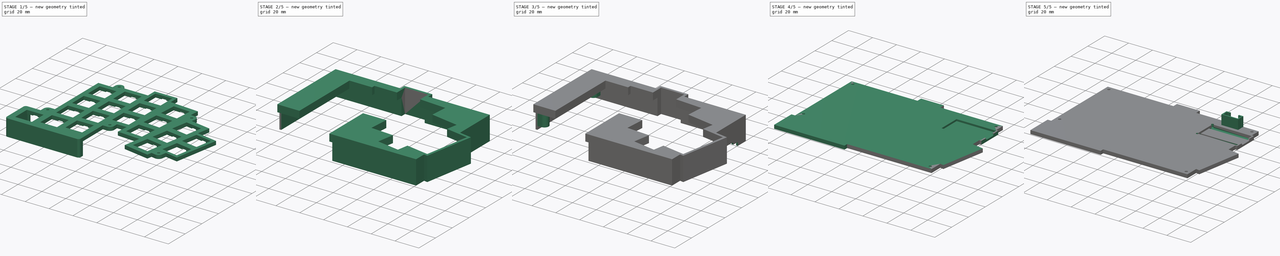
[diagram: build sequence overview — one tinted view per stage of 5, left to right]
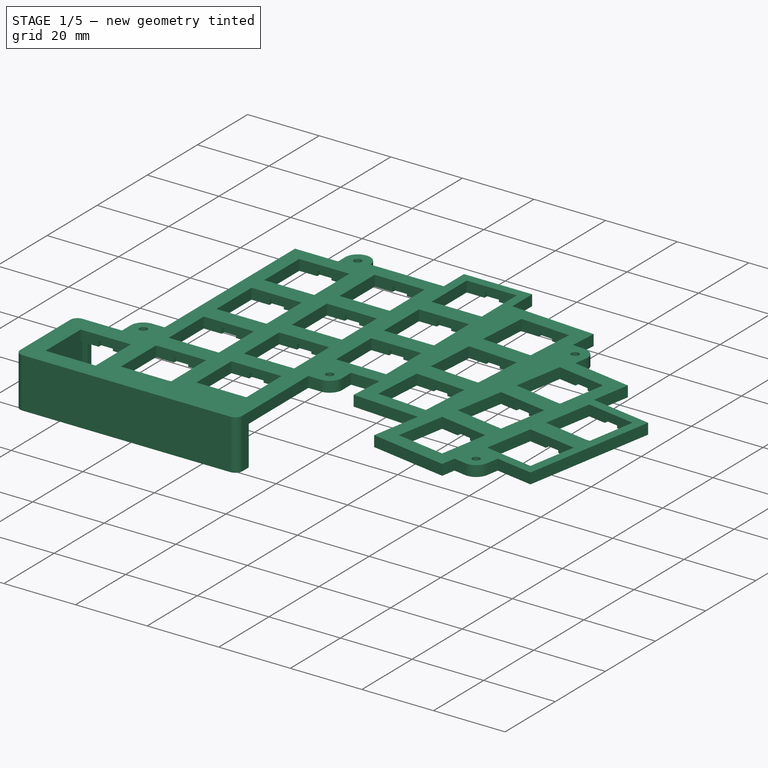
[diagram: stage 1 of 5 — iso view after this stage's code; geometry added in this stage tinted green]
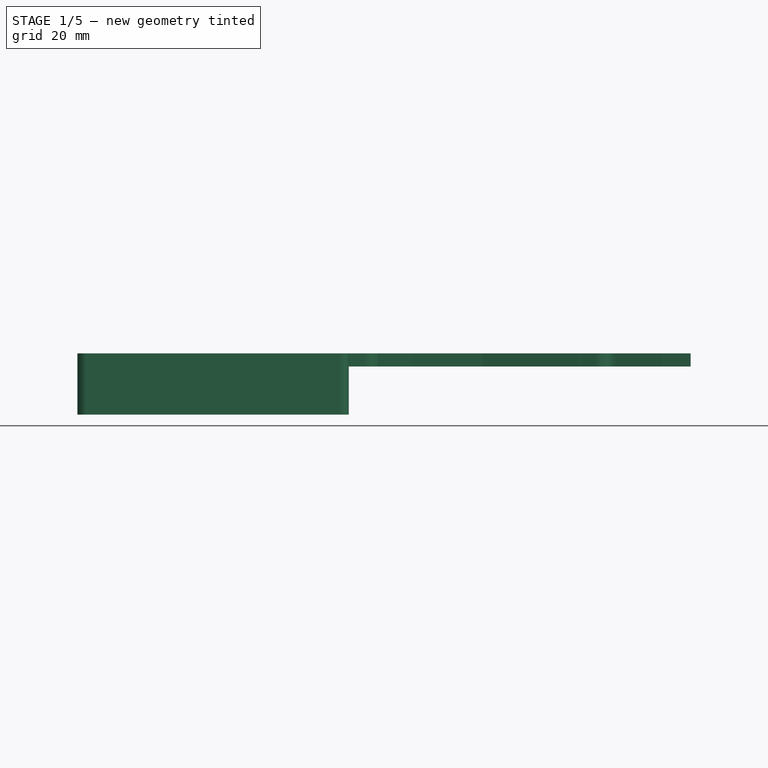
[diagram: stage 1 of 5 — front view after this stage's code; geometry added in this stage tinted green]
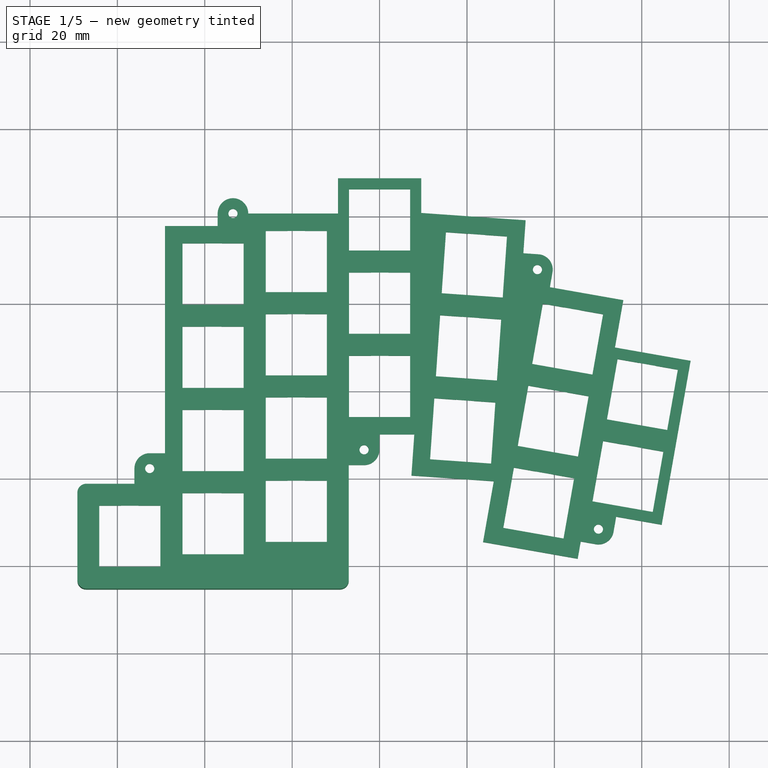
[diagram: stage 1 of 5 — top view after this stage's code; geometry added in this stage tinted green]
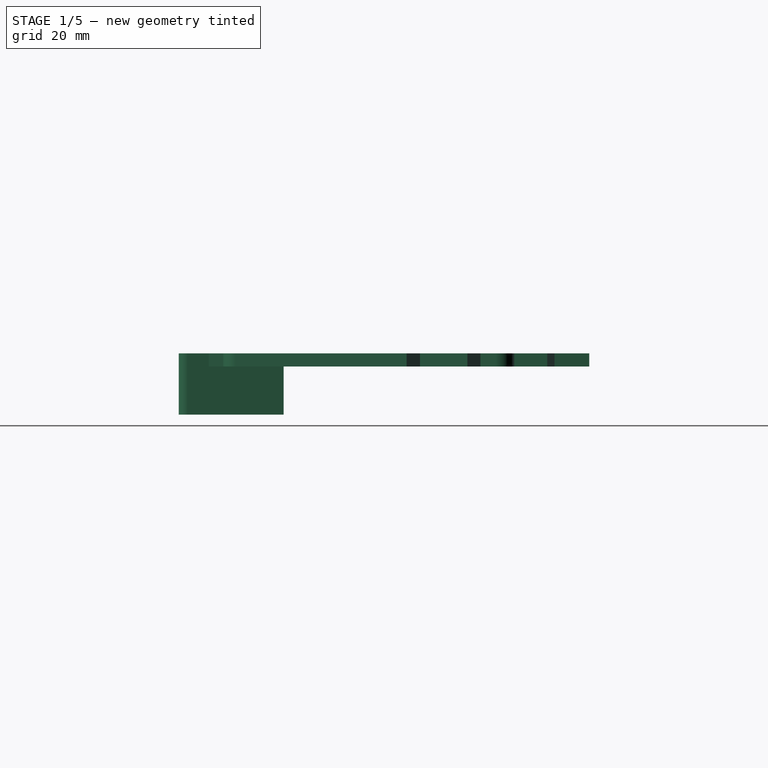
[diagram: stage 1 of 5 — right view after this stage's code; geometry added in this stage tinted green]
FCSTD DOCUMENT  (FreeCAD 1.0R39285 (Git))
Label: greg
License: All rights reserved
LicenseURL: https://en.wikipedia.org/wiki/All_rights_reserved
objects: Sketcher::SketchObject×24, PartDesign::Pocket×12, PartDesign::Pad×11, PartDesign::Body×3, PartDesign::SubShapeBinder×3, App::VarSet×2, PartDesign::Fillet×2, App::Part×1
note: 129 computed .brp shape members not serialized (recipe doc carries the construction recipe); baked Part::Feature solids carry a one-line shape summary decoded from their .brp

FEATURE [Sketcher::SketchObject] Sketch  label="Layout"
  ArcFitTolerance = 1e-06
  AttachmentSupport = -> [XY_Plane]
  FullyConstrained = true
  MakeInternals = false
  MapMode = 5
  expr: .Constraints.imStag = VarSet.imStag
  expr: .Constraints.mrAngle = VarSet.mrAngle
  expr: .Constraints.rpAngle = VarSet.rpAngle
  expr: .Constraints.spacingH = VarSet.spacingH - 14 mm
  expr: .Constraints.spacingV = VarSet.spacingV - 14 mm
  expr: Constraints[245] = <<LayoutVars>>.iiStag
  expr: Constraints[442] = <<LayoutVars>>.spacingV
  expr: Constraints[456] = <<LayoutVars>>.spacingH
  expr: Constraints[487] = <<LayoutVars>>.mrStag
  expr: Constraints[488] = <<LayoutVars>>.rpStag
  sketch-geometry (196):
    g0: LineSegment StartX=34.9243 StartY=-13.9067 StartZ=0 EndX=48.7116 EndY=-16.3378 EndZ=0
    g1: LineSegment StartX=48.7116 StartY=-16.3378 StartZ=0 EndX=51.1426 EndY=-2.55051 EndZ=0
    g2: LineSegment StartX=51.1426 StartY=-2.55051 StartZ=0 EndX=37.3553 EndY=-0.119437 EndZ=0
    g3: LineSegment StartX=37.3553 StartY=-0.119437 StartZ=0 EndX=34.9243 EndY=-13.9067 EndZ=0
    g4: GeomPoint [constr] X=43.0335 Y=-8.22863 Z=0
    g5: LineSegment StartX=52.0309 StartY=-26.595 StartZ=0 EndX=65.8182 EndY=-29.0261 EndZ=0
    g6: LineSegment StartX=65.8182 StartY=-29.0261 StartZ=0 EndX=68.2492 EndY=-15.2388 EndZ=0
    g7: LineSegment StartX=68.2492 StartY=-15.2388 StartZ=0 EndX=54.4619 EndY=-12.8077 EndZ=0
    g8: LineSegment StartX=54.4619 StartY=-12.8077 StartZ=0 EndX=52.0309 EndY=-26.595 EndZ=0
    g9: GeomPoint [constr] X=60.14 Y=-20.9169 Z=0
    g10: LineSegment StartX=-26.05 StartY=-16.525 StartZ=0 EndX=-12.05 EndY=-16.525 EndZ=0
    g11: LineSegment StartX=-12.05 StartY=-16.525 StartZ=0 EndX=-12.05 EndY=-2.525 EndZ=0
    g12: LineSegment StartX=-12.05 StartY=-2.525 StartZ=0 EndX=-26.05 EndY=-2.525 EndZ=0
    g13: LineSegment StartX=-26.05 StartY=-2.525 StartZ=0 EndX=-26.05 EndY=-16.525 EndZ=0
    g14: GeomPoint [constr] X=-19.05 Y=-9.525 Z=0
    g15: LineSegment StartX=-26.05 StartY=-35.575 StartZ=0 EndX=-12.05 EndY=-35.575 EndZ=0
    g16: LineSegment StartX=-12.05 StartY=-35.575 StartZ=0 EndX=-12.05 EndY=-21.575 EndZ=0
    g17: LineSegment StartX=-12.05 StartY=-21.575 StartZ=0 EndX=-26.05 EndY=-21.575 EndZ=0
    g18: LineSegment StartX=-26.05 StartY=-21.575 StartZ=0 EndX=-26.05 EndY=-35.575 EndZ=0
    g19: GeomPoint [constr] X=-19.05 Y=-28.575 Z=0
    g20: LineSegment StartX=48.7229 StartY=-45.3556 StartZ=0 EndX=62.5102 EndY=-47.7867 EndZ=0
    g21: LineSegment StartX=62.5102 StartY=-47.7867 StartZ=0 EndX=64.9412 EndY=-33.9994 EndZ=0
    g22: LineSegment StartX=64.9412 StartY=-33.9994 StartZ=0 EndX=51.1539 EndY=-31.5683 EndZ=0
    g23: LineSegment StartX=51.1539 StartY=-31.5683 StartZ=0 EndX=48.7229 EndY=-45.3556 EndZ=0
    g24: GeomPoint [constr] X=56.832 Y=-39.6775 Z=0
    g25: LineSegment StartX=-45.1 StartY=-0.3325 StartZ=0 EndX=-31.1 EndY=-0.3325 EndZ=0
    g26: LineSegment StartX=-31.1 StartY=-0.3325 StartZ=0 EndX=-31.1 EndY=13.6675 EndZ=0
    g27: LineSegment StartX=-31.1 StartY=13.6675 StartZ=0 EndX=-45.1 EndY=13.6675 EndZ=0
    g28: LineSegment StartX=-45.1 StartY=13.6675 StartZ=0 EndX=-45.1 EndY=-0.3325 EndZ=0
    g29: GeomPoint [constr] X=-38.1 Y=6.6675 Z=0
    g30: LineSegment StartX=-45.1 StartY=-19.3825 StartZ=0 EndX=-31.1 EndY=-19.3825 EndZ=0
    g31: LineSegment StartX=-31.1 StartY=-19.3825 StartZ=0 EndX=-31.1 EndY=-5.3825 EndZ=0
    g32: LineSegment StartX=-31.1 StartY=-5.3825 StartZ=0 EndX=-45.1 EndY=-5.3825 EndZ=0
    g33: LineSegment StartX=-45.1 StartY=-5.3825 StartZ=0 EndX=-45.1 EndY=-19.3825 EndZ=0
    g34: GeomPoint [constr] X=-38.1 Y=-12.3825 Z=0
    g35: LineSegment StartX=-45.1 StartY=-38.4325 StartZ=0 EndX=-31.1 EndY=-38.4325 EndZ=0
    g36: LineSegment StartX=-31.1 StartY=-38.4325 StartZ=0 EndX=-31.1 EndY=-24.4325 EndZ=0
    g37: LineSegment StartX=-31.1 StartY=-24.4325 StartZ=0 EndX=-45.1 EndY=-24.4325 EndZ=0
    g38: LineSegment StartX=-45.1 StartY=-24.4325 StartZ=0 EndX=-45.1 EndY=-38.4325 EndZ=0
    g39: GeomPoint [constr] X=-38.1 Y=-31.4325 Z=0
    g40: LineSegment StartX=-7 StartY=12.05 StartZ=0 EndX=7 EndY=12.05 EndZ=0
    g41: LineSegment StartX=7 StartY=12.05 StartZ=0 EndX=7 EndY=26.05 EndZ=0
    g42: LineSegment StartX=7 StartY=26.05 StartZ=0 EndX=-7 EndY=26.05 EndZ=0
    g43: LineSegment StartX=-7 StartY=26.05 StartZ=0 EndX=-7 EndY=12.05 EndZ=0
    g44: GeomPoint [constr] X=-2.2e-15 Y=19.05 Z=0
    g45: LineSegment StartX=-7 StartY=-7 StartZ=0 EndX=7 EndY=-7 EndZ=0
    g46: LineSegment StartX=7 StartY=-7 StartZ=0 EndX=7 EndY=7 EndZ=0
    g47: LineSegment StartX=7 StartY=7 StartZ=0 EndX=-7 EndY=7 EndZ=0
    g48: LineSegment StartX=-7 StartY=7 StartZ=0 EndX=-7 EndY=-7 EndZ=0
    g49: GeomPoint [constr] X=0 Y=0 Z=0
    g50: LineSegment StartX=-7 StartY=-26.05 StartZ=0 EndX=7 EndY=-26.05 EndZ=0
    g51: LineSegment StartX=7 StartY=-26.05 StartZ=0 EndX=7 EndY=-12.05 EndZ=0
    g52: LineSegment StartX=7 StartY=-12.05 StartZ=0 EndX=-7 EndY=-12.05 EndZ=0
    g53: LineSegment StartX=-7 StartY=-12.05 StartZ=0 EndX=-7 EndY=-26.05 EndZ=0
    g54: GeomPoint [constr] X=2.2e-15 Y=-19.05 Z=0
    g55: LineSegment StartX=-26.05 StartY=2.525 StartZ=0 EndX=-12.05 EndY=2.525 EndZ=0
    g56: LineSegment StartX=-12.05 StartY=2.525 StartZ=0 EndX=-12.05 EndY=16.525 EndZ=0
    g57: LineSegment StartX=-12.05 StartY=16.525 StartZ=0 EndX=-26.05 EndY=16.525 EndZ=0
    g58: LineSegment StartX=-26.05 StartY=16.525 StartZ=0 EndX=-26.05 EndY=2.525 EndZ=0
    g59: GeomPoint [constr] X=-19.05 Y=9.525 Z=0
    g60: LineSegment StartX=14.2133 StartY=2.27311 StartZ=0 EndX=28.1792 EndY=1.29652 EndZ=0
    g61: LineSegment StartX=28.1792 StartY=1.29652 StartZ=0 EndX=29.1558 EndY=15.2624 EndZ=0
    g62: LineSegment StartX=29.1558 StartY=15.2624 StartZ=0 EndX=15.1899 EndY=16.239 EndZ=0
    g63: LineSegment StartX=15.1899 StartY=16.239 StartZ=0 EndX=14.2133 EndY=2.27311 EndZ=0
    g64: GeomPoint [constr] X=21.6845 Y=8.76776 Z=0
    g65: LineSegment StartX=12.8844 StartY=-16.7305 StartZ=0 EndX=26.8503 EndY=-17.7071 EndZ=0
    g66: LineSegment StartX=26.8503 StartY=-17.7071 StartZ=0 EndX=27.8269 EndY=-3.74118 EndZ=0
    g67: LineSegment StartX=27.8269 StartY=-3.74118 StartZ=0 EndX=13.861 EndY=-2.76459 EndZ=0
    g68: LineSegment StartX=13.861 StartY=-2.76459 StartZ=0 EndX=12.8844 EndY=-16.7305 EndZ=0
    g69: GeomPoint [constr] X=20.3557 Y=-10.2358 Z=0
    g70: LineSegment StartX=11.5556 StartY=-35.7341 StartZ=0 EndX=25.5215 EndY=-36.7107 EndZ=0
    g71: LineSegment StartX=25.5215 StartY=-36.7107 StartZ=0 EndX=26.498 EndY=-22.7448 EndZ=0
    g72: LineSegment StartX=26.498 StartY=-22.7448 StartZ=0 EndX=12.5321 EndY=-21.7682 EndZ=0
    g73: LineSegment StartX=12.5321 StartY=-21.7682 StartZ=0 EndX=11.5556 EndY=-35.7341 EndZ=0
    g74: GeomPoint [constr] X=19.0268 Y=-29.2394 Z=0
    g75: LineSegment StartX=31.6163 StartY=-32.6673 StartZ=0 EndX=45.4036 EndY=-35.0984 EndZ=0
    g76: LineSegment StartX=45.4036 StartY=-35.0984 StartZ=0 EndX=47.8346 EndY=-21.3111 EndZ=0
    g77: LineSegment StartX=47.8346 StartY=-21.3111 StartZ=0 EndX=34.0473 EndY=-18.88 EndZ=0
    g78: LineSegment StartX=34.0473 StartY=-18.88 StartZ=0 EndX=31.6163 EndY=-32.6673 EndZ=0
    g79: GeomPoint [constr] X=39.7255 Y=-26.9892 Z=0
    g80: LineSegment StartX=28.3083 StartY=-51.4279 StartZ=0 EndX=42.0956 EndY=-53.859 EndZ=0
    g81: LineSegment StartX=42.0956 StartY=-53.859 StartZ=0 EndX=44.5267 EndY=-40.0717 EndZ=0
    g82: LineSegment StartX=44.5267 StartY=-40.0717 StartZ=0 EndX=30.7393 EndY=-37.6406 EndZ=0
    g83: LineSegment StartX=30.7393 StartY=-37.6406 StartZ=0 EndX=28.3083 EndY=-51.4279 EndZ=0
    g84: GeomPoint [constr] X=36.4175 Y=-45.7498 Z=0
    g85: LineSegment [constr] StartX=-7 StartY=-7 StartZ=0 EndX=-7 EndY=-12.05 EndZ=0
    g86: LineSegment [constr] StartX=-7 StartY=-7 StartZ=0 EndX=-12.05 EndY=-7 EndZ=0
    g87: LineSegment [constr] StartX=-26.05 StartY=-16.525 StartZ=0 EndX=-26.05 EndY=-21.575 EndZ=0
    g88: LineSegment [constr] StartX=-45.1 StartY=-19.3825 StartZ=0 EndX=-45.1 EndY=-24.4325 EndZ=0
    g89: LineSegment [constr] StartX=-26.05 StartY=-16.525 StartZ=0 EndX=-31.1 EndY=-16.525 EndZ=0
    g90: LineSegment [constr] StartX=12.5321 StartY=-21.7682 StartZ=0 EndX=12.8844 EndY=-16.7305 EndZ=0
    g91: LineSegment [constr] StartX=30.7393 StartY=-37.6406 StartZ=0 EndX=31.6163 EndY=-32.6673 EndZ=0
    g92: LineSegment [constr] StartX=51.1539 StartY=-31.5683 StartZ=0 EndX=52.0309 EndY=-26.595 EndZ=0
    g93: LineSegment StartX=-45.1 StartY=-57.4825 StartZ=0 EndX=-31.1 EndY=-57.4825 EndZ=0
    g94: LineSegment StartX=-31.1 StartY=-57.4825 StartZ=0 EndX=-31.1 EndY=-43.4825 EndZ=0
    g95: LineSegment StartX=-31.1 StartY=-43.4825 StartZ=0 EndX=-45.1 EndY=-43.4825 EndZ=0
    g96: LineSegment StartX=-45.1 StartY=-43.4825 StartZ=0 EndX=-45.1 EndY=-57.4825 EndZ=0
    g97: GeomPoint [constr] X=-38.1 Y=-50.4825 Z=0
    g98: LineSegment StartX=-26.05 StartY=-54.625 StartZ=0 EndX=-12.05 EndY=-54.625 EndZ=0
    g99: LineSegment StartX=-12.05 StartY=-54.625 StartZ=0 EndX=-12.05 EndY=-40.625 EndZ=0
    g100: LineSegment StartX=-12.05 StartY=-40.625 StartZ=0 EndX=-26.05 EndY=-40.625 EndZ=0
    g101: LineSegment StartX=-26.05 StartY=-40.625 StartZ=0 EndX=-26.05 EndY=-54.625 EndZ=0
    g102: GeomPoint [constr] X=-19.05 Y=-47.625 Z=0
    g103: LineSegment StartX=-64.15 StartY=-60.34 StartZ=0 EndX=-50.15 EndY=-60.34 EndZ=0
    g104: LineSegment StartX=-50.15 StartY=-60.34 StartZ=0 EndX=-50.15 EndY=-46.34 EndZ=0
    g105: LineSegment StartX=-50.15 StartY=-46.34 StartZ=0 EndX=-64.15 EndY=-46.34 EndZ=0
    g106: LineSegment StartX=-64.15 StartY=-46.34 StartZ=0 EndX=-64.15 EndY=-60.34 EndZ=0
    g107: GeomPoint [constr] X=-57.15 Y=-53.34 Z=0
    g108: LineSegment [constr] StartX=-19.05 StartY=-35.575 StartZ=0 EndX=-19.05 EndY=-40.625 EndZ=0
    g109: LineSegment [constr] StartX=-31.1 StartY=-40.625 StartZ=0 EndX=-31.1 EndY=-43.4825 EndZ=0
    g110: LineSegment [constr] StartX=-45.1 StartY=-43.4825 StartZ=0 EndX=-50.15 EndY=-43.4825 EndZ=0
    g111: LineSegment [constr] StartX=-50.15 StartY=-43.4825 StartZ=0 EndX=-50.15 EndY=-46.34 EndZ=0
    g112: LineSegment [constr] StartX=-31.1 StartY=13.6675 StartZ=0 EndX=-31.1 EndY=16.525 EndZ=0
    g113: LineSegment StartX=-69.15 StartY=-41.34 StartZ=0 EndX=-69.15 EndY=-65.34 EndZ=0
    g114: LineSegment StartX=-69.15 StartY=-65.34 StartZ=0 EndX=-7.05 EndY=-65.34 EndZ=0
    g115: LineSegment StartX=-7.05 StartY=-65.34 StartZ=0 EndX=-7.05 EndY=-37.05 EndZ=0
    g116: LineSegment StartX=-0.05 StartY=-30.05 StartZ=0 EndX=7.94326 EndY=-30.05 EndZ=0
    g117: LineSegment StartX=7.94326 StartY=-30.05 StartZ=0 EndX=7.28627 EndY=-39.4453 EndZ=0
    g118: LineSegment StartX=7.28627 StartY=-39.4453 StartZ=0 EndX=26.1271 EndY=-40.7628 EndZ=0
    g119: LineSegment StartX=26.1271 StartY=-40.7628 StartZ=0 EndX=23.6744 EndY=-54.6726 EndZ=0
    g120: LineSegment StartX=23.6744 StartY=-54.6726 StartZ=0 EndX=45.3402 EndY=-58.4928 EndZ=0
    g121: LineSegment StartX=45.3402 StartY=-58.4928 StartZ=0 EndX=46.0348 EndY=-54.5536 EndZ=0
    g122: LineSegment StartX=54.144 StartY=-48.8755 StartZ=0 EndX=64.5583 EndY=-50.7118 EndZ=0
    g123: LineSegment StartX=64.5583 StartY=-50.7118 StartZ=0 EndX=71.1743 EndY=-13.1906 EndZ=0
    g124: LineSegment StartX=71.1743 StartY=-13.1906 StartZ=0 EndX=53.8663 EndY=-10.1388 EndZ=0
    g125: LineSegment StartX=53.8663 StartY=-10.1388 StartZ=0 EndX=55.7765 EndY=0.694126 EndZ=0
    g126: LineSegment StartX=55.7765 StartY=0.694126 StartZ=0 EndX=38.968 EndY=3.65792 EndZ=0
    g127: LineSegment StartX=32.8974 StartY=11.4279 StartZ=0 EndX=33.425 EndY=18.9736 EndZ=0
    g128: LineSegment StartX=33.425 StartY=18.9736 StartZ=0 EndX=9.525 EndY=20.6449 EndZ=0
    g129: LineSegment StartX=9.525 StartY=20.6449 StartZ=0 EndX=9.525 EndY=28.575 EndZ=0
    g130: LineSegment StartX=9.525 StartY=28.575 StartZ=0 EndX=-9.525 EndY=28.575 EndZ=0
    g131: LineSegment StartX=-9.525 StartY=28.575 StartZ=0 EndX=-9.525 EndY=20.525 EndZ=0
    g132: LineSegment StartX=-9.525 StartY=20.525 StartZ=0 EndX=-30.05 EndY=20.525 EndZ=0
    g133: LineSegment StartX=-37.05 StartY=17.6675 StartZ=0 EndX=-49.1 EndY=17.6675 EndZ=0
    g134: LineSegment [constr] StartX=-45.1 StartY=13.6675 StartZ=0 EndX=-45.1 EndY=17.6675 EndZ=0
    g135: LineSegment [constr] StartX=29.1558 StartY=15.2624 StartZ=0 EndX=29.4348 EndY=19.2527 EndZ=0
    g136: LineSegment [constr] StartX=29.1558 StartY=15.2624 StartZ=0 EndX=33.146 EndY=14.9834 EndZ=0
    g137: LineSegment [constr] StartX=51.8372 StartY=1.38872 StartZ=0 EndX=51.1426 EndY=-2.55051 EndZ=0
    g138: LineSegment [constr] StartX=55.0819 StartY=-3.2451 StartZ=0 EndX=51.1426 EndY=-2.55051 EndZ=0
    g139: LineSegment [constr] StartX=42.0956 StartY=-53.859 StartZ=0 EndX=46.0348 EndY=-54.5536 EndZ=0
    g140: LineSegment [constr] StartX=42.0956 StartY=-53.859 StartZ=0 EndX=41.401 EndY=-57.7982 EndZ=0
    g141: LineSegment [constr] StartX=28.3083 StartY=-51.4279 StartZ=0 EndX=24.369 EndY=-50.7333 EndZ=0
    g142: LineSegment [constr] StartX=11.5556 StartY=-35.7341 StartZ=0 EndX=11.2765 EndY=-39.7243 EndZ=0
    g143: LineSegment [constr] StartX=11.5556 StartY=-35.7341 StartZ=0 EndX=7.5653 EndY=-35.4551 EndZ=0
    g144: LineSegment [constr] StartX=-7 StartY=-26.05 StartZ=0 EndX=-7 EndY=-30.05 EndZ=0
    g145: LineSegment [constr] StartX=-12.05 StartY=-54.625 StartZ=0 EndX=-7.05 EndY=-54.625 EndZ=0
    g146: LineSegment [constr] StartX=-64.15 StartY=-60.34 StartZ=0 EndX=-64.15 EndY=-65.34 EndZ=0
    g147: LineSegment [constr] StartX=-64.15 StartY=-60.34 StartZ=0 EndX=-69.15 EndY=-60.34 EndZ=0
    g148: LineSegment [constr] StartX=-64.15 StartY=-46.34 StartZ=0 EndX=-64.15 EndY=-41.34 EndZ=0
    g149: LineSegment [constr] StartX=-45.1 StartY=-38.4325 StartZ=0 EndX=-49.1 EndY=-38.4325 EndZ=0
    g150: Circle CenterX=-52.6 CenterY=-37.84 CenterZ=0 NormalX=0 NormalY=0 NormalZ=1 AngleXU=0 Radius=1.05
    g151: Circle CenterX=50.0894 CenterY=-51.7145 CenterZ=0 NormalX=0 NormalY=0 NormalZ=1 AngleXU=0 Radius=1.05
    g152: Circle CenterX=36.1256 CenterY=7.69363 CenterZ=0 NormalX=0 NormalY=0 NormalZ=1 AngleXU=0 Radius=1.05
    g153: LineSegment StartX=-49.1 StartY=17.6675 StartZ=0 EndX=-49.1 EndY=-34.34 EndZ=0
    g154: LineSegment StartX=-69.15 StartY=-41.34 StartZ=0 EndX=-56.1 EndY=-41.34 EndZ=0
    g155: LineSegment [constr] StartX=-30.05 StartY=20.525 StartZ=0 EndX=-30.05 EndY=16.525 EndZ=0
    g156: LineSegment [constr] StartX=-26.05 StartY=16.525 StartZ=0 EndX=-30.05 EndY=16.525 EndZ=0
    g157: LineSegment [constr] StartX=49.4816 StartY=-55.1614 StartZ=0 EndX=50.6972 EndY=-48.2677 EndZ=0
    g158: LineSegment [constr] StartX=53.5362 StartY=-52.3223 StartZ=0 EndX=46.6426 EndY=-51.1068 EndZ=0
    g159: ArcOfCircle CenterX=50.0894 CenterY=-51.7145 CenterZ=0 NormalX=0 NormalY=0 NormalZ=1 AngleXU=0 Radius=3.5 StartAngle=4.53786 EndAngle=6.10865
    g160: LineSegment StartX=53.5362 StartY=-52.3223 StartZ=0 EndX=54.144 EndY=-48.8755 EndZ=0
    g161: LineSegment StartX=49.4816 StartY=-55.1614 StartZ=0 EndX=46.0348 EndY=-54.5536 EndZ=0
    g162: ArcOfCircle CenterX=-52.6 CenterY=-37.84 CenterZ=0 NormalX=0 NormalY=0 NormalZ=1 AngleXU=0 Radius=3.5 StartAngle=1.5708 EndAngle=3.14159
    g163: LineSegment [constr] StartX=-56.1 StartY=-37.84 StartZ=0 EndX=-49.1 EndY=-37.84 EndZ=0
    g164: LineSegment [constr] StartX=-52.6 StartY=-34.34 StartZ=0 EndX=-52.6 EndY=-41.34 EndZ=0
    g165: LineSegment StartX=-52.6 StartY=-34.34 StartZ=0 EndX=-49.1 EndY=-34.34 EndZ=0
    g166: LineSegment StartX=-56.1 StartY=-37.84 StartZ=0 EndX=-56.1 EndY=-41.34 EndZ=0
    g167: ArcOfCircle CenterX=36.1256 CenterY=7.69363 CenterZ=0 NormalX=0 NormalY=0 NormalZ=1 AngleXU=0 Radius=3.5 StartAngle=6.10865 EndAngle=7.78417
    g168: LineSegment [constr] StartX=36.3697 StartY=11.1851 StartZ=0 EndX=35.8814 EndY=4.20216 EndZ=0
    g169: LineSegment [constr] StartX=39.5724 StartY=7.08586 StartZ=0 EndX=32.6788 EndY=8.3014 EndZ=0
    g170: LineSegment StartX=38.968 StartY=3.65792 StartZ=0 EndX=39.5724 EndY=7.08586 EndZ=0
    g171: LineSegment StartX=32.8974 StartY=11.4279 StartZ=0 EndX=36.3697 EndY=11.1851 EndZ=0
    g172: Circle CenterX=-33.55 CenterY=20.525 CenterZ=0 NormalX=0 NormalY=0 NormalZ=1 AngleXU=0 Radius=1.05
    g173: ArcOfCircle CenterX=-33.55 CenterY=20.525 CenterZ=0 NormalX=0 NormalY=0 NormalZ=1 AngleXU=0 Radius=3.5 StartAngle=4e-16 EndAngle=3.14159
    g174: LineSegment [constr] StartX=-30.05 StartY=20.525 StartZ=0 EndX=-37.05 EndY=20.525 EndZ=0
    g175: LineSegment [constr] StartX=-33.55 StartY=24.025 StartZ=0 EndX=-33.55 EndY=17.025 EndZ=0
    g176: LineSegment StartX=-37.05 StartY=20.525 StartZ=0 EndX=-37.05 EndY=17.6675 EndZ=0
    g177: Circle CenterX=-3.55 CenterY=-33.55 CenterZ=0 NormalX=0 NormalY=0 NormalZ=1 AngleXU=0 Radius=1.05
    g178: LineSegment [constr] StartX=-3.55 StartY=-30.05 StartZ=0 EndX=-3.55 EndY=-37.05 EndZ=0
    g179: LineSegment [constr] StartX=-7.05 StartY=-33.55 StartZ=0 EndX=-0.05 EndY=-33.55 EndZ=0
    g180: ArcOfCircle CenterX=-3.55 CenterY=-33.55 CenterZ=0 NormalX=0 NormalY=0 NormalZ=1 AngleXU=0 Radius=3.5 StartAngle=4.71239 EndAngle=6.28319
    g181: LineSegment StartX=-3.55 StartY=-37.05 StartZ=0 EndX=-7.05 EndY=-37.05 EndZ=0
    g182: LineSegment StartX=-0.05 StartY=-33.55 StartZ=0 EndX=-0.05 EndY=-30.05 EndZ=0
    g183: LineSegment [constr] StartX=9.525 StartY=-28.575 StartZ=0 EndX=9.525 EndY=-9.525 EndZ=0
    g184: LineSegment [constr] StartX=9.525 StartY=-28.575 StartZ=0 EndX=28.5286 EndY=-29.9039 EndZ=0
    g185: LineSegment [constr] StartX=8.86057 StartY=-38.0768 StartZ=0 EndX=10.1894 EndY=-19.0732 EndZ=0
    g186: LineSegment [constr] StartX=27.8642 StartY=-39.4057 StartZ=0 EndX=29.193 EndY=-20.4021 EndZ=0
    g187: LineSegment [constr] StartX=25.3832 StartY=-53.4761 StartZ=0 EndX=28.6912 EndY=-34.7155 EndZ=0
    g188: LineSegment [constr] StartX=-9.525 StartY=-19.05 StartZ=0 EndX=9.525 EndY=-19.05 EndZ=0
    g189: LineSegment [constr] StartX=45.7978 StartY=-47.4038 StartZ=0 EndX=27.0372 EndY=-44.0958 EndZ=0
    g190: LineSegment [constr] StartX=-9.525 StartY=19.05 StartZ=0 EndX=9.525 EndY=19.05 EndZ=0
    g191: LineSegment [constr] StartX=50.7597 StartY=-19.2629 StartZ=0 EndX=69.5203 EndY=-22.5709 EndZ=0
    g192: LineSegment [constr] StartX=58.486 StartY=-30.2972 StartZ=0 EndX=61.794 EndY=-11.5366 EndZ=0
    g193: LineSegment [constr] StartX=55.178 StartY=-49.0578 StartZ=0 EndX=58.486 EndY=-30.2972 EndZ=0
    g194: LineSegment [constr] StartX=51.5924 StartY=-29.0817 StartZ=0 EndX=46.6191 EndY=-28.2048 EndZ=0
    g195: LineSegment [constr] StartX=-2.2e-15 StartY=9.525 StartZ=0 EndX=-2.2e-15 EndY=28.575 EndZ=0
  constraints (490):
    c: Coincident(g0,g1)
    c: Coincident(g1,g2)
    c: Coincident(g2,g3)
    c: Coincident(g3,g0)
    c: Symmetric(g2,g0,g4)
    c: Equal(g1,g2)
    c: Symmetric(g0,g2,g4)
    c: Perpendicular(g0,g3)
    c: Coincident(g5,g6)
    c: Coincident(g7,g8)
    c: Coincident(g8,g5)
    c: Symmetric(g7,g5,g9)
    c: Equal(g6,g7)
    c: Symmetric(g5,g7,g9)
    c: Perpendicular(g5,g8)
    c: Coincident(g10,g11)
    c: Coincident(g11,g12)
    c: Coincident(g12,g13)
    c: Coincident(g13,g10)
    c: Symmetric(g12,g10,g14)
    c: Equal(g11,g12)
    c: Symmetric(g10,g12,g14)
    c: Perpendicular(g10,g13)
    c: Coincident(g15,g16)
    c: Coincident(g16,g17)
    c: Coincident(g17,g18)
    c: Coincident(g18,g15)
    c: Symmetric(g17,g15,g19)
    c: Equal(g16,g17)
    c: Symmetric(g15,g17,g19)
    c: Perpendicular(g15,g18)
    c: Coincident(g20,g21)
    c: Coincident(g21,g22)
    c: Coincident(g22,g23)
    c: Coincident(g23,g20)
    c: Symmetric(g22,g20,g24)
    c: Equal(g21,g22)
    c: Symmetric(g20,g22,g24)
    c: Perpendicular(g20,g23)
    c: Coincident(g25,g26)
    c: Coincident(g26,g27)
    c: Coincident(g27,g28)
    c: Coincident(g28,g25)
    c: Symmetric(g27,g25,g29)
    c: Equal(g26,g27)
    c: Symmetric(g25,g27,g29)
    c: Perpendicular(g25,g28)
    c: Coincident(g30,g31)
    c: Coincident(g31,g32)
    c: Coincident(g32,g33)
    c: Coincident(g33,g30)
    c: Symmetric(g32,g30,g34)
    c: Equal(g31,g32)
    c: Symmetric(g30,g32,g34)
    c: Perpendicular(g30,g33)
    c: Coincident(g35,g36)
    c: Coincident(g36,g37)
    c: Coincident(g37,g38)
    c: Coincident(g38,g35)
    c: Symmetric(g37,g35,g39)
    c: Equal(g36,g37)
    c: Symmetric(g35,g37,g39)
    c: Perpendicular(g35,g38)
    c: Coincident(g40,g41)
    c: Coincident(g41,g42)
    c: Coincident(g42,g43)
    c: Coincident(g43,g40)
    c: Symmetric(g42,g40,g44)
    c: Equal(g41,g42)
    c: Symmetric(g40,g42,g44)
    c: Perpendicular(g40,g43)
    c: Coincident(g45,g46)
    c: Coincident(g46,g47)
    c: Coincident(g47,g48)
    c: Coincident(g48,g45)
    c: Symmetric(g47,g45,g49)
    c: Equal(g46,g47)
    c: Symmetric(g45,g47,g49)
    c: Perpendicular(g45,g48)
    c: Coincident(g50,g51)
    c: Coincident(g51,g52)
    c: Coincident(g52,g53)
    c: Coincident(g53,g50)
    c: Symmetric(g52,g50,g54)
    c: Equal(g51,g52)
    c: Symmetric(g50,g52,g54)
    c: Perpendicular(g50,g53)
    c: Coincident(g55,g56)
    c: Coincident(g56,g57)
    c: Coincident(g57,g58)
    c: Coincident(g58,g55)
    c: Symmetric(g57,g55,g59)
    c: Equal(g56,g57)
    c: Symmetric(g55,g57,g59)
    c: Perpendicular(g55,g58)
    c: Coincident(g60,g61)
    c: Coincident(g61,g62)
    c: Coincident(g62,g63)
    c: Coincident(g63,g60)
    c: Symmetric(g62,g60,g64)
    c: Equal(g61,g62)
    c: Symmetric(g60,g62,g64)
    c: Perpendicular(g60,g63)
    c: Coincident(g65,g66)
    c: Coincident(g66,g67)
    c: Coincident(g67,g68)
    c: Coincident(g68,g65)
    c: Symmetric(g67,g65,g69)
    c: Equal(g66,g67)
    c: Symmetric(g65,g67,g69)
    c: Perpendicular(g65,g68)
    c: Coincident(g70,g71)
    c: Coincident(g71,g72)
    c: Coincident(g72,g73)
    c: Coincident(g73,g70)
    c: Symmetric(g72,g70,g74)
    c: Equal(g71,g72)
    c: Symmetric(g70,g72,g74)
    c: Perpendicular(g70,g73)
    c: Coincident(g75,g76)
    c: Coincident(g76,g77)
    c: Coincident(g77,g78)
    c: Coincident(g78,g75)
    c: Symmetric(g77,g75,g79)
    c: Equal(g76,g77)
    c: Symmetric(g75,g77,g79)
    c: Perpendicular(g75,g78)
    c: Coincident(g80,g81)
    c: Coincident(g81,g82)
    c: Coincident(g82,g83)
    c: Coincident(g83,g80)
    c: Symmetric(g82,g80,g84)
    c: Equal(g81,g82)
    c: Symmetric(g80,g82,g84)
    c: Perpendicular(g80,g83)
    c: Coincident(g49,g-1)
    c: Equal(g27,g57)
    c: Equal(g57,g42)
    c: Equal(g42,g62)
    c: Equal(g62,g2)
    c: Equal(g2,g32)
    c: Equal(g32,g12)
    c: Equal(g12,g47)
    c: Equal(g47,g67)
    c: Equal(g67,g77)
    c: Equal(g77,g7)
    c: Equal(g7,g22)
    c: Distance(g47,g47) = 14  'hole'
    c: Tangent(g48,g43)
    c: Tangent(g53,g48)
    c: Tangent(g68,g73)
    c: Tangent(g83,g78)
    c: Tangent(g3,g78)
    c: Tangent(g63,g68)
    c: Tangent(g8,g23)
    c: Tangent(g13,g18)
    c: Tangent(g13,g58)
    c: Tangent(g28,g33)
    c: Tangent(g38,g33)
    c: Symmetric(g19,g59,g14)
    c: Symmetric(g54,g44,g49)
    c: Symmetric(g74,g64,g69)
    c: Symmetric(g29,g39,g34)
    c: Symmetric(g84,g4,g79)
    c: Vertical(g48)
    c: Parallel(g13,g48)
    c: Parallel(g78,g23)
    c: Distance(g57,g42) = 9.525  'imStag'
    c: Angle(g63,g41) = 0.0698132  'mrAngle'
    c: Angle(g3,g61) = 0.10472  'rpAngle'
    c: Coincident(g85,g45)
    c: Coincident(g85,g52)
    c: Coincident(g86,g45)
    c: PointOnObject(g86,g11)
    c: Horizontal(g86)
    c: Coincident(g87,g10)
    c: Coincident(g87,g17)
    c: Coincident(g88,g30)
    c: Coincident(g88,g37)
    c: Coincident(g89,g10)
    c: PointOnObject(g89,g31)
    c: Horizontal(g89)
    c: Coincident(g90,g72)
    c: Coincident(g90,g65)
    c: Coincident(g91,g82)
    c: Coincident(g91,g75)
    c: Equal(g91,g90)
    c: Equal(g90,g85)
    c: Equal(g85,g87)
    c: Equal(g87,g88)
    c: Equal(g89,g86)
    c: DistanceY(g85,g85) = 5.05  'spacingV'
    c: DistanceX(g86,g86) = 5.05  'spacingH'
    c: Coincident(g92,g22)
    c: Coincident(g92,g5)
    c: Equal(g92,g91)
    c: Coincident(g93,g94)
    c: Coincident(g94,g95)
    c: Coincident(g95,g96)
    c: Coincident(g96,g93)
    c: Symmetric(g95,g93,g97)
    c: Coincident(g98,g99)
    c: Coincident(g99,g100)
    c: Coincident(g100,g101)
    c: Coincident(g101,g98)
    c: Horizontal(g98)
    c: Horizontal(g100)
    c: Vertical(g99)
    c: Vertical(g101)
    c: Symmetric(g100,g98,g102)
    c: Equal(g100,g95)
    c: Equal(g95,g94)
    c: Equal(g94,g101)
    c: Equal(g101,g35)
    c: Coincident(g103,g104)
    c: Coincident(g104,g105)
    c: Coincident(g105,g106)
    c: Coincident(g106,g103)
    c: Symmetric(g105,g103,g107)
    c: Symmetric(g105,g103,g107)
    c: Equal(g104,g96)
    c: Equal(g96,g105)
    c: Perpendicular(g106,g103)
    c: Coincident(g6,g7)
    c: Symmetric(g15,g15,g108)
    c: Symmetric(g100,g100,g108)
    c: Vertical(g108)
    c: Equal(g108,g87)
    c: Symmetric(g93,g95,g97)
    c: Perpendicular(g93,g94)
    c: Vertical(g26)
    c: Coincident(g109,g94)
    c: Vertical(g109)
    c: Coincident(g110,g95)
    c: Horizontal(g110)
    c: Coincident(g111,g110)
    c: Coincident(g111,g104)
    c: Vertical(g111)
    c: PointOnObject(g109,g100)
    c: Equal(g110,g89)
    c: Equal(g111,g109)
    c: Vertical(g104)
    c: Coincident(g112,g26)
    c: Vertical(g112)
    c: PointOnObject(g112,g57)
    c: DistanceY(g112,g112) = 2.8575
    c: Equal(g109,g112)
    c: Tangent(g96,g38)
    c: Vertical(g113)
    c: Coincident(g115,g114)
    c: Vertical(g115)
    c: Horizontal(g116)
    c: Coincident(g117,g116)
    c: Coincident(g118,g117)
    c: Coincident(g119,g118)
    c: Coincident(g120,g119)
    c: Coincident(g121,g120)
    c: Coincident(g123,g122)
    c: Coincident(g124,g123)
    c: Coincident(g129,g128)
    c: Horizontal(g130)
    c: Coincident(g131,g130)
    c: Coincident(g132,g131)
    c: Horizontal(g132)
    c: Horizontal(g133)
    c: Vertical(g131)
    c: Vertical(g129)
    c: Coincident(g130,g129)
    c: Parallel(g62,g128)
    c: Parallel(g127,g61)
    c: Parallel(g126,g2)
    c: Parallel(g125,g1)
    c: Coincident(g126,g125)
    c: Coincident(g127,g128)
    c: Coincident(g125,g124)
    c: Parallel(g124,g7)
    c: Parallel(g123,g6)
    c: Parallel(g122,g20)
    c: Parallel(g121,g81)
    c: Parallel(g120,g80)
    c: Parallel(g83,g119)
    c: Parallel(g118,g70)
    c: Parallel(g117,g73)
    c: Coincident(g113,g114)
    c: Horizontal(g114)
    c: Coincident(g134,g27)
    c: PointOnObject(g134,g133)
    c: Vertical(g134)
    c: Coincident(g135,g61)
    c: PointOnObject(g135,g128)
    c: Coincident(g136,g61)
    c: PointOnObject(g136,g127)
    c: Perpendicular(g128,g135)
    c: Perpendicular(g127,g136)
    c: PointOnObject(g137,g126)
    c: Coincident(g137,g1)
    c: PointOnObject(g138,g125)
    c: Coincident(g138,g1)
    c: Perpendicular(g125,g138)
    c: Perpendicular(g126,g137)
    c: Coincident(g139,g80)
    c: PointOnObject(g139,g121)
    c: Coincident(g140,g80)
    c: PointOnObject(g140,g120)
    c: Coincident(g141,g80)
    c: PointOnObject(g141,g119)
    c: Coincident(g143,g142)
    c: PointOnObject(g143,g117)
    c: PointOnObject(g142,g118)
    c: Coincident(g144,g50)
    c: PointOnObject(g144,g116)
    c: Vertical(g144)
    c: Coincident(g145,g98)
    c: PointOnObject(g145,g115)
    c: Horizontal(g145)
    c: Coincident(g146,g103)
    c: PointOnObject(g146,g114)
    c: Vertical(g146)
    c: Coincident(g147,g103)
    c: PointOnObject(g147,g113)
    c: Coincident(g148,g105)
    c: Vertical(g148)
    c: Coincident(g149,g35)
    c: Horizontal(g147)
    c: Equal(g149,g134)
    c: Equal(g135,g136)
    c: Equal(g136,g137)
    c: Equal(g137,g138)
    c: Equal(g139,g140)
    c: Equal(g140,g141)
    c: Equal(g141,g142)
    c: Equal(g142,g143)
    c: Equal(g143,g144)
    c: Horizontal(g149)
    c: Coincident(g142,g70)
    c: Perpendicular(g118,g142)
    c: Perpendicular(g117,g143)
    c: Perpendicular(g119,g141)
    c: Perpendicular(g120,g140)
    c: Perpendicular(g121,g139)
    c: Distance(g134,g134) = 4
    c: Equal(g152,g151)
    c: Equal(g151,g150)
    c: Diameter(g150) = 2.1
    c: Coincident(g153,g133)
    c: Vertical(g153)
    c: Coincident(g154,g113)
    c: Horizontal(g154)
    c: PointOnObject(g148,g154)
    c: PointOnObject(g149,g153)
    c: Coincident(g155,g132)
    c: Vertical(g155)
    c: Horizontal(g156)
    c: Coincident(g156,g57)
    c: Symmetric(g158,g158,g151)
    c: Symmetric(g157,g157,g151)
    c: Perpendicular(g158,g157)
    c: PointOnObject(g157,g122)
    c: Parallel(g158,g122)
    c: Coincident(g159,g151)
    c: Coincident(g159,g157)
    c: Coincident(g159,g158)
    c: PointOnObject(g158,g121)
    c: Coincident(g160,g158)
    c: Coincident(g160,g122)
    c: Coincident(g161,g157)
    c: Coincident(g161,g121)
    c: Perpendicular(g121,g161)
    c: Perpendicular(g122,g160)
    c: Coincident(g162,g150)
    c: Coincident(g163,g162)
    c: Horizontal(g163)
    c: Coincident(g164,g162)
    c: Vertical(g164)
    c: Symmetric(g164,g164,g150)
    c: Symmetric(g163,g163,g150)
    c: Equal(g164,g157)
    c: Distance(g163,g163) = 7
    c: Coincident(g165,g162)
    c: Coincident(g165,g153)
    c: Coincident(g166,g162)
    c: Coincident(g166,g154)
    c: Vertical(g166)
    c: Horizontal(g165)
    c: PointOnObject(g163,g153)
    c: PointOnObject(g164,g154)
    c: Coincident(g167,g152)
    c: Coincident(g168,g167)
    c: Coincident(g169,g167)
    c: Symmetric(g169,g169,g152)
    c: Symmetric(g168,g168,g152)
    c: PointOnObject(g168,g126)
    c: PointOnObject(g169,g127)
    c: Equal(g169,g158)
    c: Coincident(g170,g126)
    c: Tangent(g170,g167) = -1.5708
    c: Coincident(g171,g127)
    c: Tangent(g171,g167) = 1.5708
    c: Perpendicular(g126,g170)
    c: Perpendicular(g127,g171)
    c: Coincident(g155,g156)
    c: Equal(g155,g156)
    c: Equal(g156,g134)
    c: Coincident(g173,g172)
    c: Coincident(g173,g132)
    c: Coincident(g174,g132)
    c: Coincident(g174,g173)
    c: PointOnObject(g175,g173)
    c: Symmetric(g175,g175,g172)
    c: Coincident(g176,g133)
    c: Vertical(g176)
    c: Vertical(g175)
    c: Equal(g172,g152)
    c: Horizontal(g174)
    c: Equal(g139,g138)
    c: Equal(g135,g155)
    c: Tangent(g176,g173) = -1.5708
    c: Equal(g145,g148)
    c: Distance(g148,g148) = 5
    c: Equal(g147,g146)
    c: Equal(g146,g148)
    c: Equal(g174,g163)
    c: Vertical(g178)
    c: Horizontal(g179)
    c: Symmetric(g179,g179,g177)
    c: Symmetric(g178,g178,g177)
    c: Coincident(g180,g177)
    c: Coincident(g180,g178)
    c: Coincident(g180,g179)
    c: Coincident(g181,g178)
    c: Horizontal(g181)
    c: Coincident(g182,g179)
    c: Vertical(g182)
    c: Equal(g179,g158)
    c: Equal(g177,g151)
    c: PointOnObject(g179,g115)
    c: PointOnObject(g178,g116)
    c: Coincident(g182,g116)
    c: Coincident(g181,g115)
    c: Distance(g113,g113) = 24  'thumbV'
    c: DistanceX(g114,g114) = 62.1  'thumbH'
    c: Vertical(g183)
    c: DistanceY(g183,g183) = 19.05
    c: Equal(g187,g186)
    c: Equal(g186,g185)
    c: Equal(g185,g183)
    c: Symmetric(g184,g184,g74)
    c: Symmetric(g186,g186,g184)
    c: Symmetric(g185,g185,g184)
    c: Parallel(g184,g72)
    c: Parallel(g185,g73)
    c: Parallel(g186,g185)
    c: PointOnObject(g183,g185)
    c: Horizontal(g188)
    c: Symmetric(g188,g188,g54)
    c: Symmetric(g183,g183,g188)
    c: DistanceX(g188,g188) = 19.05
    c: Parallel(g83,g187)
    c: Parallel(g189,g80)
    c: Symmetric(g189,g189,g84)
    c: Symmetric(g187,g187,g189)
    c: Equal(g184,g188)
    c: Equal(g188,g189)
    c: PointOnObject(g186,g187)
    c: Horizontal(g190)
    c: Coincident(g193,g192)
    c: Parallel(g191,g7)
    c: Parallel(g192,g6)
    c: Symmetric(g192,g192,g9)
    c: Symmetric(g191,g191,g9)
    c: Symmetric(g193,g193,g24)
    c: PointOnObject(g193,g122)
    c: PointOnObject(g191,g123)
    c: PointOnObject(g192,g124)
    c: Equal(g191,g189)
    c: Equal(g193,g187)
    c: Symmetric(g92,g92,g194)
    c: Symmetric(g76,g76,g194)
    c: Equal(g194,g86)
    c: Vertical(g195)
    c: Equal(g195,g192)
    c: Equal(g191,g190)
    c: Symmetric(g190,g190,g44)
    c: Symmetric(g195,g195,g44)
    c: PointOnObject(g195,g130)
    c: PointOnObject(g190,g129)
    c: PointOnObject(g190,g131)
    c: Distance(g185,g183) = 9.525
    c: Distance(g187,g186) = 14.2875
    c: Parallel(g194,g75)
FEATURE [App::VarSet] VarSet  label="LayoutVars"
  hole = 14
  iiStag = 2.8575
  imStag = 9.525
  mrAngle = 4
  mrStag = 9.525
  rpAngle = 6
  rpStag = 14.2875
  spacingH = 19.05
  spacingV = 19.05
  expr: iiStag = 0.15 * spacingV
  expr: imStag = 0.5 * spacingV
  expr: mrStag = 0.5 * spacingV
  expr: rpStag = 0.75 * spacingV
FEATURE [App::VarSet] VarSet001  label="CaseVars"
  bottomThick = 3
  bottomToPlate = 8
  clearance = 0.2
  feetDia = 6.3
  heatSetDia = 3.2
  innerWallHeight = 6
  mcuL = 33
  mcuW = 17.9
  outerWallWidth = 1.5
  plateThick = 3
  thumbOffset = 3
  thumbWallThick = 1.5
FEATURE [PartDesign::Pad] Pad  label="Plate001"
  Direction = (0,0,1)
  Length = 3
  Length2 = 10
  Profile = -> Sketch
  ReferenceAxis = -> Sketch [N_Axis]
  Refine = true
  Suppressed = false
  Type = 0
  expr: Length = <<CaseVars>>.plateThick
FEATURE [Sketcher::SketchObject] Sketch001
  ArcFitTolerance = 1e-06
  AttachmentSupport = -> [Pad]
  ExternalGeometry = -> [Pad]
  FullyConstrained = true
  MakeInternals = false
  MapMode = 5
  Placement = pos=(0,0,0) rot=(1,0,0;3.14159rad)
  sketch-geometry (113):
    g0: GeomPoint [constr] X=-38.1 Y=-6.6675 Z=0
    g1: LineSegment StartX=-40.1 StartY=4.3825 StartZ=0 EndX=-36.1 EndY=4.3825 EndZ=0
    g2: LineSegment StartX=-36.1 StartY=4.3825 StartZ=0 EndX=-36.1 EndY=20.3825 EndZ=0
    g3: LineSegment StartX=-36.1 StartY=20.3825 StartZ=0 EndX=-40.1 EndY=20.3825 EndZ=0
    g4: LineSegment StartX=-40.1 StartY=20.3825 StartZ=0 EndX=-40.1 EndY=4.3825 EndZ=0
    g5: GeomPoint [constr] X=-38.1 Y=12.3825 Z=0
    g6: LineSegment StartX=-36.1 StartY=1.3325 StartZ=0 EndX=-36.1 EndY=-14.6675 EndZ=0
    g7: LineSegment StartX=-36.1 StartY=-14.6675 StartZ=0 EndX=-40.1 EndY=-14.6675 EndZ=0
    g8: LineSegment StartX=-40.1 StartY=-14.6675 StartZ=0 EndX=-40.1 EndY=1.3325 EndZ=0
    g9: LineSegment StartX=-40.1 StartY=1.3325 StartZ=0 EndX=-36.1 EndY=1.3325 EndZ=0
    g10: GeomPoint [constr] X=-38.1 Y=-6.6675 Z=0
    g11: LineSegment StartX=-21.05 StartY=36.575 StartZ=0 EndX=-21.05 EndY=20.575 EndZ=0
    g12: LineSegment StartX=-21.05 StartY=20.575 StartZ=0 EndX=-17.05 EndY=20.575 EndZ=0
    g13: LineSegment StartX=-17.05 StartY=20.575 StartZ=0 EndX=-17.05 EndY=36.575 EndZ=0
    g14: LineSegment StartX=-17.05 StartY=36.575 StartZ=0 EndX=-21.05 EndY=36.575 EndZ=0
    g15: GeomPoint [constr] X=-19.05 Y=28.575 Z=0
    g16: LineSegment StartX=-21.05 StartY=17.525 StartZ=0 EndX=-21.05 EndY=1.525 EndZ=0
    g17: LineSegment StartX=-21.05 StartY=1.525 StartZ=0 EndX=-17.05 EndY=1.525 EndZ=0
    g18: LineSegment StartX=-17.05 StartY=1.525 StartZ=0 EndX=-17.05 EndY=17.525 EndZ=0
    g19: LineSegment StartX=-17.05 StartY=17.525 StartZ=0 EndX=-21.05 EndY=17.525 EndZ=0
    g20: GeomPoint [constr] X=-19.05 Y=9.525 Z=0
    g21: LineSegment StartX=-21.05 StartY=-1.525 StartZ=0 EndX=-21.05 EndY=-17.525 EndZ=0
    g22: LineSegment StartX=-21.05 StartY=-17.525 StartZ=0 EndX=-17.05 EndY=-17.525 EndZ=0
    g23: LineSegment StartX=-17.05 StartY=-17.525 StartZ=0 EndX=-17.05 EndY=-1.525 EndZ=0
    g24: LineSegment StartX=-17.05 StartY=-1.525 StartZ=0 EndX=-21.05 EndY=-1.525 EndZ=0
    g25: GeomPoint [constr] X=-19.05 Y=-9.525 Z=0
    g26: GeomPoint [constr] X=-2e-15 Y=-19.05 Z=0
    g27: LineSegment StartX=-2 StartY=8 StartZ=0 EndX=-2 EndY=-8 EndZ=0
    g28: LineSegment StartX=-2 StartY=-8 StartZ=0 EndX=2 EndY=-8 EndZ=0
    g29: LineSegment StartX=2 StartY=-8 StartZ=0 EndX=2 EndY=8 EndZ=0
    g30: LineSegment StartX=2 StartY=8 StartZ=0 EndX=-2 EndY=8 EndZ=0
    g31: GeomPoint [constr] X=-2e-15 Y=-2.84e-14 Z=0
    g32: LineSegment StartX=2 StartY=-11.05 StartZ=0 EndX=2 EndY=-27.05 EndZ=0
    g33: LineSegment StartX=2 StartY=-27.05 StartZ=0 EndX=-2 EndY=-27.05 EndZ=0
    g34: LineSegment StartX=-2 StartY=-27.05 StartZ=0 EndX=-2 EndY=-11.05 EndZ=0
    g35: LineSegment StartX=-2 StartY=-11.05 StartZ=0 EndX=2 EndY=-11.05 EndZ=0
    g36: GeomPoint [constr] X=-2e-15 Y=-19.05 Z=0
    g37: LineSegment StartX=19.1313 StartY=-0.92676 StartZ=0 EndX=20.2474 EndY=-16.8878 EndZ=0
    g38: LineSegment StartX=20.2474 StartY=-16.8878 StartZ=0 EndX=24.2377 EndY=-16.6088 EndZ=0
    g39: LineSegment StartX=24.2377 StartY=-16.6088 StartZ=0 EndX=23.1216 EndY=-0.647735 EndZ=0
    g40: LineSegment StartX=23.1216 StartY=-0.647735 StartZ=0 EndX=19.1313 EndY=-0.92676 EndZ=0
    g41: GeomPoint [constr] X=21.6845 Y=-8.76776 Z=0
    g42: LineSegment StartX=16.4736 StartY=37.0804 StartZ=0 EndX=17.5897 EndY=21.1194 EndZ=0
    g43: LineSegment StartX=17.5897 StartY=21.1194 StartZ=0 EndX=21.58 EndY=21.3984 EndZ=0
    g44: LineSegment StartX=21.58 StartY=21.3984 StartZ=0 EndX=20.4639 EndY=37.3595 EndZ=0
    g45: LineSegment StartX=20.4639 StartY=37.3595 StartZ=0 EndX=16.4736 EndY=37.0804 EndZ=0
    g46: GeomPoint [constr] X=19.0268 Y=29.2394 Z=0
    g47: LineSegment StartX=39.6747 StartY=15.7598 StartZ=0 EndX=42.453 EndY=0.00287045 EndZ=0
    g48: LineSegment StartX=42.453 StartY=0.00287045 StartZ=0 EndX=46.3923 EndY=0.697463 EndZ=0
    g49: LineSegment StartX=46.3923 StartY=0.697463 StartZ=0 EndX=43.6139 EndY=16.4544 EndZ=0
    g50: LineSegment StartX=43.6139 StartY=16.4544 StartZ=0 EndX=39.6747 EndY=15.7598 EndZ=0
    g51: GeomPoint [constr] X=43.0335 Y=8.22863 Z=0
    g52: LineSegment StartX=36.3667 StartY=34.5204 StartZ=0 EndX=39.145 EndY=18.7635 EndZ=0
    g53: LineSegment StartX=39.145 StartY=18.7635 StartZ=0 EndX=43.0843 EndY=19.4581 EndZ=0
    g54: LineSegment StartX=43.0843 StartY=19.4581 StartZ=0 EndX=40.3059 EndY=35.215 EndZ=0
    g55: LineSegment StartX=40.3059 StartY=35.215 StartZ=0 EndX=36.3667 EndY=34.5204 EndZ=0
    g56: GeomPoint [constr] X=39.7255 Y=26.9892 Z=0
    g57: LineSegment StartX=33.0587 StartY=53.281 StartZ=0 EndX=35.837 EndY=37.524 EndZ=0
    g58: LineSegment StartX=35.837 StartY=37.524 StartZ=0 EndX=39.7763 EndY=38.2186 EndZ=0
    g59: LineSegment StartX=39.7763 StartY=38.2186 StartZ=0 EndX=36.9979 EndY=53.9756 EndZ=0
    g60: LineSegment StartX=36.9979 StartY=53.9756 StartZ=0 EndX=33.0587 EndY=53.281 EndZ=0
    g61: GeomPoint [constr] X=36.4175 Y=45.7498 Z=0
    g62: LineSegment StartX=53.4732 StartY=47.2087 StartZ=0 EndX=56.2516 EndY=31.4517 EndZ=0
    g63: LineSegment StartX=56.2516 StartY=31.4517 StartZ=0 EndX=60.1908 EndY=32.1463 EndZ=0
    g64: LineSegment StartX=60.1908 StartY=32.1463 StartZ=0 EndX=57.4125 EndY=47.9033 EndZ=0
    g65: LineSegment StartX=57.4125 StartY=47.9033 StartZ=0 EndX=53.4732 EndY=47.2087 EndZ=0
    g66: GeomPoint [constr] X=56.832 Y=39.6775 Z=0
    g67: LineSegment StartX=17.8025 StartY=18.0768 StartZ=0 EndX=18.9186 EndY=2.11581 EndZ=0
    g68: LineSegment StartX=18.9186 StartY=2.11581 StartZ=0 EndX=22.9088 EndY=2.39484 EndZ=0
    g69: LineSegment StartX=22.9088 StartY=2.39484 StartZ=0 EndX=21.7927 EndY=18.3559 EndZ=0
    g70: LineSegment StartX=21.7927 StartY=18.3559 StartZ=0 EndX=17.8025 EndY=18.0768 EndZ=0
    g71: GeomPoint [constr] X=20.3557 Y=10.2358 Z=0
    g72: LineSegment [constr] StartX=-38.1 StartY=12.3825 StartZ=0 EndX=-38.1 EndY=-6.6675 EndZ=0
    g73: LineSegment [constr] StartX=-19.05 StartY=-9.525 StartZ=0 EndX=-19.05 EndY=9.525 EndZ=0
    g74: LineSegment [constr] StartX=-19.05 StartY=9.525 StartZ=0 EndX=-19.05 EndY=28.575 EndZ=0
    g75: LineSegment [constr] StartX=-2e-15 StartY=-2.84e-14 StartZ=0 EndX=-2e-15 EndY=-19.05 EndZ=0
    g76: LineSegment [constr] StartX=21.6845 StartY=-8.76776 StartZ=0 EndX=20.3557 EndY=10.2358 EndZ=0
    g77: LineSegment [constr] StartX=20.3557 StartY=10.2358 StartZ=0 EndX=19.0268 EndY=29.2394 EndZ=0
    g78: LineSegment [constr] StartX=43.0335 StartY=8.22863 StartZ=0 EndX=39.7255 EndY=26.9892 EndZ=0
    g79: LineSegment [constr] StartX=39.7255 StartY=26.9892 StartZ=0 EndX=36.4175 EndY=45.7498 EndZ=0
    g80: LineSegment StartX=56.7812 StartY=28.4481 StartZ=0 EndX=59.5596 EndY=12.6912 EndZ=0
    g81: LineSegment StartX=59.5596 StartY=12.6912 StartZ=0 EndX=63.4988 EndY=13.3858 EndZ=0
    g82: LineSegment StartX=63.4988 StartY=13.3858 StartZ=0 EndX=60.7205 EndY=29.1427 EndZ=0
    g83: LineSegment StartX=60.7205 StartY=29.1427 StartZ=0 EndX=56.7812 EndY=28.4481 EndZ=0
    g84: GeomPoint [constr] X=60.14 Y=20.9169 Z=0
    g85: LineSegment [constr] StartX=60.14 StartY=20.9169 StartZ=0 EndX=56.832 EndY=39.6775 EndZ=0
    g86: LineSegment StartX=-59.15 StartY=45.34 StartZ=0 EndX=-55.15 EndY=45.34 EndZ=0
    g87: LineSegment StartX=-55.15 StartY=45.34 StartZ=0 EndX=-55.15 EndY=61.34 EndZ=0
    g88: LineSegment StartX=-55.15 StartY=61.34 StartZ=0 EndX=-59.15 EndY=61.34 EndZ=0
    g89: LineSegment StartX=-59.15 StartY=61.34 StartZ=0 EndX=-59.15 EndY=45.34 EndZ=0
    g90: GeomPoint [constr] X=-57.15 Y=53.34 Z=0
    g91: LineSegment StartX=-40.1 StartY=42.4825 StartZ=0 EndX=-36.1 EndY=42.4825 EndZ=0
    g92: LineSegment StartX=-36.1 StartY=42.4825 StartZ=0 EndX=-36.1 EndY=58.4825 EndZ=0
    g93: LineSegment StartX=-36.1 StartY=58.4825 StartZ=0 EndX=-40.1 EndY=58.4825 EndZ=0
    g94: LineSegment StartX=-40.1 StartY=58.4825 StartZ=0 EndX=-40.1 EndY=42.4825 EndZ=0
    g95: GeomPoint [constr] X=-38.1 Y=50.4825 Z=0
    g96: LineSegment StartX=-21.05 StartY=39.625 StartZ=0 EndX=-17.05 EndY=39.625 EndZ=0
    g97: LineSegment StartX=-17.05 StartY=39.625 StartZ=0 EndX=-17.05 EndY=55.625 EndZ=0
    g98: LineSegment StartX=-17.05 StartY=55.625 StartZ=0 EndX=-21.05 EndY=55.625 EndZ=0
    g99: LineSegment StartX=-21.05 StartY=55.625 StartZ=0 EndX=-21.05 EndY=39.625 EndZ=0
    g100: GeomPoint [constr] X=-19.05 Y=47.625 Z=0
    g101: LineSegment StartX=-40.1 StartY=39.4325 StartZ=0 EndX=-40.1 EndY=23.4325 EndZ=0
    g102: LineSegment StartX=-40.1 StartY=23.4325 StartZ=0 EndX=-36.1 EndY=23.4325 EndZ=0
    g103: LineSegment StartX=-36.1 StartY=23.4325 StartZ=0 EndX=-36.1 EndY=39.4325 EndZ=0
    g104: LineSegment StartX=-36.1 StartY=39.4325 StartZ=0 EndX=-40.1 EndY=39.4325 EndZ=0
    g105: GeomPoint [constr] X=-38.1 Y=31.4325 Z=0
    g106: LineSegment StartX=-2 StartY=27.05 StartZ=0 EndX=-2 EndY=11.05 EndZ=0
    g107: LineSegment StartX=-2 StartY=11.05 StartZ=0 EndX=2 EndY=11.05 EndZ=0
    g108: LineSegment StartX=2 StartY=11.05 StartZ=0 EndX=2 EndY=27.05 EndZ=0
    g109: LineSegment StartX=2 StartY=27.05 StartZ=0 EndX=-2 EndY=27.05 EndZ=0
    g110: GeomPoint [constr] X=-2e-15 Y=19.05 Z=0
    g111: LineSegment [constr] StartX=-38.1 StartY=12.3825 StartZ=0 EndX=-38.1 EndY=31.4325 EndZ=0
    g112: LineSegment [constr] StartX=-2e-15 StartY=19.05 StartZ=0 EndX=-2e-15 EndY=-2.84e-14 EndZ=0
  constraints (266):
    c: Symmetric(g-9,g-3,g0)
    c: Coincident(g1,g2)
    c: Coincident(g2,g3)
    c: Coincident(g3,g4)
    c: Coincident(g4,g1)
    c: Horizontal(g1)
    c: Horizontal(g3)
    c: Vertical(g2)
    c: Vertical(g4)
    c: Symmetric(g3,g1,g5)
    c: Symmetric(g-16,g-15,g5)
    c: Coincident(g6,g7)
    c: Coincident(g7,g8)
    c: Coincident(g8,g9)
    c: Coincident(g9,g6)
    c: Vertical(g6)
    c: Vertical(g8)
    c: Horizontal(g7)
    c: Horizontal(g9)
    c: Symmetric(g8,g6,g10)
    c: Coincident(g11,g12)
    c: Coincident(g12,g13)
    c: Coincident(g13,g14)
    c: Coincident(g14,g11)
    c: Vertical(g11)
    c: Vertical(g13)
    c: Horizontal(g12)
    c: Horizontal(g14)
    c: Symmetric(g13,g11,g15)
    c: Coincident(g16,g17)
    c: Coincident(g17,g18)
    c: Coincident(g18,g19)
    c: Coincident(g19,g16)
    c: Vertical(g16)
    c: Vertical(g18)
    c: Horizontal(g17)
    c: Horizontal(g19)
    c: Symmetric(g18,g16,g20)
    c: Coincident(g21,g22)
    c: Coincident(g22,g23)
    c: Coincident(g23,g24)
    c: Coincident(g24,g21)
    c: Vertical(g21)
    c: Vertical(g23)
    c: Horizontal(g22)
    c: Horizontal(g24)
    c: Symmetric(g23,g21,g25)
    c: Symmetric(g-10,g-4,g25)
    c: Coincident(g27,g28)
    c: Coincident(g28,g29)
    c: Coincident(g29,g30)
    c: Coincident(g30,g27)
    c: Vertical(g27)
    c: Vertical(g29)
    c: Horizontal(g28)
    c: Horizontal(g30)
    c: Symmetric(g29,g27,g31)
    c: Coincident(g32,g33)
    c: Coincident(g33,g34)
    c: Coincident(g34,g35)
    c: Coincident(g35,g32)
    c: Vertical(g32)
    c: Vertical(g34)
    c: Horizontal(g33)
    c: Horizontal(g35)
    c: Symmetric(g34,g32,g36)
    c: Coincident(g39,g38)
    c: Coincident(g40,g37)
    c: Symmetric(g37,g38,g41)
    c: Symmetric(g37,g39,g41)
    c: Coincident(g40,g39)
    c: Coincident(g37,g38)
    c: Perpendicular(g39,g38)
    c: Coincident(g44,g43)
    c: Coincident(g45,g42)
    c: Symmetric(g42,g43,g46)
    c: Symmetric(g42,g44,g46)
    c: Coincident(g45,g44)
    c: Coincident(g42,g43)
    c: Perpendicular(g44,g43)
    c: Coincident(g49,g48)
    c: Coincident(g50,g47)
    c: Symmetric(g47,g48,g51)
    c: Symmetric(g47,g49,g51)
    c: Coincident(g50,g49)
    c: Coincident(g47,g48)
    c: Perpendicular(g49,g48)
    c: Coincident(g54,g53)
    c: Coincident(g55,g52)
    c: Symmetric(g52,g53,g56)
    c: Symmetric(g52,g54,g56)
    c: Coincident(g55,g54)
    c: Coincident(g52,g53)
    c: Perpendicular(g54,g53)
    c: Coincident(g59,g58)
    c: Coincident(g60,g57)
    c: Symmetric(g57,g58,g61)
    c: Symmetric(g57,g59,g61)
    c: Coincident(g60,g59)
    c: Coincident(g57,g58)
    c: Perpendicular(g59,g58)
    c: Coincident(g64,g63)
    c: Coincident(g65,g62)
    c: Symmetric(g62,g63,g66)
    c: Symmetric(g62,g64,g66)
    c: Coincident(g65,g64)
    c: Coincident(g62,g63)
    c: Perpendicular(g64,g63)
    c: Coincident(g69,g68)
    c: Coincident(g70,g67)
    c: Symmetric(g67,g68,g71)
    c: Symmetric(g67,g69,g71)
    c: Coincident(g70,g69)
    c: Coincident(g67,g68)
    c: Perpendicular(g69,g68)
    c: Coincident(g72,g5)
    c: Coincident(g72,g10)
    c: Coincident(g73,g25)
    c: Coincident(g73,g20)
    c: Coincident(g73,g74)
    c: Coincident(g74,g15)
    c: Coincident(g75,g31)
    c: Coincident(g75,g36)
    c: Coincident(g76,g41)
    c: Coincident(g76,g71)
    c: Coincident(g76,g77)
    c: Coincident(g77,g46)
    c: Coincident(g78,g51)
    c: Coincident(g78,g56)
    c: Coincident(g78,g79)
    c: Coincident(g79,g61)
    c: Parallel(g78,g49)
    c: Parallel(g78,g54)
    c: Parallel(g54,g79)
    c: Parallel(g79,g59)
    c: Parallel(g39,g76)
    c: Parallel(g76,g69)
    c: Parallel(g69,g77)
    c: Parallel(g77,g44)
    c: Vertical(g75)
    c: Vertical(g73)
    c: Vertical(g74)
    c: Equal(g73,g74)
    c: Equal(g74,g75)
    c: Equal(g76,g77)
    c: Equal(g77,g78)
    c: Equal(g78,g79)
    c: Symmetric(g-11,g-5,g26)
    c: Symmetric(g-12,g-6,g41)
    c: Symmetric(g-13,g-7,g51)
    c: Coincident(g82,g81)
    c: Coincident(g83,g80)
    c: Symmetric(g80,g81,g84)
    c: Symmetric(g80,g82,g84)
    c: Coincident(g83,g82)
    c: Coincident(g80,g81)
    c: Perpendicular(g82,g81)
    c: Parallel(g48,g-7)
    c: Parallel(g81,g-8)
    c: Equal(g22,g17)
    c: Equal(g17,g12)
    c: Equal(g12,g7)
    c: Equal(g7,g33)
    c: Equal(g33,g28)
    c: Equal(g38,g68)
    c: Equal(g68,g43)
    c: Equal(g43,g53)
    c: Equal(g53,g48)
    c: Equal(g48,g81)
    c: Equal(g81,g63)
    c: Equal(g63,g58)
    c: Coincident(g85,g84)
    c: Coincident(g85,g66)
    c: Parallel(g85,g82)
    c: Parallel(g82,g64)
    c: Symmetric(g-14,g-8,g84)
    c: Equal(g85,g79)
    c: Equal(g74,g72)
    c: Equal(g18,g23)
    c: Equal(g23,g8)
    c: Equal(g8,g2)
    c: Equal(g2,g13)
    c: Equal(g13,g32)
    c: Equal(g29,g39)
    c: Equal(g39,g69)
    c: Equal(g69,g44)
    c: Equal(g44,g49)
    c: Equal(g49,g54)
    c: Equal(g54,g59)
    c: Equal(g59,g64)
    c: Equal(g64,g82)
    c: Equal(g7,g1)
    c: Parallel(g38,g-6)
    c: Coincident(g86,g87)
    c: Coincident(g87,g88)
    c: Coincident(g88,g89)
    c: Coincident(g89,g86)
    c: Horizontal(g86)
    c: Horizontal(g88)
    c: Vertical(g87)
    c: Vertical(g89)
    c: Symmetric(g88,g86,g90)
    c: Coincident(g91,g92)
    c: Coincident(g92,g93)
    c: Coincident(g93,g94)
    c: Coincident(g94,g91)
    c: Horizontal(g91)
    c: Horizontal(g93)
    c: Vertical(g92)
    c: Vertical(g94)
    c: Symmetric(g93,g91,g95)
    c: Coincident(g96,g97)
    c: Coincident(g97,g98)
    c: Coincident(g98,g99)
    c: Coincident(g99,g96)
    c: Horizontal(g96)
    c: Horizontal(g98)
    c: Vertical(g97)
    c: Vertical(g99)
    c: Symmetric(g98,g96,g100)
    c: Symmetric(g-18,g-17,g100)
    c: Symmetric(g-20,g-19,g95)
    c: Symmetric(g-22,g-21,g90)
    c: Equal(g86,g91)
    c: Equal(g91,g96)
    c: Equal(g96,g14)
    c: Equal(g97,g92)
    c: Equal(g92,g87)
    c: Equal(g87,g11)
    c: Coincident(g10,g0)
    c: Coincident(g36,g26)
    c: Coincident(g101,g102)
    c: Coincident(g102,g103)
    c: Coincident(g103,g104)
    c: Coincident(g104,g101)
    c: Vertical(g101)
    c: Vertical(g103)
    c: Horizontal(g102)
    c: Horizontal(g104)
    c: Symmetric(g103,g101,g105)
    c: Coincident(g106,g107)
    c: Coincident(g107,g108)
    c: Coincident(g108,g109)
    c: Coincident(g109,g106)
    c: Vertical(g106)
    c: Vertical(g108)
    c: Horizontal(g107)
    c: Horizontal(g109)
    c: Symmetric(g108,g106,g110)
    c: Coincident(g111,g5)
    c: Coincident(g111,g105)
    c: Vertical(g111)
    c: Coincident(g112,g110)
    c: Coincident(g112,g31)
    c: Vertical(g112)
    c: Equal(g112,g111)
    c: Equal(g111,g72)
    c: Equal(g3,g102)
    c: Equal(g103,g2)
    c: Equal(g2,g108)
    c: Equal(g30,g107)
    c: Distance(g7,g7) = 4
    c: DistanceY(g8,g8) = 16
    c: Equal(g32,g29)
    c: Equal(g38,g28)
    c: Equal(g76,g75)
FEATURE [PartDesign::Pocket] Pocket
  BaseFeature = -> Pad
  Direction = (0,0,1)
  Length = 1.5
  Length2 = 5
  Profile = -> Sketch001
  ReferenceAxis = -> Sketch001 [N_Axis]
  Refine = true
  Suppressed = false
  Type = 0
  expr: Length = abs(1.5 mm - <<CaseVars>>.plateThick)
FEATURE [Sketcher::SketchObject] Sketch004
  ArcFitTolerance = 1e-06
  AttachmentOffset = pos=(0,0,0) rot=(0,0,1;3.14159rad)
  AttachmentSupport = -> [Pocket]
  FullyConstrained = true
  MakeInternals = false
  MapMode = 1
  Placement = pos=(-69.15,-65.34,3) rot=(0,-1,0;3.14159rad)
  expr: Constraints[20] = VarSet001.thumbWallThick
  expr: Constraints[29] = <<CaseVars>>.outerWallWidth + <<CaseVars>>.thumbOffset
  expr: Constraints[32] = <<Layout>>.Constraints.thumbV
  expr: Constraints[33] = <<Layout>>.Constraints.thumbH
  sketch-geometry (12):
    g0: LineSegment StartX=0 StartY=24 StartZ=0 EndX=0 EndY=0 EndZ=0
    g1: LineSegment StartX=0 StartY=0 StartZ=0 EndX=-62.1 EndY=0 EndZ=0
    g2: LineSegment StartX=-62.1 StartY=0 StartZ=0 EndX=-62.1 EndY=4.5 EndZ=0
    g3: LineSegment StartX=-60.6 StartY=1.5 StartZ=0 EndX=-1.5 EndY=1.5 EndZ=0
    g4: LineSegment StartX=-1.5 StartY=1.5 StartZ=0 EndX=-1.5 EndY=22.5 EndZ=0
    g5: LineSegment StartX=-4.5 StartY=24 StartZ=0 EndX=0 EndY=24 EndZ=0
    g6: LineSegment StartX=-4.5 StartY=24 StartZ=0 EndX=-4.5 EndY=22.5 EndZ=0
    g7: LineSegment StartX=-4.5 StartY=22.5 StartZ=0 EndX=-1.5 EndY=22.5 EndZ=0
    g8: LineSegment StartX=-62.1 StartY=4.5 StartZ=0 EndX=-60.6 EndY=4.5 EndZ=0
    g9: LineSegment StartX=-60.6 StartY=4.5 StartZ=0 EndX=-60.6 EndY=1.5 EndZ=0
    g10: LineSegment [constr] StartX=-1.5 StartY=22.5 StartZ=0 EndX=0 EndY=22.5 EndZ=0
    g11: LineSegment [constr] StartX=-60.6 StartY=1.5 StartZ=0 EndX=-60.6 EndY=0 EndZ=0
  constraints (35):
    c: Coincident(g1,g0)
    c: Coincident(g2,g1)
    c: Vertical(g2)
    c: Horizontal(g3)
    c: Vertical(g4)
    c: Coincident(g5,g0)
    c: Horizontal(g5)
    c: Coincident(g3,g4)
    c: Equal(g5,g2)
    c: Coincident(g6,g5)
    c: Vertical(g6)
    c: Coincident(g7,g6)
    c: Coincident(g7,g4)
    c: Horizontal(g7)
    c: Coincident(g8,g2)
    c: Horizontal(g8)
    c: Coincident(g9,g8)
    c: Coincident(g9,g3)
    c: Vertical(g9)
    c: Equal(g8,g6)
    c: Distance(g6,g6) = 1.5
    c: Coincident(g10,g4)
    c: PointOnObject(g10,g0)
    c: Horizontal(g10)
    c: Equal(g10,g6)
    c: Coincident(g11,g3)
    c: PointOnObject(g11,g1)
    c: Vertical(g11)
    c: Equal(g11,g8)
    c: Distance(g5,g5) = 4.5
    c: Horizontal(g1)
    c: Vertical(g0)
    c: DistanceY(g0,g0) = 24
    c: DistanceX(g1,g1) = 62.1
    c: Coincident(g0,g-1)
FEATURE [PartDesign::Pad] Pad003  label="ThumbWall"
  BaseFeature = -> Pocket
  Direction = (-1e-16,0,-1)
  Length = 14
  Length2 = 10
  Profile = -> Sketch004
  ReferenceAxis = -> Sketch004 [N_Axis]
  Refine = true
  Suppressed = false
  Type = 0
  expr: Length = <<CaseVars>>.bottomToPlate + <<CaseVars>>.plateThick + <<CaseVars>>.bottomThick
FEATURE [Sketcher::SketchObject] Sketch028
  ArcFitTolerance = 1e-06
  AttachmentSupport = -> [Pad003]
  FullyConstrained = true
  MakeInternals = false
  MapMode = 1
  Placement = pos=(-67.65,-63.84,0) rot=(1,0,0;3.14159rad)
  expr: Constraints[14] = <<Layout>>.Constraints.thumbH - <<CaseVars>>.thumbWallThick * 2
  expr: Constraints[15] = <<Layout>>.Constraints.thumbV - <<CaseVars>>.thumbWallThick * 2
  sketch-geometry (6):
    g0: LineSegment StartX=0 StartY=-21 StartZ=0 EndX=0 EndY=0 EndZ=0
    g1: LineSegment StartX=0 StartY=0 StartZ=0 EndX=59.1 EndY=0 EndZ=0
    g2: LineSegment StartX=59.1 StartY=0 StartZ=0 EndX=59.1 EndY=-1.5 EndZ=0
    g3: LineSegment StartX=59.1 StartY=-1.5 StartZ=0 EndX=1.5 EndY=-1.5 EndZ=0
    g4: LineSegment StartX=1.5 StartY=-1.5 StartZ=0 EndX=1.5 EndY=-21 EndZ=0
    g5: LineSegment StartX=1.5 StartY=-21 StartZ=0 EndX=0 EndY=-21 EndZ=0
  constraints (17):
    c: Coincident(g1,g0)
    c: Coincident(g1,g2)
    c: Vertical(g2)
    c: Coincident(g2,g3)
    c: Horizontal(g3)
    c: Coincident(g3,g4)
    c: Vertical(g4)
    c: Coincident(g4,g5)
    c: Horizontal(g5)
    c: Coincident(g5,g0)
    c: Equal(g5,g2)
    c: Distance(g2,g2) = 1.5
    c: Horizontal(g1)
    c: Vertical(g0)
    c: Distance(g1,g1) = 59.1
    c: DistanceY(g0,g0) = 21
    c: Coincident(g0,g-1)
FEATURE [PartDesign::Pad] Pad012
  BaseFeature = -> Pad003
  Direction = (0,-1e-16,-1)
  Length = 10
  Length2 = 10
  Offset = 3
  Profile = -> Sketch028
  ReferenceAxis = -> Sketch028 [N_Axis]
  Refine = true
  Suppressed = false
  Type = 3
  UpToFace = -> Pad003 [Face246]
  expr: Offset = <<CaseVars>>.bottomThick
FEATURE [PartDesign::Fillet] Fillet
  Base = -> Pad012 [Edge446,Edge870,Edge416]
  BaseFeature = -> Pad012
  Radius = 2
  Refine = true
  SupportTransform = false
  Suppressed = false
  UseAllEdges = false
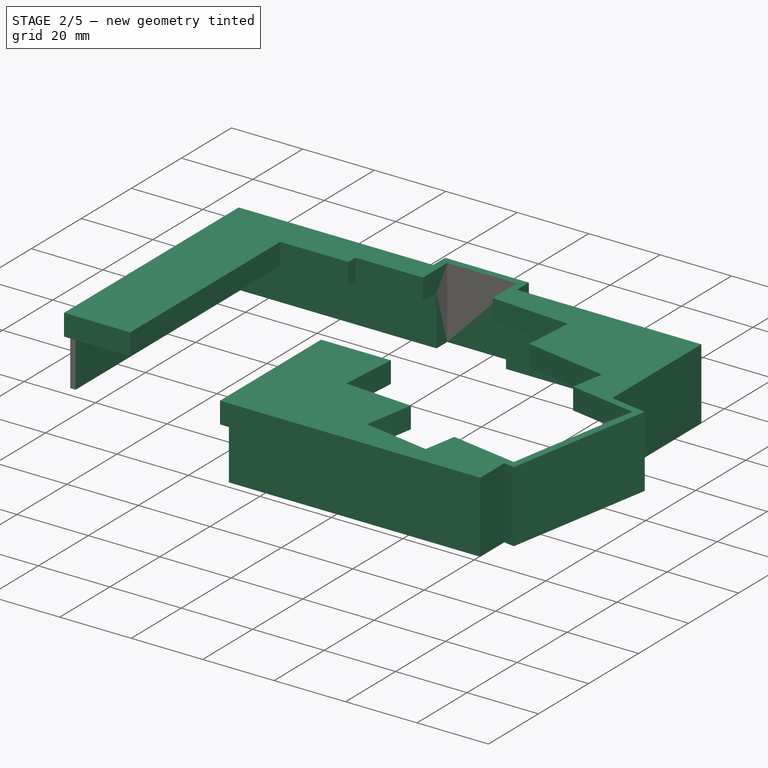
[diagram: stage 2 of 5 — iso view after this stage's code; geometry added in this stage tinted green]
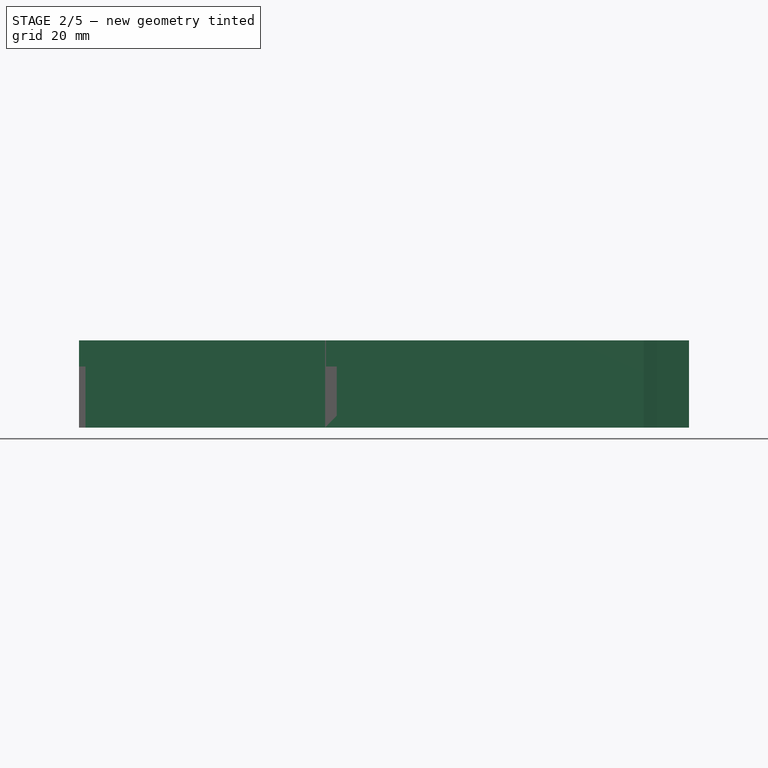
[diagram: stage 2 of 5 — front view after this stage's code; geometry added in this stage tinted green]
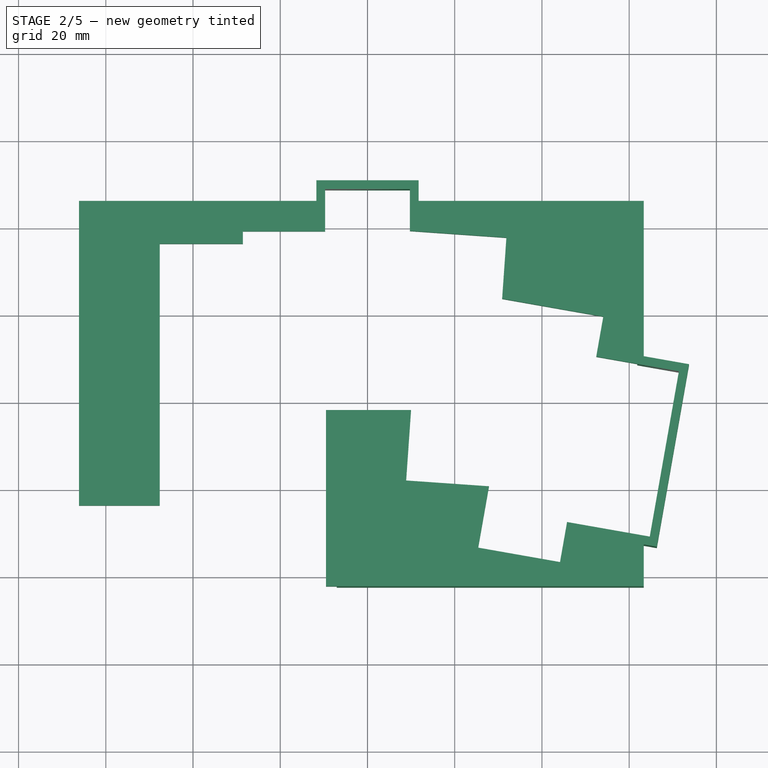
[diagram: stage 2 of 5 — top view after this stage's code; geometry added in this stage tinted green]
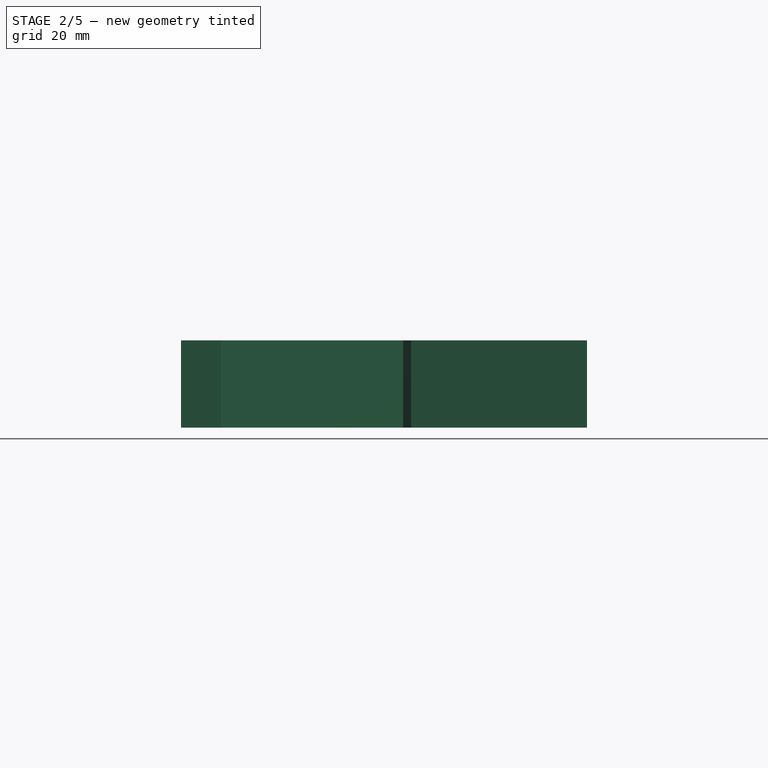
[diagram: stage 2 of 5 — right view after this stage's code; geometry added in this stage tinted green]
FEATURE [PartDesign::Body] Body  label="Plate"
  AllowCompound = false
  Group = -> [Sketch,Pad,Sketch001,Pocket,Sketch004,Pad003,Sketch028,Pad012,Fillet]
  Origin = -> Origin
  Tip = -> Fillet
FEATURE [PartDesign::SubShapeBinder] Binder
  BindCopyOnChange = 0
  BindMode = 0
  ClaimChildren = false
  Context = -> Part [Body001.Binder.]
  Fuse = false
  MakeFace = true
  OffsetFill = false
  OffsetIntersection = false
  OffsetJoinType = 0
  OffsetOpenResult = false
  PartialLoad = false
  Refine = true
  Relative = true
  Support = -> [Body]
  _Version = 2
FEATURE [Sketcher::SketchObject] Sketch029
  ArcFitTolerance = 1e-06
  AttachmentSupport = -> [Binder]
  ExternalGeometry = -> [Binder]
  FullyConstrained = true
  MakeInternals = false
  MapMode = 5
  Placement = pos=(0,0,3) rot=(0,0,1;0rad)
  expr: Constraints[140] = 2 mm + <<CaseVars>>.clearance
  expr: Constraints[141] = <<CaseVars>>.thumbOffset
  expr: Constraints[142] = <<CaseVars>>.thumbOffset
  expr: Constraints[146] = (<<LayoutVars>>.spacingV - 14 mm) / 2
  expr: Constraints[181] = (<<LayoutVars>>.spacingH - 14 mm) / 2
  expr: Constraints[221] = VarSet001.heatSetDia
  sketch-geometry (86):
    g0: LineSegment StartX=-66.15 StartY=-41.34 StartZ=0 EndX=-56.1 EndY=-41.34 EndZ=0
    g1: LineSegment StartX=-56.1 StartY=-41.34 StartZ=0 EndX=-56.1 EndY=-37.84 EndZ=0
    g2: LineSegment StartX=-52.6 StartY=-34.34 StartZ=0 EndX=-49.1 EndY=-34.34 EndZ=0
    g3: LineSegment StartX=-49.1 StartY=-34.34 StartZ=0 EndX=-49.1 EndY=17.6675 EndZ=0
    g4: LineSegment StartX=-49.1 StartY=17.6675 StartZ=0 EndX=-37.05 EndY=17.6675 EndZ=0
    g5: LineSegment StartX=-37.05 StartY=17.6675 StartZ=0 EndX=-37.05 EndY=20.525 EndZ=0
    g6: LineSegment StartX=-30.05 StartY=20.525 StartZ=0 EndX=-11.725 EndY=20.525 EndZ=0
    g7: LineSegment StartX=-11.725 StartY=20.525 StartZ=0 EndX=-11.725 EndY=30.775 EndZ=0
    g8: LineSegment StartX=-11.725 StartY=30.775 StartZ=0 EndX=11.725 EndY=30.775 EndZ=0
    g9: LineSegment StartX=11.725 StartY=30.775 StartZ=0 EndX=11.725 EndY=20.4911 EndZ=0
    g10: LineSegment StartX=11.725 StartY=20.4911 StartZ=0 EndX=33.425 EndY=18.9736 EndZ=0
    g11: LineSegment StartX=33.425 StartY=18.9736 StartZ=0 EndX=32.8974 EndY=11.4279 EndZ=0
    g12: LineSegment StartX=32.8974 StartY=11.4279 StartZ=0 EndX=36.3697 EndY=11.1851 EndZ=0
    g13: LineSegment StartX=39.5724 StartY=7.08586 StartZ=0 EndX=38.968 EndY=3.65792 EndZ=0
    g14: LineSegment StartX=38.968 StartY=3.65792 StartZ=0 EndX=55.7765 EndY=0.694126 EndZ=0
    g15: LineSegment StartX=73.7229 StartY=-11.4061 StartZ=0 EndX=66.3429 EndY=-53.2604 EndZ=0
    g16: LineSegment StartX=55.7765 StartY=0.694126 StartZ=0 EndX=54.2484 EndY=-7.97218 EndZ=0
    g17: LineSegment StartX=54.2484 StartY=-7.97218 StartZ=0 EndX=73.7229 EndY=-11.4061 EndZ=0
    g18: LineSegment StartX=66.3429 StartY=-53.2604 StartZ=0 EndX=53.762 EndY=-51.042 EndZ=0
    g19: LineSegment StartX=46.0348 StartY=-54.5536 StartZ=0 EndX=45.3402 EndY=-58.4928 EndZ=0
    g20: LineSegment StartX=45.3402 StartY=-58.4928 StartZ=0 EndX=23.6744 EndY=-54.6726 EndZ=0
    g21: LineSegment StartX=23.6744 StartY=-54.6726 StartZ=0 EndX=26.1271 EndY=-40.7628 EndZ=0
    g22: LineSegment StartX=26.1271 StartY=-40.7628 StartZ=0 EndX=7.28627 EndY=-39.4453 EndZ=0
    g23: LineSegment StartX=7.28627 StartY=-39.4453 StartZ=0 EndX=7.94326 EndY=-30.05 EndZ=0
    g24: LineSegment StartX=7.94326 StartY=-30.05 StartZ=0 EndX=-0.05 EndY=-30.05 EndZ=0
    g25: LineSegment StartX=-0.05 StartY=-30.05 StartZ=0 EndX=-0.05 EndY=-33.55 EndZ=0
    g26: LineSegment StartX=-3.55 StartY=-37.05 StartZ=0 EndX=-7.05 EndY=-37.05 EndZ=0
    g27: LineSegment StartX=-7.05 StartY=-37.05 StartZ=0 EndX=-7.05 EndY=-62.34 EndZ=0
    g28: ArcOfCircle CenterX=-33.55 CenterY=20.525 CenterZ=0 NormalX=0 NormalY=0 NormalZ=1 AngleXU=0 Radius=3.5 StartAngle=5e-16 EndAngle=3.14159
    g29: ArcOfCircle CenterX=36.1256 CenterY=7.69363 CenterZ=0 NormalX=0 NormalY=0 NormalZ=1 AngleXU=0 Radius=3.5 StartAngle=6.10865 EndAngle=7.78417
    g30: LineSegment StartX=46.0348 StartY=-54.5536 StartZ=0 EndX=49.4816 EndY=-55.1614 EndZ=0
    g31: LineSegment StartX=53.5362 StartY=-52.3223 StartZ=0 EndX=53.762 EndY=-51.042 EndZ=0
    g32: ArcOfCircle CenterX=50.0894 CenterY=-51.7145 CenterZ=0 NormalX=0 NormalY=0 NormalZ=1 AngleXU=0 Radius=3.5 StartAngle=4.53786 EndAngle=6.10865
    g33: LineSegment StartX=-66.15 StartY=-41.34 StartZ=0 EndX=-66.15 EndY=-43.815 EndZ=0
    g34: LineSegment StartX=-66.15 StartY=-43.815 StartZ=0 EndX=-47.625 EndY=-43.815 EndZ=0
    g35: LineSegment StartX=-47.625 StartY=-43.815 StartZ=0 EndX=-47.625 EndY=16.1925 EndZ=0
    g36: LineSegment StartX=-47.625 StartY=16.1925 StartZ=0 EndX=-28.575 EndY=16.1925 EndZ=0
    g37: LineSegment StartX=-28.575 StartY=16.1925 StartZ=0 EndX=-28.575 EndY=19.05 EndZ=0
    g38: LineSegment StartX=-28.575 StartY=19.05 StartZ=0 EndX=-9.525 EndY=19.05 EndZ=0
    g39: LineSegment StartX=-9.525 StartY=19.05 StartZ=0 EndX=-9.525 EndY=28.575 EndZ=0
    g40: LineSegment StartX=-9.525 StartY=28.575 StartZ=0 EndX=9.525 EndY=28.575 EndZ=0
    g41: LineSegment StartX=9.525 StartY=28.575 StartZ=0 EndX=9.525 EndY=19.1663 EndZ=0
    g42: LineSegment StartX=9.525 StartY=19.1663 StartZ=0 EndX=31.8507 EndY=17.6051 EndZ=0
    g43: LineSegment StartX=31.8507 StartY=17.6051 StartZ=0 EndX=30.8706 EndY=3.58795 EndZ=0
    g44: LineSegment StartX=30.8706 StartY=3.58795 StartZ=0 EndX=54.0677 EndY=-0.502334 EndZ=0
    g45: LineSegment StartX=54.0677 StartY=-0.502334 StartZ=0 EndX=52.4137 EndY=-9.88263 EndZ=0
    g46: LineSegment StartX=52.4137 StartY=-9.88263 StartZ=0 EndX=71.1743 EndY=-13.1906 EndZ=0
    g47: LineSegment StartX=71.1743 StartY=-13.1906 StartZ=0 EndX=64.5583 EndY=-50.7118 EndZ=0
    g48: LineSegment StartX=64.5583 StartY=-50.7118 StartZ=0 EndX=45.7978 EndY=-47.4038 EndZ=0
    g49: LineSegment StartX=45.7978 StartY=-47.4038 StartZ=0 EndX=44.1438 EndY=-56.7841 EndZ=0
    g50: LineSegment StartX=44.1438 StartY=-56.7841 StartZ=0 EndX=25.3832 EndY=-53.4761 EndZ=0
    g51: LineSegment StartX=25.3832 StartY=-53.4761 StartZ=0 EndX=27.8642 EndY=-39.4057 EndZ=0
    g52: LineSegment StartX=27.8642 StartY=-39.4057 StartZ=0 EndX=8.86057 EndY=-38.0768 EndZ=0
    g53: LineSegment StartX=8.86057 StartY=-38.0768 StartZ=0 EndX=9.99124 EndY=-21.9075 EndZ=0
    g54: LineSegment StartX=9.99124 StartY=-21.9075 StartZ=0 EndX=-9.525 EndY=-21.9075 EndZ=0
    g55: LineSegment StartX=-9.525 StartY=-21.9075 StartZ=0 EndX=-9.525 EndY=-62.34 EndZ=0
    g56: LineSegment StartX=-9.525 StartY=-62.34 StartZ=0 EndX=-7.05 EndY=-62.34 EndZ=0
    g57: ArcOfCircle CenterX=-3.54999 CenterY=-33.55 CenterZ=0 NormalX=0 NormalY=0 NormalZ=1 AngleXU=0 Radius=3.49999 StartAngle=4.71239 EndAngle=6.28319
    g58: LineSegment [constr] StartX=-9.525 StartY=28.575 StartZ=0 EndX=-11.725 EndY=28.575 EndZ=0
    g59: LineSegment [constr] StartX=-9.525 StartY=28.575 StartZ=0 EndX=-9.525 EndY=30.775 EndZ=0
    g60: LineSegment [constr] StartX=9.525 StartY=28.575 StartZ=0 EndX=11.725 EndY=28.575 EndZ=0
    g61: LineSegment [constr] StartX=71.1743 StartY=-13.1906 StartZ=0 EndX=71.5564 EndY=-11.024 EndZ=0
    g62: LineSegment [constr] StartX=71.1743 StartY=-13.1906 StartZ=0 EndX=73.3409 EndY=-13.5727 EndZ=0
    g63: LineSegment [constr] StartX=64.5583 StartY=-50.7118 StartZ=0 EndX=64.1763 EndY=-52.8784 EndZ=0
    g64: LineSegment [constr] StartX=-64.15 StartY=-46.34 StartZ=0 EndX=-64.15 EndY=-43.815 EndZ=0
    g65: LineSegment [constr] StartX=-45.1 StartY=13.6675 StartZ=0 EndX=-45.1 EndY=16.1925 EndZ=0
    g66: LineSegment [constr] StartX=-26.05 StartY=16.525 StartZ=0 EndX=-26.05 EndY=19.05 EndZ=0
    g67: LineSegment [constr] StartX=29.1558 StartY=15.2624 StartZ=0 EndX=29.3319 EndY=17.7813 EndZ=0
    g68: LineSegment [constr] StartX=51.1426 StartY=-2.55051 StartZ=0 EndX=51.5811 EndY=-0.0638722 EndZ=0
    g69: LineSegment [constr] StartX=42.0956 StartY=-53.859 StartZ=0 EndX=41.6571 EndY=-56.3456 EndZ=0
    g70: LineSegment [constr] StartX=11.5556 StartY=-35.7341 StartZ=0 EndX=11.3794 EndY=-38.2529 EndZ=0
    g71: LineSegment [constr] StartX=-45.1 StartY=-19.3825 StartZ=0 EndX=-45.1 EndY=-21.9075 EndZ=0
    g72: ArcOfCircle CenterX=-52.6 CenterY=-37.84 CenterZ=0 NormalX=0 NormalY=0 NormalZ=1 AngleXU=0 Radius=3.5 StartAngle=1.5708 EndAngle=3.14159
    g73: LineSegment [constr] StartX=-12.05 StartY=-40.625 StartZ=0 EndX=-9.525 EndY=-40.625 EndZ=0
    g74: LineSegment [constr] StartX=11.5556 StartY=-35.7341 StartZ=0 EndX=9.0367 EndY=-35.5579 EndZ=0
    g75: LineSegment [constr] StartX=28.3083 StartY=-51.4279 StartZ=0 EndX=25.8216 EndY=-50.9895 EndZ=0
    g76: LineSegment [constr] StartX=42.0956 StartY=-53.859 StartZ=0 EndX=44.5822 EndY=-54.2975 EndZ=0
    g77: LineSegment [constr] StartX=51.1426 StartY=-2.55051 StartZ=0 EndX=53.6293 EndY=-2.98897 EndZ=0
    g78: LineSegment [constr] StartX=29.1558 StartY=15.2624 StartZ=0 EndX=31.6746 EndY=15.0863 EndZ=0
    g79: LineSegment [constr] StartX=-45.1 StartY=13.6675 StartZ=0 EndX=-47.625 EndY=13.6675 EndZ=0
    g80: LineSegment [constr] StartX=-26.05 StartY=16.525 StartZ=0 EndX=-28.575 EndY=16.525 EndZ=0
    g81: Circle CenterX=-33.55 CenterY=20.525 CenterZ=0 NormalX=0 NormalY=0 NormalZ=1 AngleXU=0 Radius=1.6
    g82: Circle CenterX=-52.6 CenterY=-37.84 CenterZ=0 NormalX=0 NormalY=0 NormalZ=1 AngleXU=0 Radius=1.6
    g83: Circle CenterX=-3.54999 CenterY=-33.55 CenterZ=0 NormalX=0 NormalY=0 NormalZ=1 AngleXU=0 Radius=1.6
    g84: Circle CenterX=50.0894 CenterY=-51.7145 CenterZ=0 NormalX=0 NormalY=0 NormalZ=1 AngleXU=0 Radius=1.6
    g85: Circle CenterX=36.1256 CenterY=7.69363 CenterZ=0 NormalX=0 NormalY=0 NormalZ=1 AngleXU=0 Radius=1.6
  constraints (227):
    c: Coincident(g0,g-21)
    c: Horizontal(g0)
    c: Coincident(g0,g1)
    c: Coincident(g1,g-21)
    c: Coincident(g2,g3)
    c: Coincident(g3,g-3)
    c: Coincident(g3,g4)
    c: Coincident(g4,g-4)
    c: Coincident(g4,g5)
    c: Coincident(g5,g-6)
    c: Coincident(g-6,g6)
    c: Coincident(g6,g7)
    c: Vertical(g7)
    c: Coincident(g7,g8)
    c: Horizontal(g8)
    c: Coincident(g8,g9)
    c: Coincident(g9,g10)
    c: Coincident(g10,g-8)
    c: Coincident(g10,g11)
    c: Coincident(g11,g-8)
    c: Coincident(g11,g12)
    c: Coincident(g12,g-9)
    c: Coincident(g-10,g13)
    c: Coincident(g13,g-10)
    c: Coincident(g13,g14)
    c: Coincident(g14,g-11)
    c: Coincident(g14,g16)
    c: PointOnObject(g16,g-11)
    c: Coincident(g16,g17)
    c: Coincident(g17,g15)
    c: Coincident(g18,g15)
    c: PointOnObject(g18,g-13)
    c: Coincident(g19,g-14)
    c: Coincident(g19,g20)
    c: Coincident(g20,g-15)
    c: Coincident(g20,g21)
    c: Coincident(g21,g-15)
    c: Coincident(g21,g22)
    c: Coincident(g22,g-16)
    c: Coincident(g22,g23)
    c: Coincident(g23,g-16)
    c: Coincident(g23,g24)
    c: Coincident(g24,g-17)
    c: Coincident(g24,g25)
    c: Coincident(g25,g-19)
    c: Coincident(g27,g26)
    c: PointOnObject(g27,g-18)
    c: Coincident(g28,g6)
    c: Coincident(g29,g12)
    c: Coincident(g29,g13)
    c: Tangent(g29,g-9)
    c: Coincident(g19,g30)
    c: Coincident(g19,g-14)
    c: Coincident(g30,g-31)
    c: Coincident(g31,g-31)
    c: Coincident(g31,g18)
    c: Coincident(g32,g30)
    c: Coincident(g32,g31)
    c: Tangent(g32,g-31)
    c: Perpendicular(g15,g18)
    c: Perpendicular(g17,g15)
    c: Perpendicular(g16,g17)
    c: Vertical(g9)
    c: Perpendicular(g11,g10)
    c: Coincident(g0,g33)
    c: Vertical(g33)
    c: Coincident(g33,g34)
    c: Horizontal(g34)
    c: Coincident(g34,g35)
    c: Vertical(g35)
    c: Coincident(g35,g36)
    c: Horizontal(g36)
    c: Coincident(g36,g37)
    c: Vertical(g37)
    c: Coincident(g37,g38)
    c: Horizontal(g38)
    c: Coincident(g38,g39)
    c: Coincident(g39,g-5)
    c: Coincident(g39,g40)
    c: Coincident(g40,g-7)
    c: Coincident(g40,g41)
    c: Coincident(g41,g42)
    c: Coincident(g42,g43)
    c: Coincident(g43,g44)
    c: Coincident(g44,g45)
    c: Coincident(g45,g46)
    c: Coincident(g46,g-12)
    c: Coincident(g46,g47)
    c: Coincident(g47,g-12)
    c: Coincident(g47,g48)
    c: Coincident(g48,g49)
    c: Coincident(g49,g50)
    c: Coincident(g50,g51)
    c: Coincident(g51,g52)
    c: Coincident(g52,g53)
    c: Coincident(g53,g54)
    c: Horizontal(g54)
    c: Coincident(g54,g55)
    c: Coincident(g55,g56)
    c: Coincident(g56,g27)
    c: Horizontal(g56)
    c: Vertical(g55)
    c: Coincident(g57,g26)
    c: Coincident(g57,g25)
    c: Coincident(g26,g-19)
    c: Coincident(g26,g-18)
    c: PointOnObject(g-5,g39)
    c: PointOnObject(g-7,g41)
    c: Perpendicular(g45,g44)
    c: Perpendicular(g45,g46)
    c: PointOnObject(g-11,g46)
    c: Perpendicular(g48,g49)
    c: Perpendicular(g50,g49)
    c: Perpendicular(g50,g51)
    c: Parallel(g52,g-30)
    c: Parallel(g51,g21)
    c: Parallel(g23,g53)
    c: Coincident(g58,g39)
    c: PointOnObject(g58,g7)
    c: Horizontal(g58)
    c: Coincident(g59,g39)
    c: PointOnObject(g59,g8)
    c: Vertical(g59)
    c: Coincident(g60,g40)
    c: PointOnObject(g60,g9)
    c: Horizontal(g60)
    c: Coincident(g61,g46)
    c: PointOnObject(g61,g17)
    c: Coincident(g62,g46)
    c: PointOnObject(g62,g15)
    c: Coincident(g63,g47)
    c: PointOnObject(g63,g18)
    c: Perpendicular(g48,g63)
    c: Equal(g63,g62)
    c: Perpendicular(g47,g62)
    c: Equal(g62,g61)
    c: Perpendicular(g46,g61)
    c: Equal(g61,g60)
    c: Equal(g58,g59)
    c: Equal(g59,g60)
    c: Distance(g58,g58) = 2.2
    c: Distance(g33,g-22) = 3
    c: Distance(g56,g-23) = 3
    c: Coincident(g64,g-24)
    c: PointOnObject(g64,g34)
    c: Vertical(g64)
    c: Distance(g64,g64) = 2.525
    c: Coincident(g65,g-25)
    c: PointOnObject(g65,g36)
    c: Vertical(g65)
    c: Coincident(g66,g-26)
    c: PointOnObject(g66,g38)
    c: Vertical(g66)
    c: Coincident(g67,g-27)
    c: PointOnObject(g67,g42)
    c: Perpendicular(g-27,g67)
    c: Coincident(g68,g-28)
    c: PointOnObject(g68,g44)
    c: Perpendicular(g-28,g68)
    c: Coincident(g69,g-29)
    c: PointOnObject(g69,g50)
    c: Perpendicular(g-29,g69)
    c: Coincident(g70,g-30)
    c: PointOnObject(g70,g52)
    c: Perpendicular(g-30,g70)
    c: PointOnObject(g71,g54)
    c: Vertical(g71)
    c: Coincident(g2,g-3)
    c: Coincident(g2,g-20)
    c: Coincident(g72,g1)
    c: Coincident(g72,g2)
    c: Tangent(g72,g-20)
    c: Equal(g64,g65)
    c: Equal(g65,g66)
    c: Equal(g66,g67)
    c: Equal(g67,g68)
    c: Equal(g68,g69)
    c: Equal(g69,g70)
    c: Equal(g70,g71)
    c: PointOnObject(g73,g55)
    c: Horizontal(g73)
    c: Distance(g73,g73) = 2.525
    c: Coincident(g74,g70)
    c: PointOnObject(g74,g53)
    c: Perpendicular(g53,g74)
    c: Coincident(g75,g-29)
    c: PointOnObject(g75,g51)
    c: Coincident(g76,g69)
    c: PointOnObject(g76,g49)
    c: Parallel(g76,g-29)
    c: Parallel(g-29,g75)
    c: Coincident(g77,g68)
    c: PointOnObject(g77,g45)
    c: Perpendicular(g45,g77)
    c: Coincident(g78,g67)
    c: PointOnObject(g78,g43)
    c: Perpendicular(g43,g78)
    c: Perpendicular(g43,g42)
    c: Perpendicular(g42,g67)
    c: Coincident(g79,g65)
    c: PointOnObject(g79,g35)
    c: Horizontal(g79)
    c: Coincident(g80,g66)
    c: PointOnObject(g80,g37)
    c: Horizontal(g80)
    c: Equal(g73,g74)
    c: Equal(g74,g75)
    c: Equal(g75,g76)
    c: Equal(g76,g77)
    c: Equal(g77,g78)
    c: Equal(g78,g79)
    c: Equal(g79,g80)
    c: Horizontal(g6)
    c: Coincident(g81,g28)
    c: Coincident(g82,g72)
    c: Coincident(g84,g32)
    c: Coincident(g85,g29)
    c: Equal(g82,g81)
    c: Equal(g81,g85)
    c: Equal(g85,g83)
    c: Equal(g83,g84)
    c: Diameter(g82) = 3.2
    c: Coincident(g83,g57)
    c: Tangent(g57,g-19)
    c: Tangent(g28,g5) = 1.5708
    c: Coincident(g73,g-32)
    c: Coincident(g71,g-33)
FEATURE [PartDesign::Pad] Pad013  label="Inner"
  Direction = (0,0,1)
  Length = 6
  Length2 = 10
  Profile = -> Sketch029
  ReferenceAxis = -> Sketch029 [N_Axis]
  Refine = true
  Suppressed = false
  Type = 0
  expr: Length = <<CaseVars>>.innerWallHeight
FEATURE [Sketcher::SketchObject] Sketch030
  ArcFitTolerance = 1e-06
  AttachmentSupport = -> [Pad013]
  FullyConstrained = true
  MakeInternals = false
  MapMode = 1
  Placement = pos=(9.525,28.575,9) rot=(0,0,1;0rad)
  expr: Constraints[23] = <<LayoutVars>>.spacingV
  expr: Constraints[24] = <<LayoutVars>>.spacingH
  expr: Constraints[25] = <<CaseVars>>.clearance
  sketch-geometry (9):
    g0: LineSegment StartX=0 StartY=0 StartZ=0 EndX=0 EndY=-19.05 EndZ=0
    g1: LineSegment StartX=0 StartY=-19.05 StartZ=0 EndX=0.2 EndY=-19.05 EndZ=0
    g2: LineSegment StartX=0.2 StartY=-19.05 StartZ=0 EndX=0.2 EndY=0.2 EndZ=0
    g3: LineSegment StartX=0.2 StartY=0.2 StartZ=0 EndX=-19.25 EndY=0.2 EndZ=0
    g4: LineSegment StartX=-19.25 StartY=0.2 StartZ=0 EndX=-19.25 EndY=-19.05 EndZ=0
    g5: LineSegment StartX=-19.25 StartY=-19.05 StartZ=0 EndX=-19.05 EndY=-19.05 EndZ=0
    g6: LineSegment StartX=-19.05 StartY=-19.05 StartZ=0 EndX=-19.05 EndY=0 EndZ=0
    g7: LineSegment StartX=-19.05 StartY=0 StartZ=0 EndX=0 EndY=0 EndZ=0
    g8: LineSegment [constr] StartX=-19.05 StartY=0 StartZ=0 EndX=-19.05 EndY=0.2 EndZ=0
  constraints (26):
    c: Coincident(g-1,g0)
    c: PointOnObject(g0,g-2)
    c: Coincident(g0,g1)
    c: Horizontal(g1)
    c: Coincident(g1,g2)
    c: Vertical(g2)
    c: Coincident(g2,g3)
    c: Coincident(g3,g4)
    c: Vertical(g4)
    c: Coincident(g4,g5)
    c: Coincident(g5,g6)
    c: PointOnObject(g6,g-1)
    c: Vertical(g6)
    c: Coincident(g6,g7)
    c: Coincident(g7,g0)
    c: Horizontal(g5)
    c: Horizontal(g3)
    c: Equal(g6,g0)
    c: Coincident(g8,g6)
    c: PointOnObject(g8,g3)
    c: Vertical(g8)
    c: Equal(g8,g5)
    c: Equal(g5,g1)
    c: Distance(g6,g6) = 19.05
    c: Distance(g7,g7) = 19.05
    c: Distance(g1,g1) = 0.2
FEATURE [PartDesign::Pocket] Pocket001
  BaseFeature = -> Pad013
  Direction = (0,0,-1)
  Length = 5
  Length2 = 5
  Profile = -> Sketch030
  ReferenceAxis = -> Sketch030 [N_Axis]
  Refine = true
  Suppressed = false
  Type = 1
FEATURE [Sketcher::SketchObject] Sketch031
  ArcFitTolerance = 1e-06
  AttachmentSupport = -> [Pocket001]
  FullyConstrained = true
  MakeInternals = false
  MapMode = 1
  Placement = pos=(64.5583,-50.7118,9) rot=(0,0,1;0rad)
  expr: Constraints[21] = <<LayoutVars>>.spacingV * 2
  expr: Constraints[22] = <<LayoutVars>>.spacingH
  expr: Constraints[23] = <<CaseVars>>.clearance
  expr: Constraints[25] = <<LayoutVars>>.mrAngle + <<LayoutVars>>.rpAngle
  sketch-geometry (9):
    g0: LineSegment StartX=6.616 StartY=37.5212 StartZ=0 EndX=0 EndY=0 EndZ=0
    g1: LineSegment StartX=0 StartY=0 StartZ=0 EndX=-18.7606 EndY=3.308 EndZ=0
    g2: LineSegment StartX=-18.7606 StartY=3.308 StartZ=0 EndX=-18.7953 EndY=3.11104 EndZ=0
    g3: LineSegment StartX=-18.7953 StartY=3.11104 StartZ=0 EndX=0.162232 EndY=-0.231691 EndZ=0
    g4: LineSegment StartX=0.162232 StartY=-0.231691 StartZ=0 EndX=6.84769 EndY=37.6834 EndZ=0
    g5: LineSegment StartX=6.84769 StartY=37.6834 StartZ=0 EndX=-12.1099 EndY=41.0261 EndZ=0
    g6: LineSegment StartX=-12.1099 StartY=41.0261 StartZ=0 EndX=-12.1446 EndY=40.8292 EndZ=0
    g7: LineSegment StartX=-12.1446 StartY=40.8292 StartZ=0 EndX=6.616 EndY=37.5212 EndZ=0
    g8: LineSegment [constr] StartX=6.616 StartY=37.5212 StartZ=0 EndX=6.81296 EndY=37.4864 EndZ=0
  constraints (26):
    c: Coincident(g0,g1)
    c: Coincident(g1,g2)
    c: Coincident(g2,g3)
    c: Coincident(g3,g4)
    c: Coincident(g4,g5)
    c: Coincident(g5,g6)
    c: Coincident(g6,g7)
    c: Coincident(g7,g0)
    c: Perpendicular(g0,g7)
    c: Perpendicular(g0,g1)
    c: Perpendicular(g2,g1)
    c: Perpendicular(g3,g2)
    c: Perpendicular(g3,g4)
    c: Perpendicular(g5,g4)
    c: Perpendicular(g6,g5)
    c: Coincident(g8,g0)
    c: PointOnObject(g8,g4)
    c: Parallel(g7,g8)
    c: Equal(g8,g6)
    c: Equal(g6,g2)
    c: Equal(g1,g7)
    c: Distance(g0,g0) = 38.1
    c: Distance(g7,g7) = 19.05
    c: Distance(g2,g2) = 0.2
    c: Coincident(g0,g-1)
    c: Angle(g0,g-2) = 0.174533
FEATURE [PartDesign::Pocket] Pocket002
  BaseFeature = -> Pocket001
  Direction = (0,0,-1)
  Length = 5
  Length2 = 5
  Profile = -> Sketch031
  ReferenceAxis = -> Sketch031 [N_Axis]
  Refine = true
  Suppressed = false
  Type = 1
FEATURE [Sketcher::SketchObject] Sketch032
  ArcFitTolerance = 1e-06
  AttachmentSupport = -> [Pocket002]
  ExternalGeometry = -> [Pocket002]
  FullyConstrained = true
  MakeInternals = false
  MapMode = 5
  Placement = pos=(0,0,9) rot=(0,1,0;3.14159rad)
  sketch-geometry (26):
    g0: LineSegment StartX=11.725 StartY=26.025 StartZ=0 EndX=11.725 EndY=19.05 EndZ=0
    g1: LineSegment StartX=11.725 StartY=19.05 StartZ=0 EndX=28.575 EndY=19.05 EndZ=0
    g2: LineSegment StartX=28.575 StartY=19.05 StartZ=0 EndX=28.575 EndY=16.1925 EndZ=0
    g3: LineSegment StartX=28.575 StartY=16.1925 StartZ=0 EndX=47.625 EndY=16.1925 EndZ=0
    g4: LineSegment StartX=47.625 StartY=16.1925 StartZ=0 EndX=47.625 EndY=-43.815 EndZ=0
    g5: LineSegment StartX=47.625 StartY=-43.815 StartZ=0 EndX=66.15 EndY=-43.815 EndZ=0
    g6: LineSegment StartX=66.15 StartY=-43.815 StartZ=0 EndX=66.15 EndY=26.025 EndZ=0
    g7: LineSegment StartX=66.15 StartY=26.025 StartZ=0 EndX=11.725 EndY=26.025 EndZ=0
    g8: LineSegment StartX=-11.725 StartY=26.025 StartZ=0 EndX=-63.3429 EndY=26.025 EndZ=0
    g9: LineSegment StartX=-63.3429 StartY=26.025 StartZ=0 EndX=-63.3429 EndY=-11.6066 EndZ=0
    g10: LineSegment StartX=-63.3429 StartY=-11.6066 StartZ=0 EndX=-52.4485 EndY=-9.68567 EndZ=0
    g11: LineSegment StartX=-52.4485 StartY=-9.68567 StartZ=0 EndX=-54.0677 EndY=-0.502334 EndZ=0
    g12: LineSegment StartX=-54.0677 StartY=-0.502334 StartZ=0 EndX=-30.8706 EndY=3.58795 EndZ=0
    g13: LineSegment StartX=-30.8706 StartY=3.58795 StartZ=0 EndX=-31.8507 EndY=17.6051 EndZ=0
    g14: LineSegment StartX=-31.8507 StartY=17.6051 StartZ=0 EndX=-11.725 EndY=19.0125 EndZ=0
    g15: LineSegment StartX=-11.725 StartY=19.0125 StartZ=0 EndX=-11.725 EndY=26.025 EndZ=0
    g16: LineSegment StartX=9.525 StartY=-62.34 StartZ=0 EndX=9.525 EndY=-21.9075 EndZ=0
    g17: LineSegment StartX=9.525 StartY=-21.9075 StartZ=0 EndX=-9.99124 EndY=-21.9075 EndZ=0
    g18: LineSegment StartX=-9.99124 StartY=-21.9075 StartZ=0 EndX=-8.86057 EndY=-38.0768 EndZ=0
    g19: LineSegment StartX=-8.86057 StartY=-38.0768 StartZ=0 EndX=-27.8642 EndY=-39.4057 EndZ=0
    g20: LineSegment StartX=-27.8642 StartY=-39.4057 StartZ=0 EndX=-25.3832 EndY=-53.4761 EndZ=0
    g21: LineSegment StartX=-25.3832 StartY=-53.4761 StartZ=0 EndX=-44.1438 EndY=-56.7841 EndZ=0
    g22: LineSegment StartX=-44.1438 StartY=-56.7841 StartZ=0 EndX=-45.763 EndY=-47.6008 EndZ=0
    g23: LineSegment StartX=-45.763 StartY=-47.6008 StartZ=0 EndX=-63.3429 EndY=-50.7006 EndZ=0
    g24: LineSegment StartX=-63.3429 StartY=-50.7006 StartZ=0 EndX=-63.3429 EndY=-62.34 EndZ=0
    g25: LineSegment StartX=-63.3429 StartY=-62.34 StartZ=0 EndX=9.525 EndY=-62.34 EndZ=0
  constraints (59):
    c: PointOnObject(g0,g-4)
    c: PointOnObject(g0,g-5)
    c: Vertical(g0)
    c: Coincident(g0,g1)
    c: Coincident(g1,g-6)
    c: Coincident(g1,g2)
    c: Coincident(g2,g-7)
    c: Coincident(g2,g3)
    c: Coincident(g3,g-8)
    c: Coincident(g3,g4)
    c: Coincident(g4,g-8)
    c: Coincident(g4,g5)
    c: Coincident(g5,g-9)
    c: Coincident(g5,g6)
    c: Coincident(g6,g7)
    c: Coincident(g7,g0)
    c: Horizontal(g7)
    c: PointOnObject(g-9,g6)
    c: PointOnObject(g8,g-11)
    c: Coincident(g8,g9)
    c: PointOnObject(g9,g-16)
    c: Coincident(g9,g10)
    c: Coincident(g10,g-16)
    c: Coincident(g10,g11)
    c: Coincident(g11,g-15)
    c: Coincident(g11,g12)
    c: Coincident(g12,g-14)
    c: Coincident(g12,g13)
    c: Coincident(g13,g-13)
    c: Coincident(g13,g14)
    c: PointOnObject(g14,g-12)
    c: Coincident(g14,g15)
    c: Coincident(g15,g8)
    c: Vertical(g15)
    c: Tangent(g8,g7)
    c: Coincident(g-3,g16)
    c: Coincident(g16,g-24)
    c: Coincident(g16,g17)
    c: Coincident(g17,g-24)
    c: Coincident(g17,g18)
    c: Coincident(g18,g-23)
    c: Coincident(g18,g19)
    c: Coincident(g19,g-22)
    c: Coincident(g19,g20)
    c: Coincident(g20,g-21)
    c: Coincident(g20,g21)
    c: Coincident(g21,g-20)
    c: Coincident(g21,g22)
    c: Coincident(g22,g-19)
    c: Coincident(g22,g23)
    c: PointOnObject(g23,g-18)
    c: Coincident(g23,g24)
    c: Vertical(g24)
    c: Coincident(g24,g25)
    c: Coincident(g25,g16)
    c: Horizontal(g25)
    c: Tangent(g24,g9)
    c: Distance(g-17,g24) = 3
    c: Distance(g-10,g7) = 2
FEATURE [PartDesign::Pad] Pad014  label="TopFace"
  BaseFeature = -> Pocket002
  Direction = (0,0,-1)
  Length = 1.5
  Length2 = 10
  Profile = -> Sketch032
  ReferenceAxis = -> Sketch032 [N_Axis]
  Refine = true
  Suppressed = false
  Type = 0
FEATURE [Sketcher::SketchObject] Sketch033
  ArcFitTolerance = 1e-06
  AttachmentSupport = -> [Pad014]
  ExternalGeometry = -> [Pad014]
  FullyConstrained = true
  MakeInternals = false
  MapMode = 5
  Placement = pos=(0,0,9) rot=(0,1,0;3.14159rad)
  expr: Constraints[51] = <<CaseVars>>.outerWallWidth
  sketch-geometry (31):
    g0: LineSegment StartX=66.15 StartY=-41.34 StartZ=0 EndX=66.15 EndY=26.025 EndZ=0
    g1: LineSegment StartX=66.15 StartY=26.025 StartZ=0 EndX=11.725 EndY=26.025 EndZ=0
    g2: LineSegment StartX=11.725 StartY=26.025 StartZ=0 EndX=11.725 EndY=30.775 EndZ=0
    g3: LineSegment StartX=11.725 StartY=30.775 StartZ=0 EndX=-11.725 EndY=30.775 EndZ=0
    g4: LineSegment StartX=-11.725 StartY=30.775 StartZ=0 EndX=-11.725 EndY=26.025 EndZ=0
    g5: LineSegment StartX=-11.725 StartY=26.025 StartZ=0 EndX=-63.3429 EndY=26.025 EndZ=0
    g6: LineSegment StartX=-63.3429 StartY=26.025 StartZ=0 EndX=-63.3429 EndY=-9.57579 EndZ=0
    g7: LineSegment StartX=-63.3429 StartY=-9.57579 StartZ=0 EndX=-73.7229 EndY=-11.4061 EndZ=0
    g8: LineSegment StartX=-73.7229 StartY=-11.4061 StartZ=0 EndX=-66.3429 EndY=-53.2604 EndZ=0
    g9: LineSegment StartX=-66.3429 StartY=-53.2604 StartZ=0 EndX=-63.3429 EndY=-52.7314 EndZ=0
    g10: LineSegment StartX=-63.3429 StartY=-52.7314 StartZ=0 EndX=-63.3429 EndY=-62.34 EndZ=0
    g11: LineSegment StartX=-63.3429 StartY=-62.34 StartZ=0 EndX=7.05 EndY=-62.34 EndZ=0
    g12: LineSegment StartX=7.05 StartY=-62.34 StartZ=0 EndX=7.05 EndY=-60.84 EndZ=0
    g13: LineSegment StartX=7.05 StartY=-60.84 StartZ=0 EndX=-61.8429 EndY=-60.84 EndZ=0
    g14: LineSegment StartX=-61.8429 StartY=-60.84 StartZ=0 EndX=-61.8429 EndY=-50.4361 EndZ=0
    g15: LineSegment StartX=-61.8429 StartY=-50.4361 StartZ=0 EndX=-64.7206 EndY=-50.9435 EndZ=0
    g16: LineSegment StartX=-64.7206 StartY=-50.9435 StartZ=0 EndX=-71.406 EndY=-13.0284 EndZ=0
    g17: LineSegment StartX=-71.406 StartY=-13.0284 StartZ=0 EndX=-61.8429 EndY=-11.3422 EndZ=0
    g18: LineSegment StartX=-61.8429 StartY=-11.3422 StartZ=0 EndX=-61.8429 EndY=24.525 EndZ=0
    g19: LineSegment StartX=-61.8429 StartY=24.525 StartZ=0 EndX=-9.725 EndY=24.525 EndZ=0
    g20: LineSegment StartX=-9.725 StartY=24.525 StartZ=0 EndX=-9.725 EndY=28.775 EndZ=0
    g21: LineSegment StartX=-9.725 StartY=28.775 StartZ=0 EndX=9.725 EndY=28.775 EndZ=0
    g22: LineSegment StartX=9.725 StartY=28.775 StartZ=0 EndX=9.725 EndY=24.525 EndZ=0
    g23: LineSegment StartX=9.725 StartY=24.525 StartZ=0 EndX=64.65 EndY=24.525 EndZ=0
    g24: LineSegment StartX=64.65 StartY=24.525 StartZ=0 EndX=64.65 EndY=-41.34 EndZ=0
    g25: LineSegment StartX=64.65 StartY=-41.34 StartZ=0 EndX=66.15 EndY=-41.34 EndZ=0
    g26: LineSegment [constr] StartX=-61.8429 StartY=-60.84 StartZ=0 EndX=-63.3429 EndY=-60.84 EndZ=0
    g27: LineSegment [constr] StartX=-61.8429 StartY=24.525 StartZ=0 EndX=-63.3429 EndY=24.525 EndZ=0
    g28: LineSegment [constr] StartX=-61.8429 StartY=24.525 StartZ=0 EndX=-61.8429 EndY=26.025 EndZ=0
    g29: LineSegment [constr] StartX=64.65 StartY=24.525 StartZ=0 EndX=64.65 EndY=26.025 EndZ=0
    g30: LineSegment [constr] StartX=64.65 StartY=24.525 StartZ=0 EndX=66.15 EndY=24.525 EndZ=0
  constraints (78):
    c: Coincident(g0,g-4)
    c: Coincident(g0,g1)
    c: Coincident(g1,g-3)
    c: Coincident(g1,g2)
    c: Coincident(g2,g3)
    c: Coincident(g3,g-13)
    c: Coincident(g3,g4)
    c: Coincident(g4,g-13)
    c: Coincident(g2,g-14)
    c: Coincident(g4,g5)
    c: Coincident(g5,g-8)
    c: Coincident(g5,g6)
    c: Coincident(g6,g-8)
    c: Coincident(g6,g7)
    c: Coincident(g7,g-6)
    c: Coincident(g7,g8)
    c: Coincident(g8,g-6)
    c: Coincident(g8,g9)
    c: Coincident(g9,g-7)
    c: Coincident(g9,g10)
    c: Coincident(g10,g-7)
    c: Coincident(g10,g11)
    c: Vertical(g12)
    c: Coincident(g12,g13)
    c: Horizontal(g13)
    c: Coincident(g13,g14)
    c: PointOnObject(g14,g-11)
    c: Coincident(g14,g15)
    c: Coincident(g15,g-11)
    c: Coincident(g15,g16)
    c: Coincident(g16,g-12)
    c: Coincident(g16,g17)
    c: PointOnObject(g17,g-12)
    c: Vertical(g14)
    c: Coincident(g17,g18)
    c: Vertical(g18)
    c: Coincident(g18,g19)
    c: PointOnObject(g19,g-9)
    c: Coincident(g19,g20)
    c: Coincident(g20,g-9)
    c: Coincident(g20,g21)
    c: Coincident(g21,g-10)
    c: Coincident(g21,g22)
    c: PointOnObject(g22,g-10)
    c: Coincident(g22,g23)
    c: Horizontal(g23)
    c: Coincident(g23,g24)
    c: Vertical(g24)
    c: Coincident(g24,g25)
    c: Horizontal(g25)
    c: Equal(g25,g12)
    c: Distance(g12,g12) = 1.5
    c: Coincident(g26,g13)
    c: PointOnObject(g26,g10)
    c: Horizontal(g26)
    c: Coincident(g27,g18)
    c: PointOnObject(g27,g6)
    c: Horizontal(g27)
    c: Coincident(g28,g18)
    c: PointOnObject(g28,g5)
    c: Vertical(g28)
    c: Coincident(g29,g23)
    c: PointOnObject(g29,g1)
    c: Vertical(g29)
    c: Coincident(g30,g23)
    c: PointOnObject(g30,g0)
    c: Horizontal(g30)
    c: Equal(g26,g27)
    c: Equal(g27,g28)
    c: Equal(g28,g29)
    c: Equal(g29,g25)
    c: Horizontal(g19)
    c: Coincident(g0,g25)
    c: Coincident(g11,g12)
    c: Horizontal(g11)
    c: PointOnObject(g12,g-15)
    c: PointOnObject(g24,g-16)
    c: Vertical(g0)
FEATURE [PartDesign::Pad] Pad015  label="Outer"
  BaseFeature = -> Pad014
  Direction = (0,0,-1)
  Length = 20
  Length2 = 10
  Profile = -> Sketch033
  ReferenceAxis = -> Sketch033 [N_Axis]
  Refine = true
  Suppressed = false
  Type = 0
  expr: Length = <<CaseVars>>.innerWallHeight + <<ThumbWall>>.Length
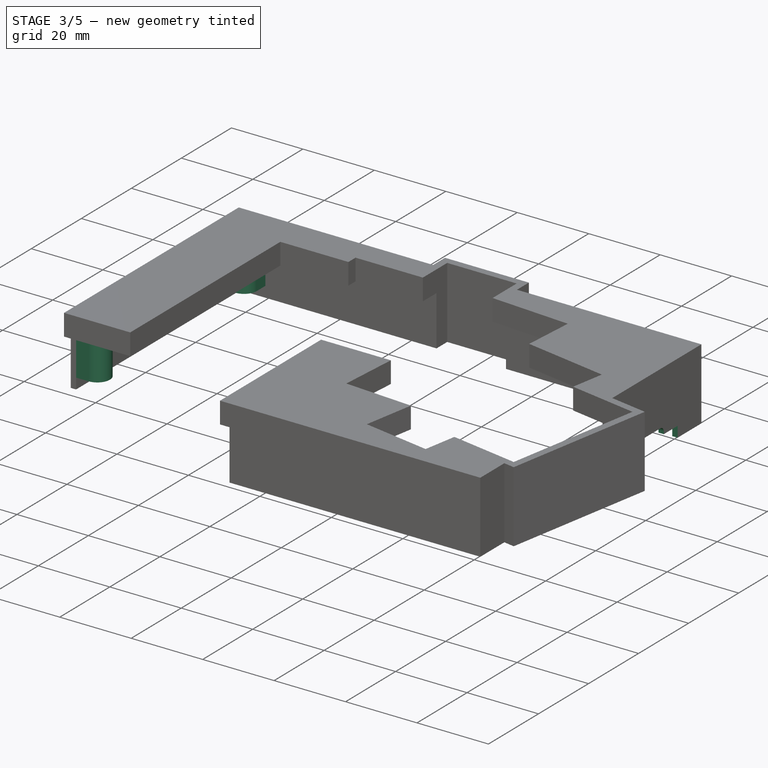
[diagram: stage 3 of 5 — iso view after this stage's code; geometry added in this stage tinted green]
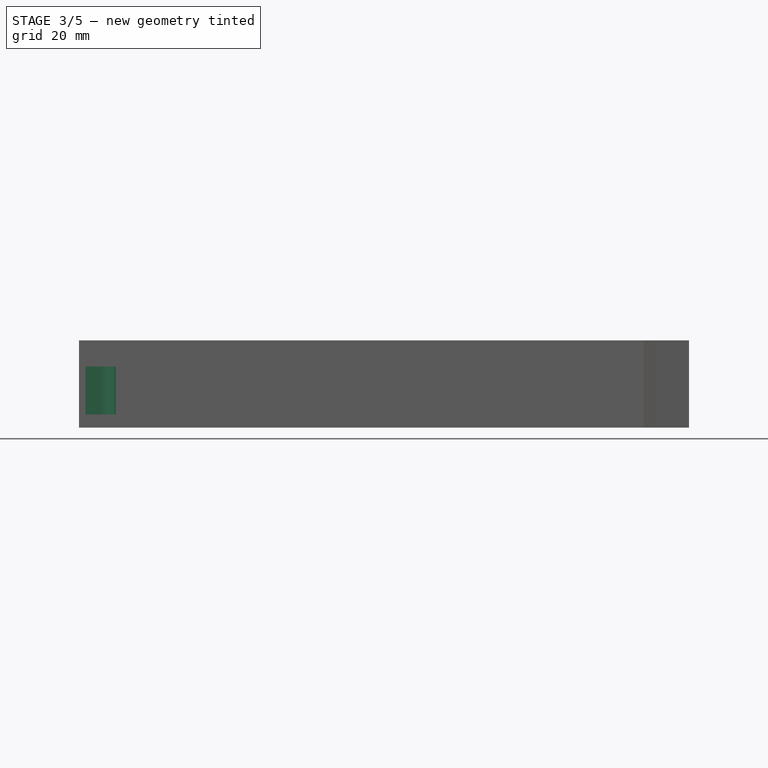
[diagram: stage 3 of 5 — front view after this stage's code; geometry added in this stage tinted green]
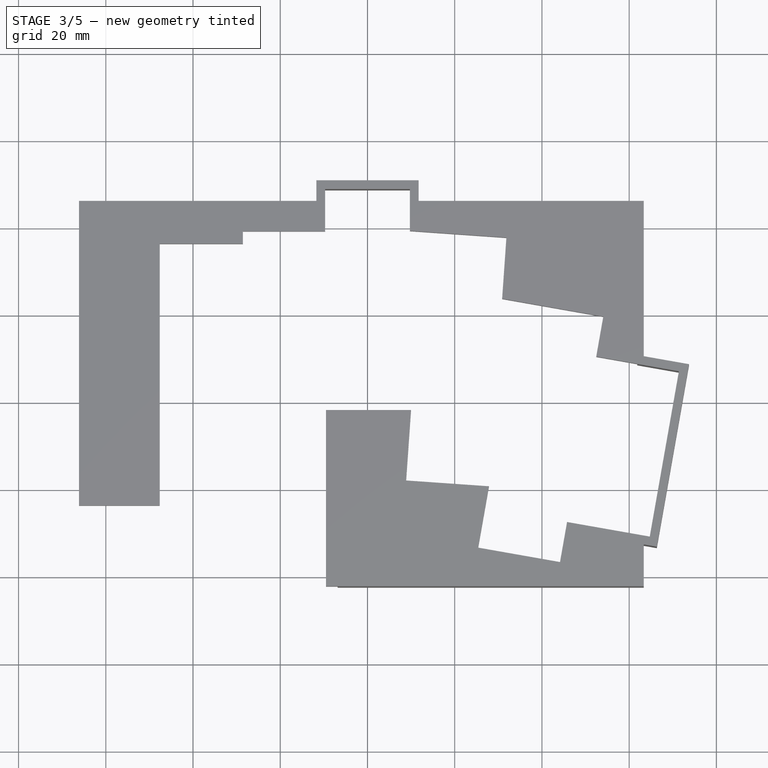
[diagram: stage 3 of 5 — top view after this stage's code; geometry added in this stage tinted green]
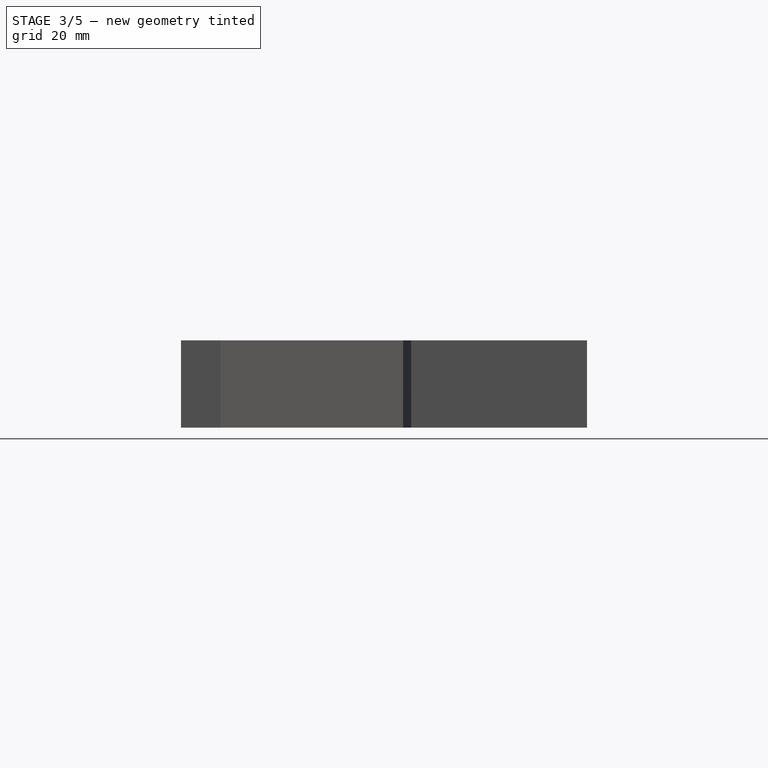
[diagram: stage 3 of 5 — right view after this stage's code; geometry added in this stage tinted green]
FEATURE [Sketcher::SketchObject] Sketch034
  ArcFitTolerance = 1e-06
  AttachmentSupport = -> [Pad015]
  FullyConstrained = true
  MakeInternals = false
  MapMode = 1
  Placement = pos=(-66.15,-41.34,3) rot=(0.57735,-0.57735,-0.57735;2.0944rad)
  expr: Constraints[8] = <<CaseVars>>.clearance
  expr: Constraints[9] = <<ThumbWall>>.Length
  sketch-geometry (4):
    g0: LineSegment StartX=0 StartY=0 StartZ=0 EndX=-0.2 EndY=0 EndZ=0
    g1: LineSegment StartX=-0.2 StartY=0 StartZ=0 EndX=-0.2 EndY=-14 EndZ=0
    g2: LineSegment StartX=-0.2 StartY=-14 StartZ=0 EndX=0 EndY=-14 EndZ=0
    g3: LineSegment StartX=0 StartY=-14 StartZ=0 EndX=0 EndY=0 EndZ=0
  constraints (11):
    c: Coincident(g0,g1)
    c: Coincident(g1,g2)
    c: Coincident(g2,g3)
    c: Coincident(g3,g0)
    c: Horizontal(g0)
    c: Horizontal(g2)
    c: Vertical(g1)
    c: Vertical(g3)
    c: Distance(g0,g0) = 0.2
    c: DistanceY(g1,g1) = 14
    c: Coincident(g0,g-1)
FEATURE [Sketcher::SketchObject] Sketch035
  ArcFitTolerance = 1e-06
  FullyConstrained = true
  MakeInternals = false
  MapMode = 1
  Placement = pos=(-7.05,-62.34,3) rot=(1,0,0;1.5708rad)
  expr: Constraints[10] = <<ThumbWall>>.Length
  expr: Constraints[9] = <<CaseVars>>.clearance
  sketch-geometry (4):
    g0: LineSegment StartX=0 StartY=0 StartZ=0 EndX=0 EndY=-14 EndZ=0
    g1: LineSegment StartX=0 StartY=-14 StartZ=0 EndX=0.2 EndY=-14 EndZ=0
    g2: LineSegment StartX=0.2 StartY=-14 StartZ=0 EndX=0.2 EndY=0 EndZ=0
    g3: LineSegment StartX=0.2 StartY=0 StartZ=0 EndX=0 EndY=0 EndZ=0
  constraints (11):
    c: Coincident(g0,g1)
    c: Coincident(g1,g2)
    c: Coincident(g2,g3)
    c: Coincident(g3,g0)
    c: Vertical(g0)
    c: Vertical(g2)
    c: Horizontal(g1)
    c: Horizontal(g3)
    c: Coincident(g0,g-1)
    c: Distance(g1,g1) = 0.2
    c: DistanceY(g2,g2) = 14
FEATURE [PartDesign::Pocket] Pocket003
  BaseFeature = -> Pad015
  Direction = (1,-1e-16,1e-16)
  Length = 5
  Length2 = 5
  Profile = -> Sketch034
  ReferenceAxis = -> Sketch034 [N_Axis]
  Refine = true
  Suppressed = false
  Type = 2
FEATURE [PartDesign::Pocket] Pocket004
  BaseFeature = -> Pocket003
  Direction = (0,1,-2e-16)
  Length = 5
  Length2 = 5
  Profile = -> Sketch035
  ReferenceAxis = -> Sketch035 [N_Axis]
  Refine = true
  Suppressed = false
  Type = 2
FEATURE [Sketcher::SketchObject] Sketch036
  ArcFitTolerance = 1e-06
  AttachmentSupport = -> [Pocket004]
  ExternalGeometry = -> [Pocket004]
  FullyConstrained = true
  MakeInternals = false
  MapMode = 5
  Placement = pos=(0,0,9) rot=(0,0,1;0rad)
  expr: Constraints[3] = <<CaseVars>>.heatSetDia
  sketch-geometry (28):
    g0: Circle CenterX=58.3429 CenterY=21.025 CenterZ=0 NormalX=0 NormalY=0 NormalZ=1 AngleXU=0 Radius=1.6
    g1: Circle CenterX=-61.15 CenterY=21.025 CenterZ=0 NormalX=0 NormalY=0 NormalZ=1 AngleXU=0 Radius=1.6
    g2: Circle CenterX=-61.15 CenterY=-37.64 CenterZ=0 NormalX=0 NormalY=0 NormalZ=1 AngleXU=0 Radius=1.6
    g3: Circle CenterX=58.3429 CenterY=-57.34 CenterZ=0 NormalX=0 NormalY=0 NormalZ=1 AngleXU=0 Radius=1.6
    g4: LineSegment [constr] StartX=58.3429 StartY=24.525 StartZ=0 EndX=58.3429 EndY=17.525 EndZ=0
    g5: LineSegment [constr] StartX=54.8429 StartY=-57.34 StartZ=0 EndX=61.8429 EndY=-57.34 EndZ=0
    g6: LineSegment [constr] StartX=-64.65 StartY=-37.64 StartZ=0 EndX=-57.65 EndY=-37.64 EndZ=0
    g7: LineSegment StartX=-64.65 StartY=24.525 StartZ=0 EndX=-57.65 EndY=24.525 EndZ=0
    g8: LineSegment [constr] StartX=-61.15 StartY=17.525 StartZ=0 EndX=-61.15 EndY=24.525 EndZ=0
    g9: LineSegment StartX=-64.65 StartY=-34.14 StartZ=0 EndX=-64.65 EndY=-41.14 EndZ=0
    g10: LineSegment StartX=61.8429 StartY=-53.84 StartZ=0 EndX=61.8429 EndY=-60.84 EndZ=0
    g11: LineSegment StartX=-64.65 StartY=-34.14 StartZ=0 EndX=-61.15 EndY=-34.14 EndZ=0
    g12: LineSegment StartX=-64.65 StartY=-41.14 StartZ=0 EndX=-61.15 EndY=-41.14 EndZ=0
    g13: LineSegment [constr] StartX=-61.15 StartY=-41.14 StartZ=0 EndX=-61.15 EndY=-34.14 EndZ=0
    g14: ArcOfCircle CenterX=-61.15 CenterY=-37.64 CenterZ=0 NormalX=0 NormalY=0 NormalZ=1 AngleXU=0 Radius=3.5 StartAngle=4.71239 EndAngle=7.85398
    g15: LineSegment StartX=-64.65 StartY=24.525 StartZ=0 EndX=-64.65 EndY=17.525 EndZ=0
    g16: LineSegment StartX=-64.65 StartY=17.525 StartZ=0 EndX=-61.15 EndY=17.525 EndZ=0
    g17: LineSegment StartX=-57.65 StartY=24.525 StartZ=0 EndX=-57.65 EndY=21.025 EndZ=0
    g18: LineSegment StartX=61.8429 StartY=24.525 StartZ=0 EndX=61.8429 EndY=17.525 EndZ=0
    g19: LineSegment StartX=61.8429 StartY=17.525 StartZ=0 EndX=58.3429 EndY=17.525 EndZ=0
    g20: LineSegment StartX=61.8429 StartY=-60.84 StartZ=0 EndX=54.8429 EndY=-60.84 EndZ=0
    g21: LineSegment StartX=54.8429 StartY=-60.84 StartZ=0 EndX=54.8429 EndY=-57.34 EndZ=0
    g22: LineSegment StartX=61.8429 StartY=-53.84 StartZ=0 EndX=58.3429 EndY=-53.84 EndZ=0
    g23: ArcOfCircle CenterX=58.3429 CenterY=-57.34 CenterZ=0 NormalX=0 NormalY=0 NormalZ=1 AngleXU=0 Radius=3.5 StartAngle=1.5708 EndAngle=3.14159
    g24: ArcOfCircle CenterX=-61.15 CenterY=21.025 CenterZ=0 NormalX=0 NormalY=0 NormalZ=1 AngleXU=0 Radius=3.5 StartAngle=4.71239 EndAngle=6.28319
    g25: LineSegment StartX=54.8429 StartY=24.525 StartZ=0 EndX=54.8429 EndY=21.025 EndZ=0
    g26: ArcOfCircle CenterX=58.3429 CenterY=21.025 CenterZ=0 NormalX=0 NormalY=0 NormalZ=1 AngleXU=0 Radius=3.5 StartAngle=3.14159 EndAngle=4.71239
    g27: LineSegment StartX=54.8429 StartY=24.525 StartZ=0 EndX=61.8429 EndY=24.525 EndZ=0
  constraints (73):
    c: Equal(g1,g3)
    c: Equal(g3,g2)
    c: Equal(g2,g0)
    c: Diameter(g0) = 3.2
    c: Horizontal(g5)
    c: Horizontal(g6)
    c: Horizontal(g7)
    c: Vertical(g8)
    c: Vertical(g9)
    c: Vertical(g10)
    c: Vertical(g4)
    c: Equal(g4,g5)
    c: Equal(g5,g6)
    c: Equal(g7,g8)
    c: Equal(g8,g9)
    c: Equal(g9,g10)
    c: Distance(g4,g4) = 7
    c: Symmetric(g6,g6,g2)
    c: Symmetric(g5,g5,g3)
    c: Symmetric(g4,g4,g0)
    c: Symmetric(g8,g8,g1)
    c: Symmetric(g9,g9,g6)
    c: Symmetric(g10,g10,g5)
    c: Symmetric(g7,g7,g8)
    c: Coincident(g11,g9)
    c: Horizontal(g11)
    c: Coincident(g12,g9)
    c: Coincident(g13,g12)
    c: Coincident(g13,g11)
    c: Symmetric(g13,g13,g2)
    c: Coincident(g14,g11)
    c: Coincident(g14,g12)
    c: PointOnObject(g6,g14)
    c: Equal(g12,g11)
    c: Coincident(g15,g7)
    c: Vertical(g15)
    c: Coincident(g16,g15)
    c: Coincident(g16,g8)
    c: Horizontal(g16)
    c: Coincident(g17,g7)
    c: Equal(g17,g16)
    c: Vertical(g18)
    c: Coincident(g19,g18)
    c: Coincident(g19,g4)
    c: Horizontal(g19)
    c: Coincident(g20,g10)
    c: Horizontal(g20)
    c: Coincident(g21,g20)
    c: Coincident(g21,g5)
    c: Coincident(g22,g10)
    c: Coincident(g23,g22)
    c: Coincident(g23,g5)
    c: Coincident(g23,g3)
    c: Vertical(g21)
    c: Equal(g21,g22)
    c: Coincident(g10,g-6)
    c: Coincident(g7,g-4)
    c: Coincident(g24,g17)
    c: Coincident(g24,g8)
    c: Coincident(g24,g1)
    c: Vertical(g17)
    c: Coincident(g9,g-3)
    c: Vertical(g25)
    c: Equal(g25,g19)
    c: Coincident(g26,g25)
    c: Coincident(g26,g4)
    c: Coincident(g26,g0)
    c: Coincident(g27,g25)
    c: Coincident(g27,g18)
    c: Horizontal(g27)
    c: Symmetric(g27,g27,g4)
    c: Equal(g27,g10)
    c: Coincident(g18,g-5)
FEATURE [PartDesign::Pad] Pad016  label="BottomHeatSets"
  BaseFeature = -> Pocket004
  Direction = (0,0,1)
  Length = 17
  Length2 = 10
  Offset = 3
  Profile = -> Sketch036
  ReferenceAxis = -> Sketch036 [N_Axis]
  Refine = true
  Reversed = true
  Suppressed = false
  Type = 0
  expr: Length = <<CaseVars>>.innerWallHeight + <<CaseVars>>.bottomToPlate + <<CaseVars>>.plateThick
FEATURE [Sketcher::SketchObject] Sketch037
  ArcFitTolerance = 1e-06
  AttachmentOffset = pos=(0,-8,0) rot=(0,0,1;0rad)
  AttachmentSupport = -> [Pad016]
  FullyConstrained = true
  MakeInternals = false
  MapMode = 1
  Placement = pos=(61.8429,16.525,-11) rot=(0.57735,0.57735,0.57735;2.0944rad)
  expr: Constraints[27] = <<CaseVars>>.mcuW
  expr: Constraints[28] = <<Outer>>.Length - <<BottomHeatSets>>.Length
  sketch-geometry (19):
    g0: LineSegment StartX=0 StartY=0 StartZ=0 EndX=0 EndY=3 EndZ=0
    g1: LineSegment StartX=-20.3 StartY=3 StartZ=0 EndX=-20.3 EndY=0 EndZ=0
    g2: LineSegment StartX=-20.3 StartY=0 StartZ=0 EndX=0 EndY=0 EndZ=0
    g3: LineSegment StartX=-20.3 StartY=3 StartZ=0 EndX=-14.8 EndY=3 EndZ=0
    g4: LineSegment StartX=-14.8 StartY=3 StartZ=0 EndX=-14.8 EndY=3.6 EndZ=0
    g5: ArcOfCircle CenterX=-13.4 CenterY=3.6 CenterZ=0 NormalX=0 NormalY=0 NormalZ=1 AngleXU=0 Radius=1.4 StartAngle=1.5708 EndAngle=3.14159
    g6: LineSegment StartX=-13.4 StartY=5 StartZ=0 EndX=-6.9 EndY=5 EndZ=0
    g7: ArcOfCircle CenterX=-6.9 CenterY=3.6 CenterZ=0 NormalX=0 NormalY=0 NormalZ=1 AngleXU=0 Radius=1.4 StartAngle=2.5e-15 EndAngle=1.5708
    g8: LineSegment StartX=-5.5 StartY=3.6 StartZ=0 EndX=-5.5 EndY=3 EndZ=0
    g9: LineSegment StartX=-5.5 StartY=3 StartZ=0 EndX=0 EndY=3 EndZ=0
    g10: LineSegment [constr] StartX=-19.1 StartY=3 StartZ=0 EndX=-19.1 EndY=0 EndZ=0
    g11: LineSegment [constr] StartX=-1.2 StartY=3 StartZ=0 EndX=-1.2 EndY=0 EndZ=0
    g12: LineSegment [constr] StartX=-14.8 StartY=3 StartZ=0 EndX=-14.8 EndY=2.9 EndZ=0
    g13: LineSegment [constr] StartX=-5.5 StartY=3 StartZ=0 EndX=-5.5 EndY=2.9 EndZ=0
    g14: LineSegment [constr] StartX=-13.4 StartY=1.5 StartZ=0 EndX=-6.9 EndY=1.5 EndZ=0
    g15: ArcOfCircle [constr] CenterX=-6.9 CenterY=2.9 CenterZ=0 NormalX=0 NormalY=0 NormalZ=1 AngleXU=0 Radius=1.4 StartAngle=4.71239 EndAngle=6.28319
    g16: ArcOfCircle [constr] CenterX=-13.4 CenterY=2.9 CenterZ=0 NormalX=0 NormalY=0 NormalZ=1 AngleXU=0 Radius=1.4 StartAngle=3.14159 EndAngle=4.71239
    g17: LineSegment [constr] StartX=-19.1 StartY=1.5 StartZ=0 EndX=-20.3 EndY=1.5 EndZ=0
    g18: LineSegment [constr] StartX=-1.2 StartY=1.5 StartZ=0 EndX=0 EndY=1.5 EndZ=0
  constraints (50):
    c: Coincident(g1,g2)
    c: Coincident(g2,g0)
    c: Vertical(g0)
    c: Vertical(g1)
    c: Horizontal(g2)
    c: Coincident(g0,g-1)
    c: Coincident(g1,g3)
    c: Horizontal(g3)
    c: Coincident(g3,g4)
    c: Vertical(g4)
    c: Tangent(g4,g5) = 1.5708
    c: Tangent(g5,g6) = 1.5708
    c: Tangent(g6,g7) = 1.5708
    c: Tangent(g7,g8) = 1.5708
    c: Coincident(g8,g9)
    c: Coincident(g9,g0)
    c: Tangent(g3,g9)
    c: Equal(g8,g4)
    c: Vertical(g8)
    c: Horizontal(g6)
    c: PointOnObject(g10,g3)
    c: PointOnObject(g10,g2)
    c: PointOnObject(g11,g2)
    c: Vertical(g11)
    c: Vertical(g10)
    c: Distance(g1,g10) = 1.2
    c: Equal(g9,g3)
    c: Distance(g11,g10) = 17.9
    c: Distance(g0,g0) = 3
    c: PointOnObject(g11,g9)
    c: Distance(g8,g4) = 9.3
    c: Coincident(g12,g3)
    c: Vertical(g12)
    c: Coincident(g13,g8)
    c: Vertical(g13)
    c: Horizontal(g14)
    c: Tangent(g16,g14) = -1.5708
    c: Tangent(g15,g14) = -1.5708
    c: Tangent(g15,g13) = 1.5708
    c: Equal(g16,g15)
    c: Equal(g15,g7)
    c: Tangent(g16,g12) = -1.5708
    c: Radius(g16) = 1.4
    c: Distance(g14,g3) = 1.5
    c: Distance(g6,g14) = 3.5
    c: Symmetric(g1,g1,g17)
    c: Symmetric(g11,g11,g18)
    c: Symmetric(g0,g0,g18)
    c: Symmetric(g10,g10,g17)
    c: Equal(g18,g17)
FEATURE [PartDesign::Pocket] Pocket005  label="USBC"
  BaseFeature = -> Pad016
  Direction = (-1,-1e-16,1e-16)
  Length = 5
  Length2 = 5
  Profile = -> Sketch037
  ReferenceAxis = -> Sketch037 [N_Axis]
  Refine = true
  Reversed = true
  Suppressed = false
  Type = 1
FEATURE [Sketcher::SketchObject] Sketch038
  ArcFitTolerance = 1e-06
  AttachmentOffset = pos=(-13,0,0) rot=(0,0,1;0rad)
  AttachmentSupport = -> [Pocket005]
  FullyConstrained = true
  MakeInternals = false
  MapMode = 1
  Placement = pos=(48.8429,24.525,-11) rot=(1,0,0;1.5708rad)
  expr: Constraints[17] = <<Outer>>.Length - <<BottomHeatSets>>.Length
  sketch-geometry (8):
    g0: LineSegment [constr] StartX=-14 StartY=11 StartZ=0 EndX=-14 EndY=3 EndZ=0
    g1: LineSegment [constr] StartX=-14 StartY=3 StartZ=0 EndX=0 EndY=3 EndZ=0
    g2: LineSegment [constr] StartX=0 StartY=3 StartZ=0 EndX=0 EndY=11 EndZ=0
    g3: LineSegment [constr] StartX=0 StartY=11 StartZ=0 EndX=-14 EndY=11 EndZ=0
    g4: ArcOfCircle CenterX=-7 CenterY=7 CenterZ=0 NormalX=0 NormalY=0 NormalZ=1 AngleXU=0 Radius=3.4 StartAngle=-2.7e-15 EndAngle=3.14159
    g5: LineSegment StartX=-10.4 StartY=7 StartZ=0 EndX=-10.4 EndY=0 EndZ=0
    g6: LineSegment StartX=-10.4 StartY=0 StartZ=0 EndX=-3.6 EndY=0 EndZ=0
    g7: LineSegment StartX=-3.6 StartY=0 StartZ=0 EndX=-3.6 EndY=7 EndZ=0
  constraints (22):
    c: Coincident(g0,g1)
    c: Coincident(g1,g2)
    c: Coincident(g2,g3)
    c: Coincident(g3,g0)
    c: Vertical(g0)
    c: Vertical(g2)
    c: Horizontal(g1)
    c: Horizontal(g3)
    c: Vertical(g5)
    c: Coincident(g6,g5)
    c: PointOnObject(g6,g-1)
    c: Horizontal(g6)
    c: Coincident(g7,g6)
    c: Vertical(g7)
    c: Tangent(g7,g4) = -1.5708
    c: Tangent(g5,g4) = -1.5708
    c: Symmetric(g0,g1,g4)
    c: Distance(g-1,g1) = 3
    c: Radius(g4) = 3.4
    c: DistanceY(g2,g2) = 8
    c: Distance(g3,g3) = 14
    c: PointOnObject(g2,g-2)
FEATURE [PartDesign::Pocket] Pocket006  label="Powerbutton"
  BaseFeature = -> Pocket005
  Direction = (0,1,-2e-16)
  Length = 5
  Length2 = 5
  Profile = -> Sketch038
  ReferenceAxis = -> Sketch038 [N_Axis]
  Refine = true
  Suppressed = false
  Type = 1
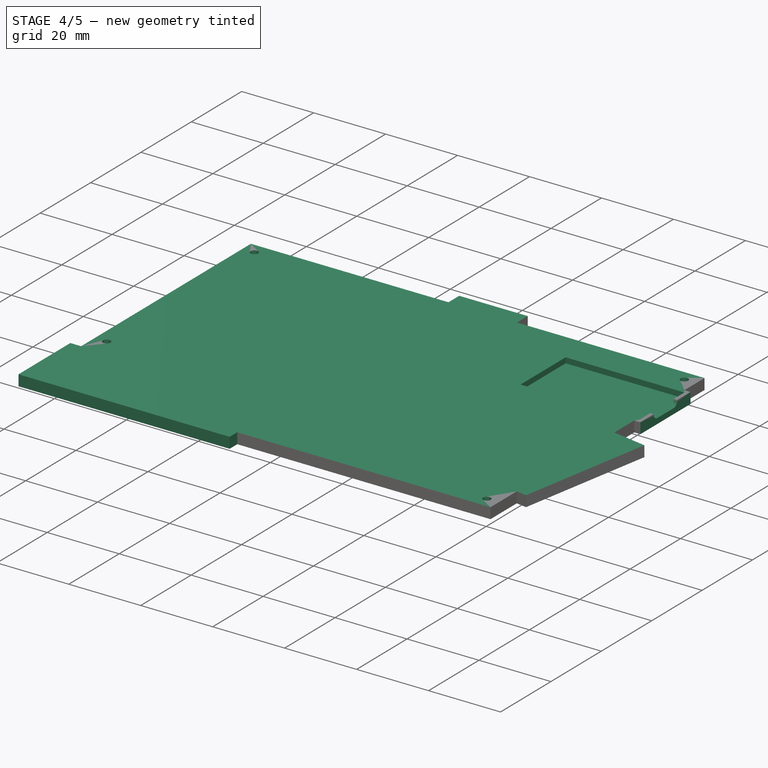
[diagram: stage 4 of 5 — iso view after this stage's code; geometry added in this stage tinted green]
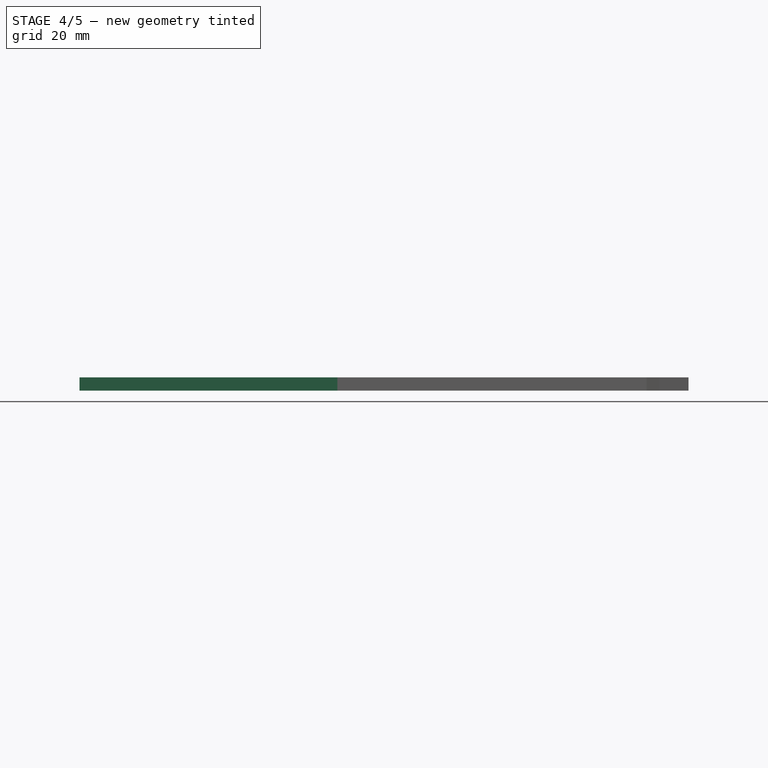
[diagram: stage 4 of 5 — front view after this stage's code; geometry added in this stage tinted green]
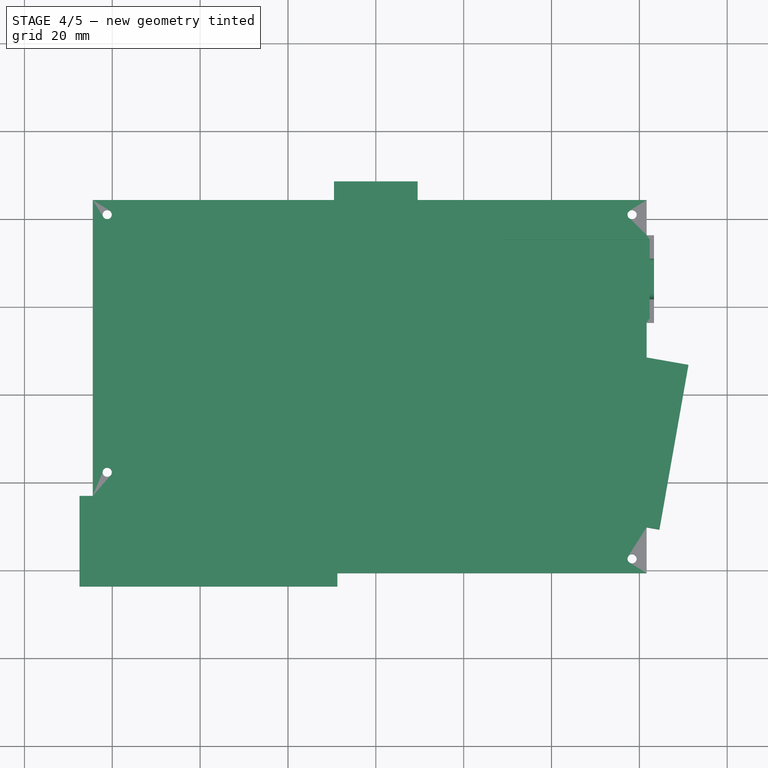
[diagram: stage 4 of 5 — top view after this stage's code; geometry added in this stage tinted green]
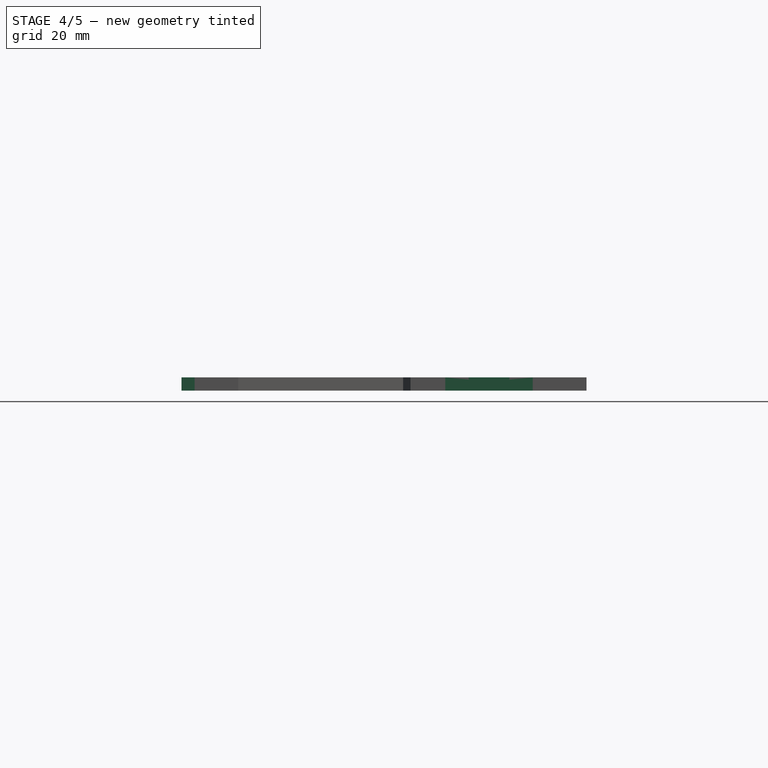
[diagram: stage 4 of 5 — right view after this stage's code; geometry added in this stage tinted green]
FEATURE [PartDesign::Fillet] Fillet001
  Base = -> Pocket006 [Edge193,Edge72,Edge195,Edge201,Edge203,Edge147,Edge76,Edge140,Edge141]
  BaseFeature = -> Pocket006
  Radius = 1
  Refine = true
  SupportTransform = false
  Suppressed = false
  UseAllEdges = false
FEATURE [PartDesign::Body] Body001  label="Top"
  AllowCompound = false
  Group = -> [Binder,Sketch029,Pad013,Sketch030,Pocket001,Sketch031,Pocket002,Sketch032,Pad014,Sketch033,Pad015,Sketch034,Pocket003,Sketch035,Pocket004,Sketch036,Pad016,Sketch037,Pocket005,Sketch038,Pocket006,Fillet001]
  Origin = -> Origin003
  Tip = -> Fillet001
FEATURE [PartDesign::SubShapeBinder] Binder001
  BindCopyOnChange = 0
  BindMode = 0
  ClaimChildren = false
  Context = -> Part [Body002.Binder001.]
  Fuse = false
  MakeFace = true
  OffsetFill = false
  OffsetIntersection = false
  OffsetJoinType = 0
  OffsetOpenResult = false
  PartialLoad = false
  Refine = true
  Relative = true
  Support = -> [Body]
  _Version = 2
FEATURE [PartDesign::SubShapeBinder] Binder002
  BindCopyOnChange = 0
  BindMode = 0
  ClaimChildren = false
  Context = -> Part [Body002.Binder002.]
  Fuse = false
  MakeFace = true
  OffsetFill = false
  OffsetIntersection = false
  OffsetJoinType = 0
  OffsetOpenResult = false
  PartialLoad = false
  Refine = true
  Relative = true
  Support = -> [Body001]
  _Version = 2
FEATURE [Sketcher::SketchObject] Sketch039  label="BottomRef"
  ArcFitTolerance = 1e-06
  AttachmentSupport = -> [XY_Plane004]
  ExternalGeometry = -> [Binder002,Binder001]
  FullyConstrained = true
  MakeInternals = false
  MapMode = 5
  sketch-geometry (16):
    g0: LineSegment [constr] StartX=-67.65 StartY=-63.84 StartZ=0 EndX=-67.65 EndY=-42.84 EndZ=0
    g1: LineSegment [constr] StartX=-67.65 StartY=-42.84 StartZ=0 EndX=-64.65 EndY=-42.84 EndZ=0
    g2: LineSegment [constr] StartX=-64.65 StartY=-42.84 StartZ=0 EndX=-64.65 EndY=24.525 EndZ=0
    g3: LineSegment [constr] StartX=-64.65 StartY=24.525 StartZ=0 EndX=-9.725 EndY=24.525 EndZ=0
    g4: LineSegment [constr] StartX=-9.725 StartY=24.525 StartZ=0 EndX=-9.725 EndY=28.775 EndZ=0
    g5: LineSegment [constr] StartX=-9.725 StartY=28.775 StartZ=0 EndX=9.725 EndY=28.775 EndZ=0
    g6: LineSegment [constr] StartX=9.725 StartY=28.775 StartZ=0 EndX=9.725 EndY=24.525 EndZ=0
    g7: LineSegment [constr] StartX=9.725 StartY=24.525 StartZ=0 EndX=61.8429 EndY=24.525 EndZ=0
    g8: LineSegment [constr] StartX=61.8429 StartY=24.525 StartZ=0 EndX=61.8429 EndY=-11.3422 EndZ=0
    g9: LineSegment [constr] StartX=61.8429 StartY=-11.3422 StartZ=0 EndX=71.406 EndY=-13.0284 EndZ=0
    g10: LineSegment [constr] StartX=71.406 StartY=-13.0284 StartZ=0 EndX=64.7206 EndY=-50.9435 EndZ=0
    g11: LineSegment [constr] StartX=64.7206 StartY=-50.9435 StartZ=0 EndX=61.8429 EndY=-50.4361 EndZ=0
    g12: LineSegment [constr] StartX=61.8429 StartY=-50.4361 StartZ=0 EndX=61.8429 EndY=-60.84 EndZ=0
    g13: LineSegment [constr] StartX=61.8429 StartY=-60.84 StartZ=0 EndX=-8.55 EndY=-60.84 EndZ=0
    g14: LineSegment [constr] StartX=-8.55 StartY=-60.84 StartZ=0 EndX=-8.55 EndY=-63.84 EndZ=0
    g15: LineSegment [constr] StartX=-8.55 StartY=-63.84 StartZ=0 EndX=-67.65 EndY=-63.84 EndZ=0
  constraints (42):
    c: Coincident(g0,g-12)
    c: Coincident(g0,g-11)
    c: Coincident(g1,g0)
    c: Horizontal(g1)
    c: Coincident(g1,g2)
    c: Coincident(g2,g-4)
    c: Vertical(g2)
    c: Coincident(g2,g3)
    c: Coincident(g3,g-5)
    c: Coincident(g3,g4)
    c: Coincident(g4,g-5)
    c: Coincident(g4,g5)
    c: Coincident(g5,g-6)
    c: Coincident(g5,g6)
    c: Coincident(g6,g-6)
    c: Coincident(g6,g7)
    c: Coincident(g7,g-7)
    c: Coincident(g7,g8)
    c: Coincident(g8,g-8)
    c: Coincident(g8,g9)
    c: Coincident(g9,g-8)
    c: Coincident(g9,g10)
    c: Coincident(g10,g-9)
    c: Coincident(g10,g11)
    c: Coincident(g11,g-9)
    c: Coincident(g11,g12)
    c: Coincident(g12,g-10)
    c: Coincident(g12,g13)
    c: Horizontal(g13)
    c: Coincident(g13,g14)
    c: Coincident(g14,g-12)
    c: Vertical(g14)
    c: Coincident(g14,g15)
    c: Coincident(g15,g0)
    c: Distance(g-1,g2) = 64.65  'Ref1'
    c: Distance(g-1,g13) = 60.84  'Ref2'
    c: Distance(g-13,g-14) = 38.1
    c: Distance(g-1,g-15) = 28.575  'Ref3'
    c: DistanceY(g4,g4) = 4.25  'Ref4'
    c: DistanceX(g13,g13) = 70.3929  'Ref5'
    c: Distance(g-14,g7) = 37.7156  'Ref6'
    c: DistanceX(g7,g-14) = 9.33144  'Ref7'
FEATURE [Sketcher::SketchObject] Sketch040
  ArcFitTolerance = 1e-06
  AttachmentOffset = pos=(0,0,0) rot=(1,0,0;3.14159rad)
  AttachmentSupport = -> [Binder002]
  FullyConstrained = true
  MakeInternals = false
  MapMode = 5
  Placement = pos=(0,0,-8) rot=(0,0,1;0rad)
  expr: Constraints[25] = <<BottomRef>>.Constraints.Ref1 - <<CaseVars>>.clearance
  expr: Constraints[27] = <<CaseVars>>.thumbOffset
  expr: Constraints[28] = <<Layout>>.Constraints.thumbH - <<CaseVars>>.thumbWallThick * 2 - <<CaseVars>>.clearance * 2
  expr: Constraints[29] = <<Layout>>.Constraints.thumbV - <<CaseVars>>.thumbWallThick * 2 - <<CaseVars>>.clearance * 2
  expr: Constraints[32] = <<LayoutVars>>.mrAngle + <<LayoutVars>>.rpAngle
  expr: Constraints[36] = <<LayoutVars>>.spacingH
  expr: Constraints[37] = <<BottomRef>>.Constraints.Ref2 - <<CaseVars>>.clearance
  expr: Constraints[38] = <<LayoutVars>>.spacingV * 2
  expr: Constraints[39] = <<BottomRef>>.Constraints.Ref3
  expr: Constraints[40] = <<BottomRef>>.Constraints.Ref4
  expr: Constraints[42] = <<BottomRef>>.Constraints.Ref5
  expr: Constraints[43] = <<BottomRef>>.Constraints.Ref7 + <<CaseVars>>.clearance
  expr: Constraints[44] = <<BottomRef>>.Constraints.Ref6 - <<CaseVars>>.clearance
  sketch-geometry (16):
    g0: LineSegment StartX=-64.45 StartY=24.325 StartZ=0 EndX=-64.45 EndY=-43.04 EndZ=0
    g1: LineSegment StartX=-64.45 StartY=-43.04 StartZ=0 EndX=-67.45 EndY=-43.04 EndZ=0
    g2: LineSegment StartX=-67.45 StartY=-43.04 StartZ=0 EndX=-67.45 EndY=-63.64 EndZ=0
    g3: LineSegment StartX=-67.45 StartY=-63.64 StartZ=0 EndX=-8.75 EndY=-63.64 EndZ=0
    g4: LineSegment StartX=-8.75 StartY=-63.64 StartZ=0 EndX=-8.75 EndY=-60.64 EndZ=0
    g5: LineSegment StartX=-8.75 StartY=-60.64 StartZ=0 EndX=61.6429 EndY=-60.64 EndZ=0
    g6: LineSegment StartX=61.6429 StartY=-60.64 StartZ=0 EndX=61.6429 EndY=-50.1977 EndZ=0
    g7: LineSegment StartX=61.6429 StartY=-50.1977 StartZ=0 EndX=64.5583 EndY=-50.7118 EndZ=0
    g8: LineSegment StartX=64.5583 StartY=-50.7118 StartZ=0 EndX=71.1743 EndY=-13.1906 EndZ=0
    g9: LineSegment StartX=71.1743 StartY=-13.1906 StartZ=0 EndX=61.6429 EndY=-11.51 EndZ=0
    g10: LineSegment StartX=61.6429 StartY=-11.51 StartZ=0 EndX=61.6429 EndY=24.325 EndZ=0
    g11: LineSegment StartX=61.6429 StartY=24.325 StartZ=0 EndX=9.525 EndY=24.325 EndZ=0
    g12: LineSegment StartX=9.525 StartY=24.325 StartZ=0 EndX=9.525 EndY=28.575 EndZ=0
    g13: LineSegment StartX=9.525 StartY=28.575 StartZ=0 EndX=-9.525 EndY=28.575 EndZ=0
    g14: LineSegment StartX=-9.525 StartY=28.575 StartZ=0 EndX=-9.525 EndY=24.325 EndZ=0
    g15: LineSegment StartX=-9.525 StartY=24.325 StartZ=0 EndX=-64.45 EndY=24.325 EndZ=0
  constraints (45):
    c: Vertical(g0)
    c: Coincident(g0,g1)
    c: Horizontal(g1)
    c: Coincident(g1,g2)
    c: Vertical(g2)
    c: Coincident(g2,g3)
    c: Horizontal(g3)
    c: Coincident(g3,g4)
    c: Vertical(g4)
    c: Coincident(g4,g5)
    c: Horizontal(g5)
    c: Coincident(g5,g6)
    c: Vertical(g6)
    c: Coincident(g6,g7)
    c: Coincident(g7,g8)
    c: Coincident(g8,g9)
    c: Coincident(g9,g10)
    c: Coincident(g10,g11)
    c: Coincident(g11,g12)
    c: Vertical(g12)
    c: Coincident(g12,g13)
    c: Horizontal(g13)
    c: Coincident(g13,g14)
    c: Coincident(g14,g15)
    c: Coincident(g15,g0)
    c: Distance(g0,g-2) = 64.45
    c: Equal(g1,g4)
    c: Distance(g1,g1) = 3
    c: DistanceX(g3,g3) = 58.7
    c: Distance(g2,g2) = 20.6
    c: Perpendicular(g8,g7)
    c: Perpendicular(g8,g9)
    c: Angle(g8,g6) = 0.174533
    c: Tangent(g11,g15)
    c: Tangent(g10,g6)
    c: Vertical(g14)
    c: Distance(g13,g13) = 19.05
    c: Distance(g-1,g5) = 60.64
    c: Distance(g8,g8) = 38.1
    c: Distance(g-1,g13) = 28.575
    c: Distance(g14,g14) = 4.25
    c: Symmetric(g11,g14,g-2)
    c: DistanceX(g5,g5) = 70.3929
    c: DistanceX(g10,g8) = 9.53144
    c: DistanceY(g8,g10) = 37.5156
FEATURE [PartDesign::Pad] Pad017
  Direction = (0,1e-16,1)
  Length = 3
  Length2 = 10
  Profile = -> Sketch040
  ReferenceAxis = -> Sketch040 [N_Axis]
  Refine = true
  Reversed = true
  Suppressed = false
  Type = 0
  expr: Length = <<CaseVars>>.bottomThick
FEATURE [Sketcher::SketchObject] Sketch041
  ArcFitTolerance = 1e-06
  AttachmentSupport = -> [Pad017]
  ExternalGeometry = -> [Binder002]
  FullyConstrained = true
  MakeInternals = false
  MapMode = 5
  Placement = pos=(0,0,-8) rot=(0,0,1;0rad)
  sketch-geometry (4):
    g0: Circle CenterX=-61.15 CenterY=21.025 CenterZ=0 NormalX=0 NormalY=0 NormalZ=1 AngleXU=0 Radius=1.05
    g1: Circle CenterX=-61.15 CenterY=-37.64 CenterZ=0 NormalX=0 NormalY=0 NormalZ=1 AngleXU=0 Radius=1.05
    g2: Circle CenterX=58.3429 CenterY=21.025 CenterZ=0 NormalX=0 NormalY=0 NormalZ=1 AngleXU=0 Radius=1.05
    g3: Circle CenterX=58.3429 CenterY=-57.34 CenterZ=0 NormalX=0 NormalY=0 NormalZ=1 AngleXU=0 Radius=1.05
  constraints (8):
    c: Equal(g0,g1)
    c: Equal(g1,g2)
    c: Equal(g2,g3)
    c: Diameter(g0) = 2.1
    c: Coincident(g0,g-3)
    c: Coincident(g1,g-4)
    c: Coincident(g2,g-5)
    c: Coincident(g3,g-6)
FEATURE [PartDesign::Pocket] Pocket007  label="Screws"
  BaseFeature = -> Pad017
  Direction = (0,0,-1)
  Length = 5
  Length2 = 5
  Profile = -> Sketch041
  ReferenceAxis = -> Sketch041 [N_Axis]
  Refine = true
  Suppressed = false
  Type = 1
FEATURE [Sketcher::SketchObject] Sketch042
  ArcFitTolerance = 1e-06
  AttachmentOffset = pos=(-0.2,0,0) rot=(0,0,1;0rad)
  AttachmentSupport = -> [Binder002]
  FullyConstrained = true
  MakeInternals = false
  MapMode = 1
  Placement = pos=(61.6429,16.525,-11) rot=(0.57735,0.57735,0.57735;2.0944rad)
  expr: .AttachmentOffset.Base.x = -<<CaseVars>>.clearance
  expr: Constraints[10] = <<CaseVars>>.bottomThick
  expr: Constraints[9] = 19.9 mm / 2 + <<CaseVars>>.clearance
  sketch-geometry (16):
    g0: LineSegment StartX=-0.2 StartY=0 StartZ=0 EndX=-0.2 EndY=3 EndZ=0
    g1: LineSegment StartX=-20.1 StartY=3 StartZ=0 EndX=-20.1 EndY=0 EndZ=0
    g2: LineSegment StartX=-20.1 StartY=0 StartZ=0 EndX=-0.2 EndY=0 EndZ=0
    g3: LineSegment [constr] StartX=-10.15 StartY=0 StartZ=0 EndX=0 EndY=0 EndZ=0
    g4: LineSegment StartX=-20.1 StartY=3 StartZ=0 EndX=-14.8 EndY=3 EndZ=0
    g5: LineSegment StartX=-0.2 StartY=3 StartZ=0 EndX=-5.5 EndY=3 EndZ=0
    g6: LineSegment StartX=-14.8 StartY=3 StartZ=0 EndX=-14.8 EndY=2.9 EndZ=0
    g7: ArcOfCircle CenterX=-13.4 CenterY=2.9 CenterZ=0 NormalX=0 NormalY=0 NormalZ=1 AngleXU=0 Radius=1.4 StartAngle=3.14159 EndAngle=4.71239
    g8: LineSegment StartX=-13.4 StartY=1.5 StartZ=0 EndX=-6.9 EndY=1.5 EndZ=0
    g9: ArcOfCircle CenterX=-6.9 CenterY=2.9 CenterZ=0 NormalX=0 NormalY=0 NormalZ=1 AngleXU=0 Radius=1.4 StartAngle=4.71239 EndAngle=6.28319
    g10: LineSegment StartX=-5.5 StartY=2.9 StartZ=0 EndX=-5.5 EndY=3 EndZ=0
    g11: LineSegment [constr] StartX=-14.8 StartY=3 StartZ=0 EndX=-14.8 EndY=3.6 EndZ=0
    g12: LineSegment [constr] StartX=-13.4 StartY=5 StartZ=0 EndX=-6.9 EndY=5 EndZ=0
    g13: LineSegment [constr] StartX=-5.5 StartY=3 StartZ=0 EndX=-5.5 EndY=3.6 EndZ=0
    g14: ArcOfCircle [constr] CenterX=-6.9 CenterY=3.6 CenterZ=0 NormalX=0 NormalY=0 NormalZ=1 AngleXU=0 Radius=1.4 StartAngle=0 EndAngle=1.5708
    g15: ArcOfCircle [constr] CenterX=-13.4 CenterY=3.6 CenterZ=0 NormalX=0 NormalY=0 NormalZ=1 AngleXU=0 Radius=1.4 StartAngle=1.5708 EndAngle=3.14159
  constraints (41):
    c: Coincident(g1,g2)
    c: Coincident(g2,g0)
    c: Vertical(g0)
    c: Vertical(g1)
    c: Horizontal(g2)
    c: PointOnObject(g0,g-1)
    c: Symmetric(g2,g2,g3)
    c: Coincident(g3,g-1)
    c: Distance(g0,g1) = 19.9
    c: Distance(g3,g3) = 10.15
    c: Distance(g1,g1) = 3
    c: Coincident(g4,g1)
    c: Horizontal(g4)
    c: Coincident(g5,g0)
    c: Coincident(g4,g6)
    c: Vertical(g6)
    c: Tangent(g6,g7) = -1.5708
    c: Tangent(g7,g8) = -1.5708
    c: Tangent(g8,g9) = -1.5708
    c: Tangent(g9,g10) = -1.5708
    c: Coincident(g10,g5)
    c: Tangent(g5,g4)
    c: Vertical(g10)
    c: Horizontal(g8)
    c: Equal(g10,g6)
    c: Radius(g7) = 1.4
    c: Coincident(g11,g4)
    c: Vertical(g11)
    c: Horizontal(g12)
    c: Coincident(g13,g5)
    c: Vertical(g13)
    c: Tangent(g15,g12) = 1.5708
    c: Tangent(g14,g12) = 1.5708
    c: Tangent(g14,g13) = -1.5708
    c: Tangent(g15,g11) = 1.5708
    c: Equal(g12,g8)
    c: Equal(g15,g14)
    c: Distance(g8,g12) = 3.5
    c: Distance(g11,g13) = 9.3
    c: Equal(g5,g4)
    c: Distance(g5,g8) = 1.5
FEATURE [PartDesign::Pad] Pad018  label="USB"
  BaseFeature = -> Pocket007
  Direction = (1,1e-16,-1e-16)
  Length = 1.7
  Length2 = 10
  Profile = -> Sketch042
  ReferenceAxis = -> Sketch042 [N_Axis]
  Refine = true
  Suppressed = false
  Type = 0
  expr: Length = <<CaseVars>>.clearance + <<CaseVars>>.outerWallWidth
FEATURE [Sketcher::SketchObject] Sketch043
  ArcFitTolerance = 1e-06
  AttachmentSupport = -> [Pad018]
  FullyConstrained = true
  MakeInternals = false
  MapMode = 1
  Placement = pos=(63.3429,16.325,-8) rot=(0,0,1;0rad)
  expr: Constraints[17] = VarSet001.mcuL
  expr: Constraints[8] = VarSet001.mcuW
  sketch-geometry (6):
    g0: LineSegment StartX=-34 StartY=-1 StartZ=0 EndX=-34 EndY=-18.9 EndZ=0
    g1: LineSegment StartX=-34 StartY=-18.9 StartZ=0 EndX=-1 EndY=-18.9 EndZ=0
    g2: LineSegment StartX=-1 StartY=-18.9 StartZ=0 EndX=-1 EndY=-1 EndZ=0
    g3: LineSegment StartX=-1 StartY=-1 StartZ=0 EndX=-34 EndY=-1 EndZ=0
    g4: LineSegment [constr] StartX=-1 StartY=-1 StartZ=0 EndX=-1 EndY=0 EndZ=0
    g5: LineSegment [constr] StartX=-1 StartY=-1 StartZ=0 EndX=0 EndY=-1 EndZ=0
  constraints (18):
    c: Coincident(g0,g1)
    c: Coincident(g1,g2)
    c: Coincident(g2,g3)
    c: Coincident(g3,g0)
    c: Vertical(g0)
    c: Vertical(g2)
    c: Horizontal(g1)
    c: Horizontal(g3)
    c: Distance(g2,g2) = 17.9
    c: Coincident(g4,g2)
    c: PointOnObject(g4,g-1)
    c: Vertical(g4)
    c: Coincident(g5,g2)
    c: PointOnObject(g5,g-2)
    c: Horizontal(g5)
    c: Equal(g5,g4)
    c: Distance(g4,g4) = 1
    c: Distance(g1,g1) = 33
FEATURE [PartDesign::Pocket] Pocket008  label="MCU"
  BaseFeature = -> Pad018
  Direction = (0,0,-1)
  Length = 1.5
  Length2 = 5
  Profile = -> Sketch043
  ReferenceAxis = -> Sketch043 [N_Axis]
  Refine = true
  Suppressed = false
  Type = 0
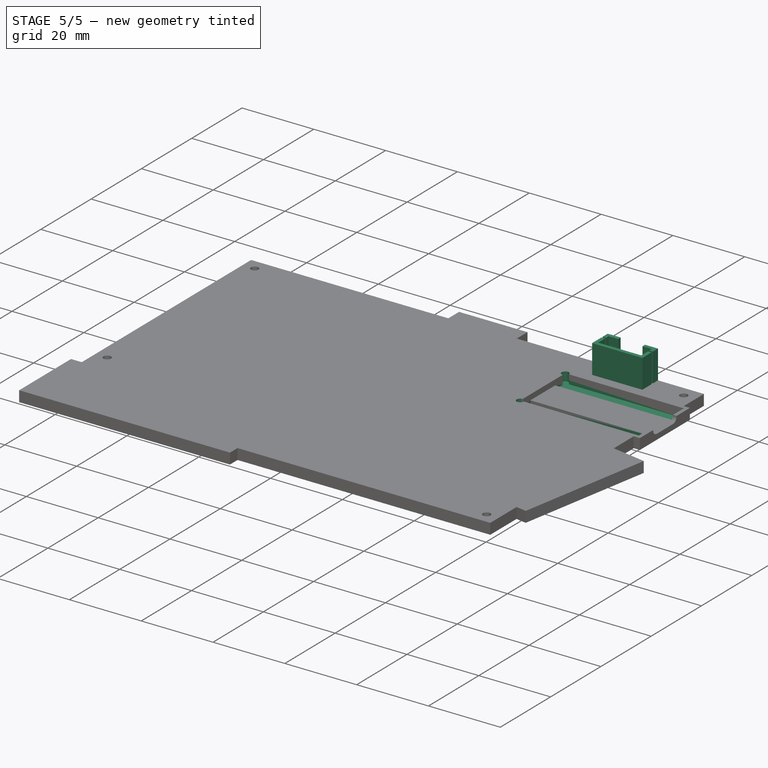
[diagram: stage 5 of 5 — iso view after this stage's code; geometry added in this stage tinted green]
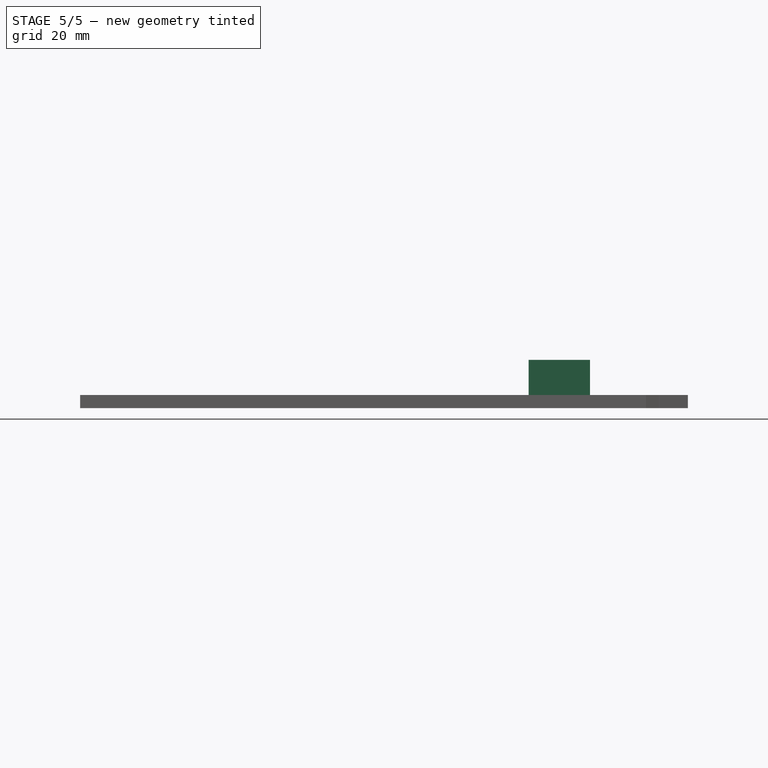
[diagram: stage 5 of 5 — front view after this stage's code; geometry added in this stage tinted green]
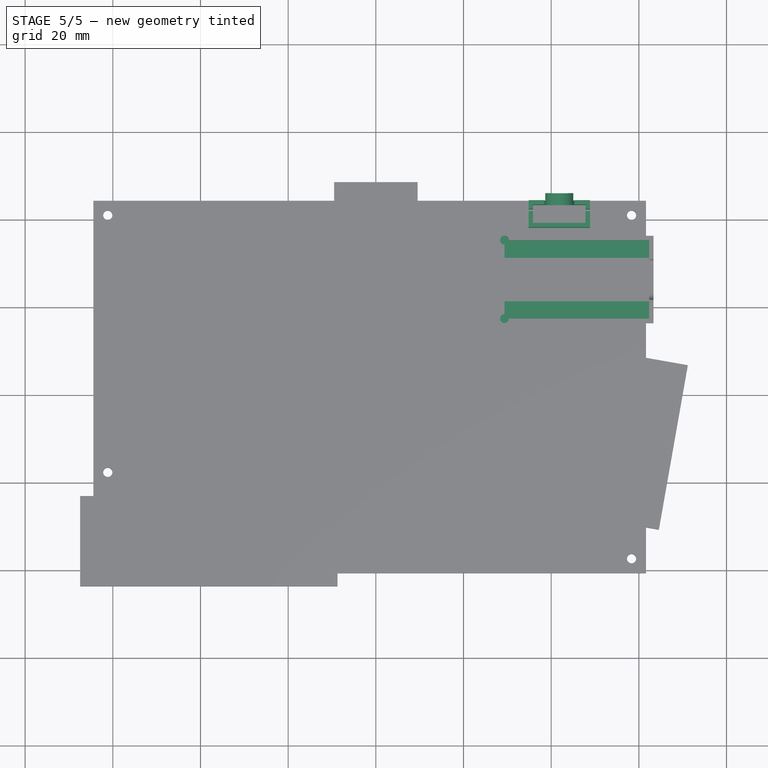
[diagram: stage 5 of 5 — top view after this stage's code; geometry added in this stage tinted green]
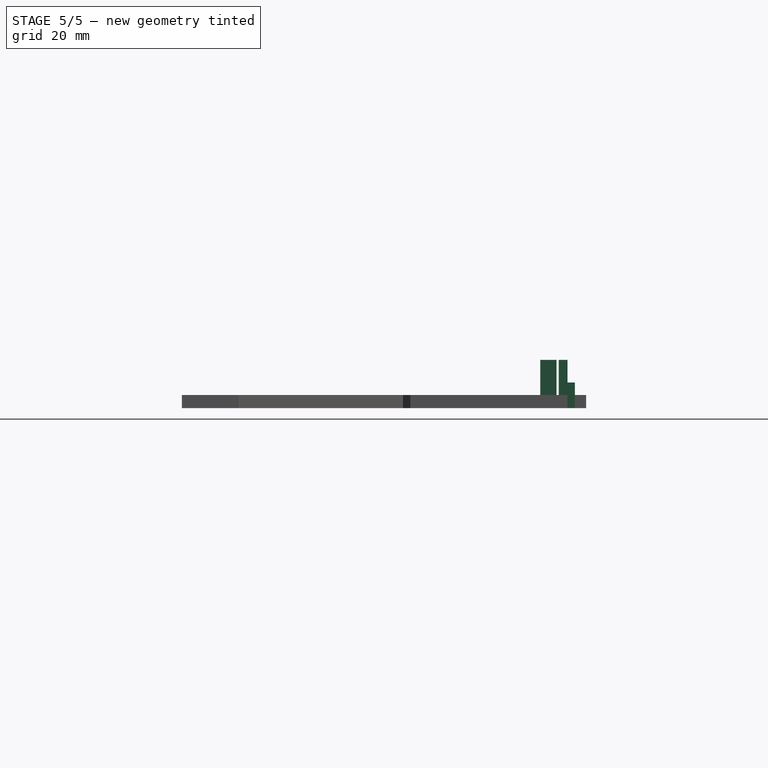
[diagram: stage 5 of 5 — right view after this stage's code; geometry added in this stage tinted green]
FEATURE [Sketcher::SketchObject] Sketch044
  ArcFitTolerance = 1e-06
  AttachmentSupport = -> [Pocket008]
  ExternalGeometry = -> [Pocket008]
  FullyConstrained = true
  MakeInternals = false
  MapMode = 5
  Placement = pos=(0,0,-8) rot=(0,0,1;0rad)
  sketch-geometry (10):
    g0: ArcOfCircle CenterX=29.3429 CenterY=15.325 CenterZ=0 NormalX=0 NormalY=0 NormalZ=1 AngleXU=0 Radius=1 StartAngle=6.28318 EndAngle=10.9956
    g1: ArcOfCircle CenterX=29.3429 CenterY=-2.575 CenterZ=0 NormalX=0 NormalY=0 NormalZ=1 AngleXU=0 Radius=1 StartAngle=1.5708 EndAngle=6.28318
    g2: LineSegment StartX=30.3429 StartY=15.325 StartZ=0 EndX=62.3429 EndY=15.325 EndZ=0
    g3: LineSegment StartX=62.3429 StartY=-2.575 StartZ=0 EndX=30.3429 EndY=-2.575 EndZ=0
    g4: LineSegment StartX=29.3429 StartY=14.325 StartZ=0 EndX=29.3429 EndY=11.325 EndZ=0
    g5: LineSegment StartX=29.3429 StartY=11.325 StartZ=0 EndX=62.3429 EndY=11.325 EndZ=0
    g6: LineSegment StartX=62.3429 StartY=11.325 StartZ=0 EndX=62.3429 EndY=15.325 EndZ=0
    g7: LineSegment StartX=62.3429 StartY=-2.575 StartZ=0 EndX=62.3429 EndY=1.425 EndZ=0
    g8: LineSegment StartX=62.3429 StartY=1.425 StartZ=0 EndX=29.3429 EndY=1.425 EndZ=0
    g9: LineSegment StartX=29.3429 StartY=1.425 StartZ=0 EndX=29.3429 EndY=-1.575 EndZ=0
  constraints (28):
    c: Coincident(g0,g-3)
    c: PointOnObject(g0,g-3)
    c: Coincident(g1,g-3)
    c: PointOnObject(g1,g-3)
    c: Equal(g1,g0)
    c: Coincident(g2,g0)
    c: Coincident(g2,g-4)
    c: Horizontal(g2)
    c: Coincident(g3,g1)
    c: Horizontal(g3)
    c: Coincident(g4,g0)
    c: PointOnObject(g4,g-3)
    c: Coincident(g5,g4)
    c: PointOnObject(g5,g-4)
    c: Horizontal(g5)
    c: Coincident(g6,g5)
    c: Coincident(g6,g2)
    c: Coincident(g7,g3)
    c: PointOnObject(g7,g-4)
    c: Coincident(g8,g7)
    c: PointOnObject(g8,g-3)
    c: Horizontal(g8)
    c: Coincident(g9,g8)
    c: Coincident(g9,g1)
    c: Equal(g6,g7)
    c: Distance(g6,g6) = 4
    c: Radius(g0) = 1
    c: Coincident(g3,g-4)
FEATURE [PartDesign::Pocket] Pocket009  label="Pins"
  BaseFeature = -> Pocket008
  Direction = (0,0,-1)
  Length = 5
  Length2 = 5
  Offset = 1
  Profile = -> Sketch044
  ReferenceAxis = -> Sketch044 [N_Axis]
  Refine = true
  Suppressed = false
  Type = 2
FEATURE [Sketcher::SketchObject] Sketch045
  ArcFitTolerance = 1e-06
  AttachmentOffset = pos=(0,-0.2,0) rot=(0,0,1;0rad)
  AttachmentSupport = -> [Binder002]
  FullyConstrained = true
  MakeInternals = false
  MapMode = 1
  Placement = pos=(38.4429,24.325,-11) rot=(1,0,0;1.5708rad)
  expr: .AttachmentOffset.Base.y = -<<CaseVars>>.clearance
  sketch-geometry (4):
    g0: LineSegment StartX=0.2 StartY=0 StartZ=0 EndX=6.6 EndY=0 EndZ=0
    g1: LineSegment StartX=6.6 StartY=0 StartZ=0 EndX=6.6 EndY=7 EndZ=0
    g2: LineSegment StartX=6.6 StartY=7 StartZ=0 EndX=0.2 EndY=7 EndZ=0
    g3: LineSegment StartX=0.2 StartY=7 StartZ=0 EndX=0.2 EndY=0 EndZ=0
  constraints (12):
    c: Coincident(g0,g1)
    c: Coincident(g1,g2)
    c: Coincident(g2,g3)
    c: Coincident(g3,g0)
    c: Horizontal(g0)
    c: Horizontal(g2)
    c: Vertical(g1)
    c: Vertical(g3)
    c: PointOnObject(g0,g-1)
    c: Distance(g0,g0) = 6.4
    c: Distance(g0,g-1) = 0.2
    c: Distance(g1,g1) = 7
FEATURE [PartDesign::Pad] Pad019  label="PowerButton"
  BaseFeature = -> Pocket009
  Direction = (0,-1,2e-16)
  Length = 1.7
  Length2 = 10
  Profile = -> Sketch045
  ReferenceAxis = -> Sketch045 [N_Axis]
  Refine = true
  Reversed = true
  Suppressed = false
  Type = 0
  expr: Length = <<CaseVars>>.clearance + <<CaseVars>>.outerWallWidth
FEATURE [Sketcher::SketchObject] Sketch046
  ArcFitTolerance = 1e-06
  AttachmentSupport = -> [Pad019]
  FullyConstrained = true
  MakeInternals = false
  MapMode = 1
  Placement = pos=(45.0429,24.325,-8) rot=(0,0,1;0rad)
  sketch-geometry (19):
    g0: LineSegment StartX=-9.2 StartY=-1 StartZ=0 EndX=-9.2 EndY=-2 EndZ=0
    g1: LineSegment StartX=-9.2 StartY=-2 StartZ=0 EndX=-10.2 EndY=-2 EndZ=0
    g2: LineSegment StartX=-10.2 StartY=-2 StartZ=0 EndX=-10.2 EndY=0 EndZ=0
    g3: LineSegment StartX=-10.2 StartY=0 StartZ=0 EndX=3.8 EndY=0 EndZ=0
    g4: LineSegment StartX=3.8 StartY=0 StartZ=0 EndX=3.8 EndY=-2 EndZ=0
    g5: LineSegment StartX=3.8 StartY=-2 StartZ=0 EndX=2.8 EndY=-2 EndZ=0
    g6: LineSegment StartX=2.8 StartY=-2 StartZ=0 EndX=2.8 EndY=-1 EndZ=0
    g7: LineSegment StartX=2.8 StartY=-1 StartZ=0 EndX=-9.2 EndY=-1 EndZ=0
    g8: LineSegment StartX=-10.2 StartY=-2.5 StartZ=0 EndX=-9.2 EndY=-2.5 EndZ=0
    g9: LineSegment StartX=-9.2 StartY=-2.5 StartZ=0 EndX=-9.2 EndY=-5.2 EndZ=0
    g10: LineSegment StartX=-9.2 StartY=-5.2 StartZ=0 EndX=2.8 EndY=-5.2 EndZ=0
    g11: LineSegment StartX=2.8 StartY=-5.2 StartZ=0 EndX=2.8 EndY=-2.5 EndZ=0
    g12: LineSegment StartX=2.8 StartY=-2.5 StartZ=0 EndX=3.8 EndY=-2.5 EndZ=0
    g13: LineSegment StartX=3.8 StartY=-2.5 StartZ=0 EndX=3.8 EndY=-6.2 EndZ=0
    g14: LineSegment StartX=3.8 StartY=-6.2 StartZ=0 EndX=-10.2 EndY=-6.2 EndZ=0
    g15: LineSegment StartX=-10.2 StartY=-6.2 StartZ=0 EndX=-10.2 EndY=-2.5 EndZ=0
    g16: GeomPoint [constr] X=-3.2 Y=-3.1 Z=0
    g17: LineSegment [constr] StartX=-3.2 StartY=-1 StartZ=0 EndX=-3.2 EndY=0 EndZ=0
    g18: GeomPoint [constr] X=0 Y=0 Z=0
  constraints (49):
    c: Coincident(g0,g1)
    c: Coincident(g1,g2)
    c: Coincident(g2,g3)
    c: Horizontal(g3)
    c: Coincident(g3,g4)
    c: Coincident(g4,g5)
    c: Horizontal(g5)
    c: Coincident(g5,g6)
    c: Vertical(g6)
    c: Coincident(g6,g7)
    c: Coincident(g7,g0)
    c: Horizontal(g7)
    c: Coincident(g8,g9)
    c: Coincident(g9,g10)
    c: Coincident(g10,g11)
    c: Coincident(g11,g12)
    c: Coincident(g12,g13)
    c: Coincident(g13,g14)
    c: Coincident(g14,g15)
    c: Coincident(g15,g8)
    c: Horizontal(g8)
    c: Horizontal(g12)
    c: Horizontal(g1)
    c: Horizontal(g14)
    c: Vertical(g11)
    c: Vertical(g13)
    c: Vertical(g9)
    c: Vertical(g15)
    c: Vertical(g2)
    c: Vertical(g0)
    c: Equal(g5,g12)
    c: Equal(g8,g1)
    c: Equal(g0,g6)
    c: Symmetric(g0,g10,g16)
    c: Symmetric(g3,g14,g16)
    c: Symmetric(g6,g9,g16)
    c: Tangent(g13,g4)
    c: Equal(g11,g9)
    c: Distance(g10,g7) = 4.2
    c: DistanceX(g10,g10) = 12
    c: Distance(g12,g12) = 1
    c: Distance(g5,g12) = 0.5
    c: Symmetric(g7,g7,g17)
    c: Symmetric(g3,g3,g17)
    c: Equal(g17,g5)
    c: Equal(g6,g5)
    c: PointOnObject(g18,g3)
    c: Distance(g18,g17) = 3.2
    c: Coincident(g18,g-1)
FEATURE [PartDesign::Pad] Pad020
  BaseFeature = -> Pad019
  Direction = (0,0,1)
  Length = 8
  Length2 = 10
  Profile = -> Sketch046
  ReferenceAxis = -> Sketch046 [N_Axis]
  Refine = true
  Suppressed = false
  Type = 0
FEATURE [Sketcher::SketchObject] Sketch047
  ArcFitTolerance = 1e-06
  AttachmentSupport = -> [Pad020]
  ExternalGeometry = -> [Binder002,Pad020]
  FullyConstrained = true
  MakeInternals = false
  MapMode = 5
  Placement = pos=(0,26.025,0) rot=(0,0.707107,0.707107;3.14159rad)
  sketch-geometry (4):
    g0: ArcOfCircle CenterX=-41.8429 CenterY=-4 CenterZ=0 NormalX=0 NormalY=0 NormalZ=1 AngleXU=0 Radius=3.4 StartAngle=3.14159 EndAngle=6.28319
    g1: LineSegment StartX=-45.2429 StartY=-4 StartZ=0 EndX=-45.2429 EndY=-5.3e-15 EndZ=0
    g2: LineSegment StartX=-45.2429 StartY=-5.3e-15 StartZ=0 EndX=-38.4429 EndY=-5.3e-15 EndZ=0
    g3: LineSegment StartX=-38.4429 StartY=-5.3e-15 StartZ=0 EndX=-38.4429 EndY=-4 EndZ=0
  constraints (10):
    c: Coincident(g0,g-3)
    c: Coincident(g0,g-3)
    c: Tangent(g0,g1) = 1.5708
    c: Coincident(g1,g2)
    c: PointOnObject(g2,g-4)
    c: Horizontal(g2)
    c: Coincident(g2,g3)
    c: Coincident(g3,g0)
    c: Vertical(g3)
    c: Vertical(g1)
FEATURE [PartDesign::Pocket] Pocket010
  BaseFeature = -> Pad020
  Direction = (0,-1,2e-16)
  Length = 0
  Length2 = 5
  Profile = -> Sketch047
  ReferenceAxis = -> Sketch047 [N_Axis]
  Refine = true
  Suppressed = false
  Type = 3
  UpToFace = -> Pad020 [Face46]
FEATURE [Sketcher::SketchObject] Sketch048
  ArcFitTolerance = 1e-06
  AttachmentSupport = -> [Pocket010]
  ExternalGeometry = -> [Pocket010]
  FullyConstrained = true
  MakeInternals = false
  MapMode = 5
  Placement = pos=(0,0,-11) rot=(1,0,0;3.14159rad)
  expr: Constraints[3] = VarSet001.feetDia
  sketch-geometry (12):
    g0: Circle CenterX=-59.45 CenterY=55.64 CenterZ=0 NormalX=0 NormalY=0 NormalZ=1 AngleXU=0 Radius=3.15
    g1: Circle CenterX=52.3429 CenterY=55.64 CenterZ=0 NormalX=0 NormalY=0 NormalZ=1 AngleXU=0 Radius=3.15
    g2: Circle CenterX=-55.15 CenterY=-19.325 CenterZ=0 NormalX=0 NormalY=0 NormalZ=1 AngleXU=0 Radius=3.15
    g3: Circle CenterX=52.3429 CenterY=-19.325 CenterZ=0 NormalX=0 NormalY=0 NormalZ=1 AngleXU=0 Radius=3.15
    g4: LineSegment [constr] StartX=-55.15 StartY=-19.325 StartZ=0 EndX=-55.15 EndY=-24.325 EndZ=0
    g5: LineSegment [constr] StartX=52.3429 StartY=-19.325 StartZ=0 EndX=52.3429 EndY=-24.325 EndZ=0
    g6: LineSegment [constr] StartX=52.3429 StartY=55.64 StartZ=0 EndX=52.3429 EndY=60.64 EndZ=0
    g7: LineSegment [constr] StartX=58.3429 StartY=57.34 StartZ=0 EndX=52.3429 EndY=57.34 EndZ=0
    g8: LineSegment [constr] StartX=58.3429 StartY=-21.025 StartZ=0 EndX=52.3429 EndY=-21.025 EndZ=0
    g9: LineSegment [constr] StartX=-61.15 StartY=-21.025 StartZ=0 EndX=-55.15 EndY=-21.025 EndZ=0
    g10: LineSegment [constr] StartX=-59.45 StartY=55.64 StartZ=0 EndX=-59.45 EndY=63.64 EndZ=0
    g11: LineSegment [constr] StartX=-59.45 StartY=55.64 StartZ=0 EndX=-67.45 EndY=55.64 EndZ=0
  constraints (36):
    c: Equal(g0,g1)
    c: Equal(g1,g2)
    c: Equal(g2,g3)
    c: Diameter(g0) = 6.3
    c: Coincident(g4,g2)
    c: PointOnObject(g4,g-9)
    c: Vertical(g4)
    c: Coincident(g5,g3)
    c: Vertical(g5)
    c: PointOnObject(g5,g-8)
    c: Coincident(g6,g1)
    c: PointOnObject(g6,g-6)
    c: Vertical(g6)
    c: Equal(g4,g5)
    c: Equal(g5,g6)
    c: Distance(g6,g6) = 5
    c: Coincident(g7,g-5)
    c: PointOnObject(g7,g6)
    c: Horizontal(g7)
    c: Coincident(g8,g-7)
    c: PointOnObject(g8,g5)
    c: Horizontal(g8)
    c: PointOnObject(g9,g4)
    c: Horizontal(g9)
    c: Coincident(g-10,g9)
    c: Equal(g9,g8)
    c: Equal(g8,g7)
    c: Distance(g9,g9) = 6
    c: Coincident(g10,g0)
    c: PointOnObject(g10,g-3)
    c: Vertical(g10)
    c: Coincident(g11,g0)
    c: PointOnObject(g11,g-4)
    c: Horizontal(g11)
    c: Equal(g11,g10)
    c: Distance(g11,g11) = 8
FEATURE [PartDesign::Pocket] Pocket011  label="Feet"
  BaseFeature = -> Pocket010
  Direction = (0,0,1)
  Length = 1
  Length2 = 5
  Profile = -> Sketch048
  ReferenceAxis = -> Sketch048 [N_Axis]
  Refine = true
  Suppressed = false
  Type = 0
FEATURE [PartDesign::Body] Body002  label="Bottom"
  AllowCompound = false
  Group = -> [Binder001,Binder002,Sketch039,Sketch040,Pad017,Sketch041,Pocket007,Sketch042,Pad018,Sketch043,Pocket008,Sketch044,Pocket009,Sketch045,Pad019,Sketch046,Pad020,Sketch047,Pocket010,Sketch048,Pocket011]
  Origin = -> Origin004
  Tip = -> Pocket011
FEATURE [App::Part] Part  label="Case"
  Group = -> [Body,Body001,Body002]
  Origin = -> Origin002
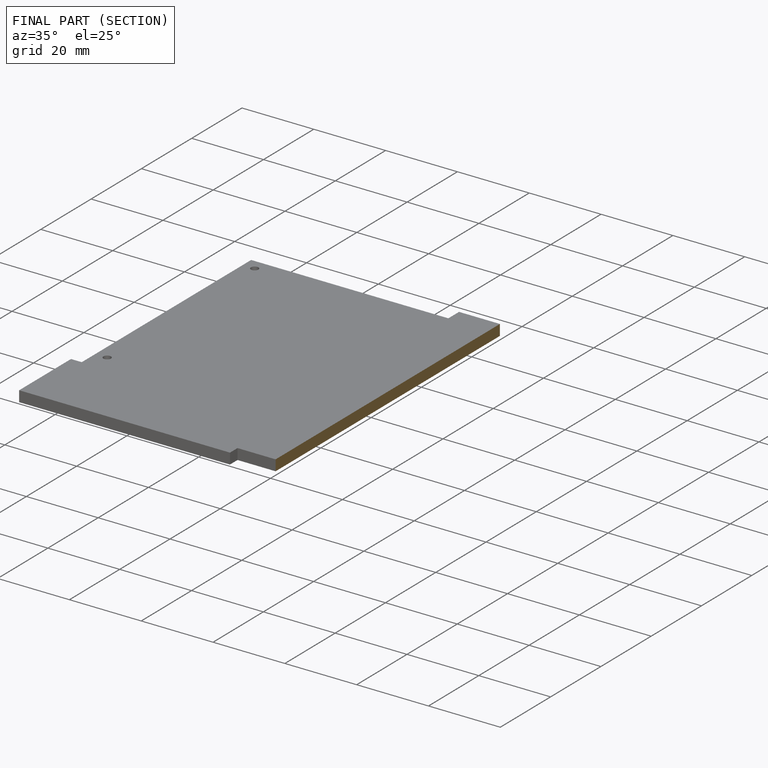
[diagram: finished part — half-section view (interior)]
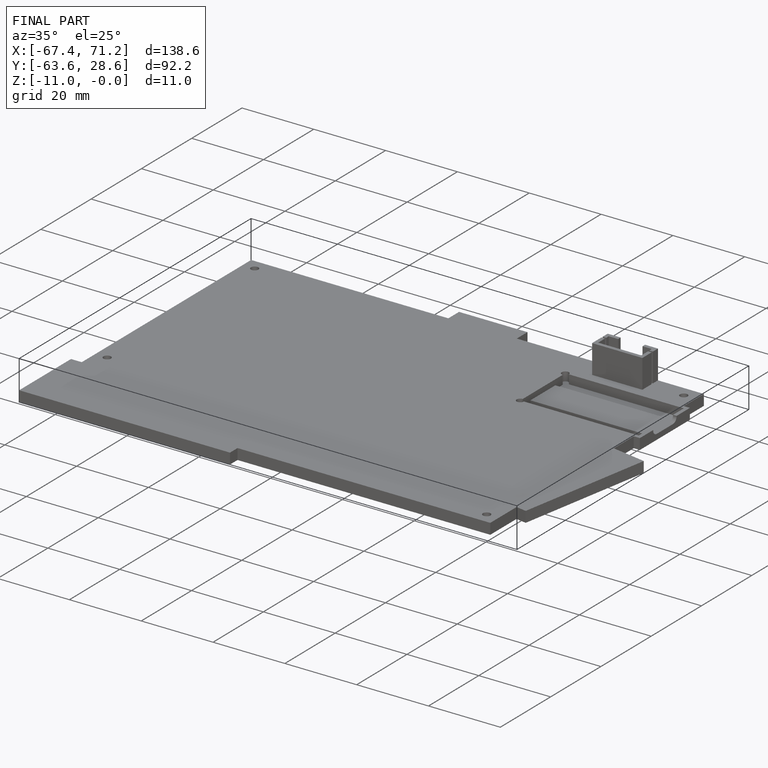
[diagram: finished part — iso view with bounding-box wireframe]
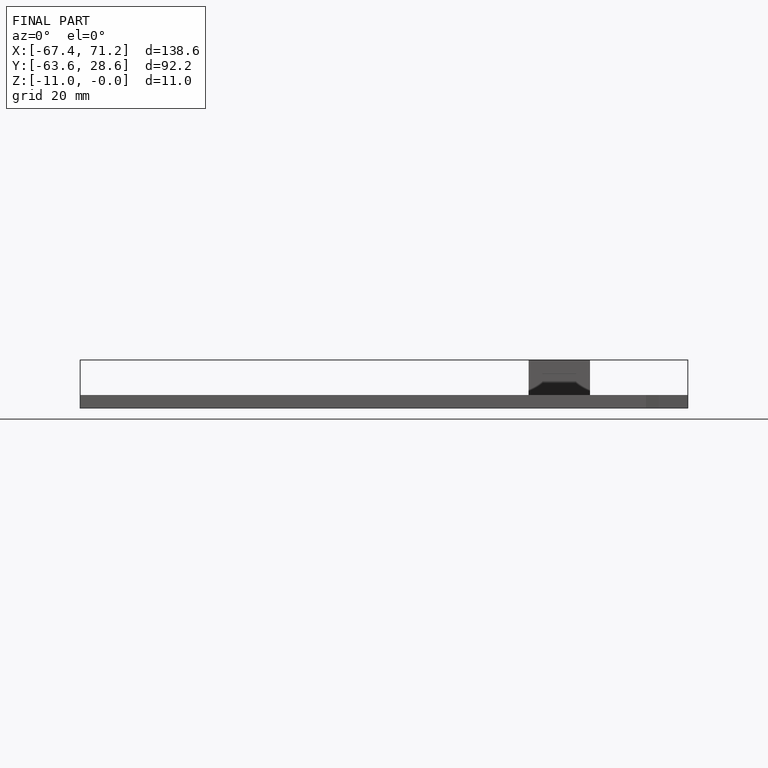
[diagram: finished part — front view with bounding-box wireframe]
